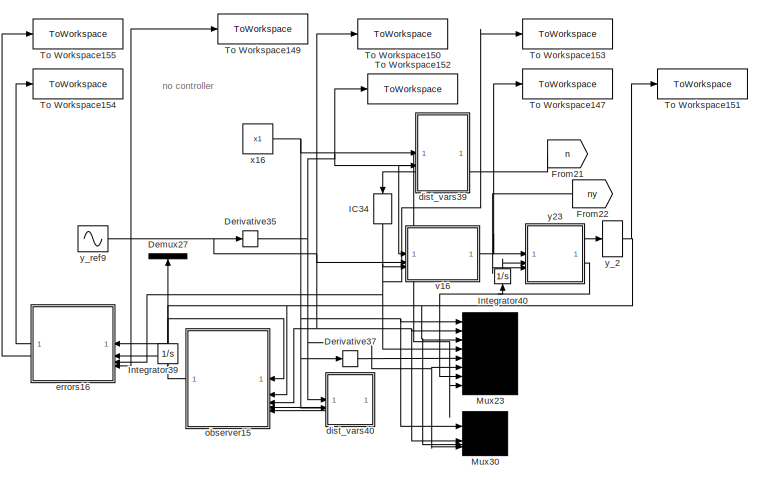
[diagram: root canvas - part 1/13, top center region]
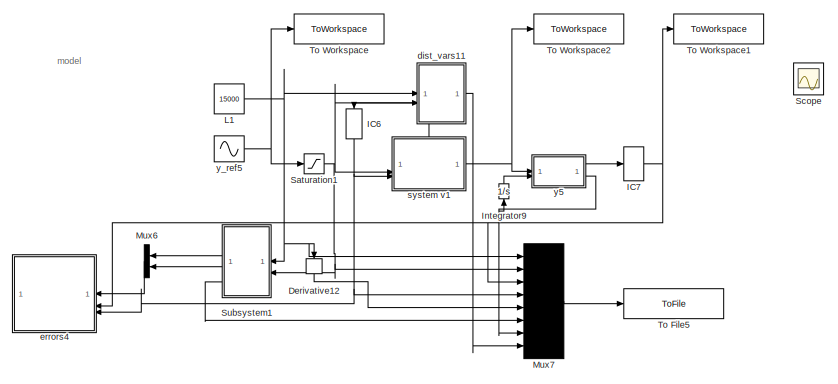
[diagram: root canvas - part 2/13, top left region]
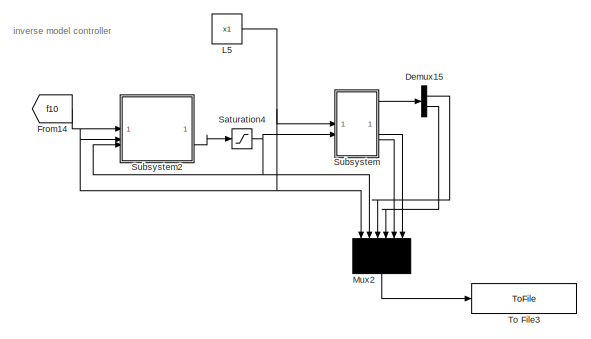
[diagram: root canvas - part 3/13, top center region]
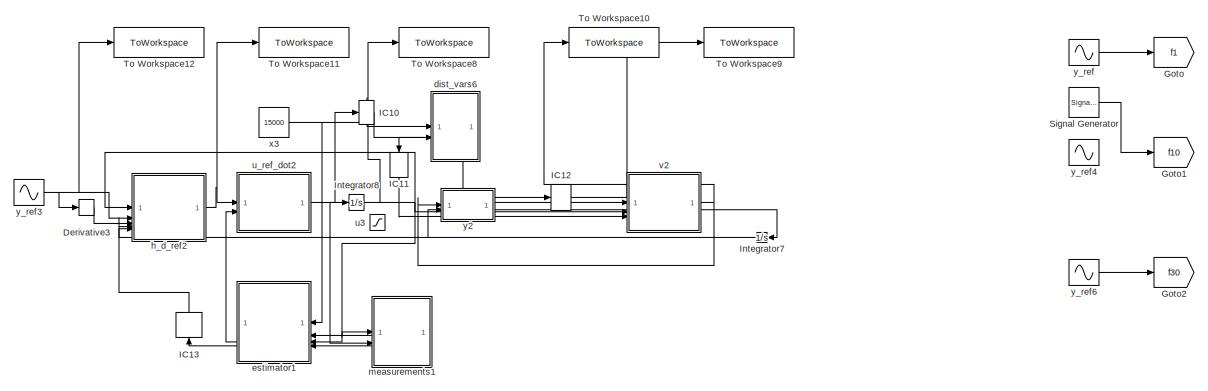
[diagram: root canvas - part 4/13, top left region]
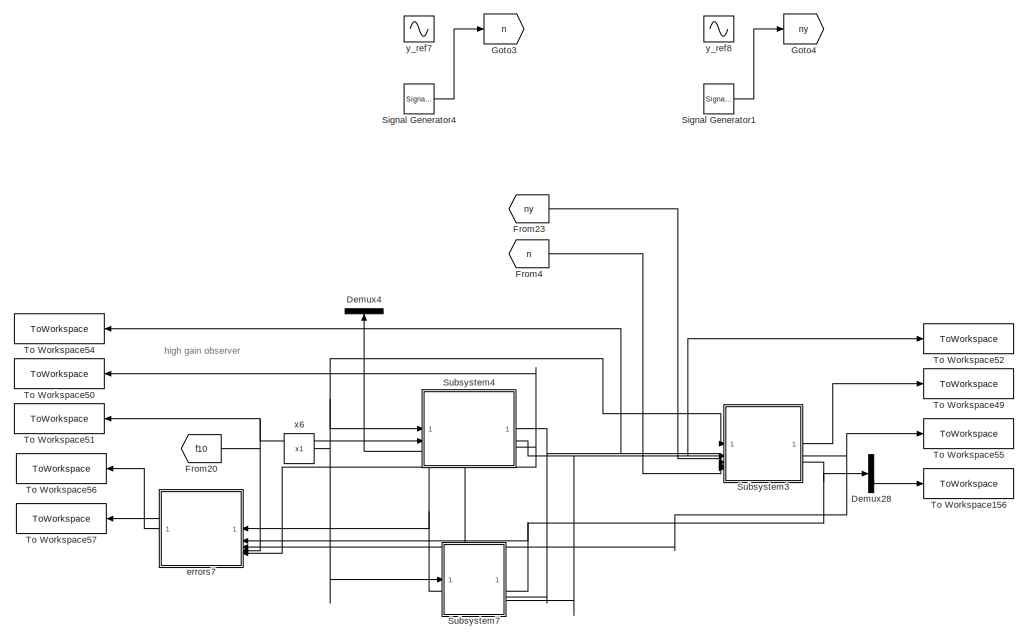
[diagram: root canvas - part 5/13, central region]
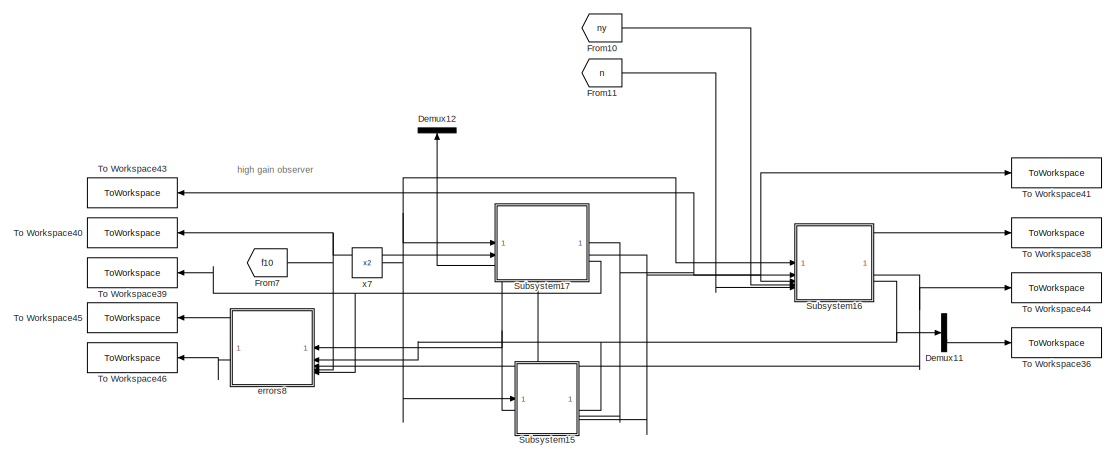
[diagram: root canvas - part 6/13, middle right region]
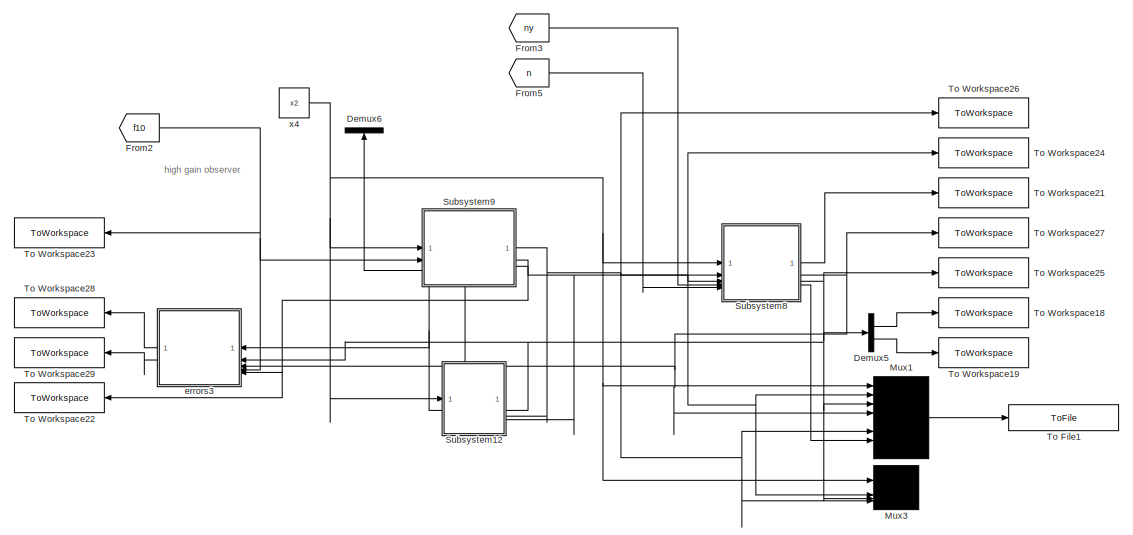
[diagram: root canvas - part 7/13, middle right region]
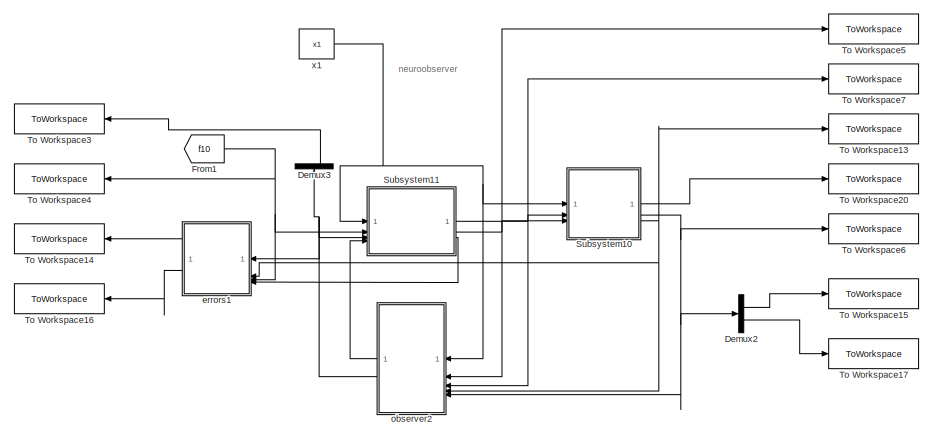
[diagram: root canvas - part 8/13, middle right region]
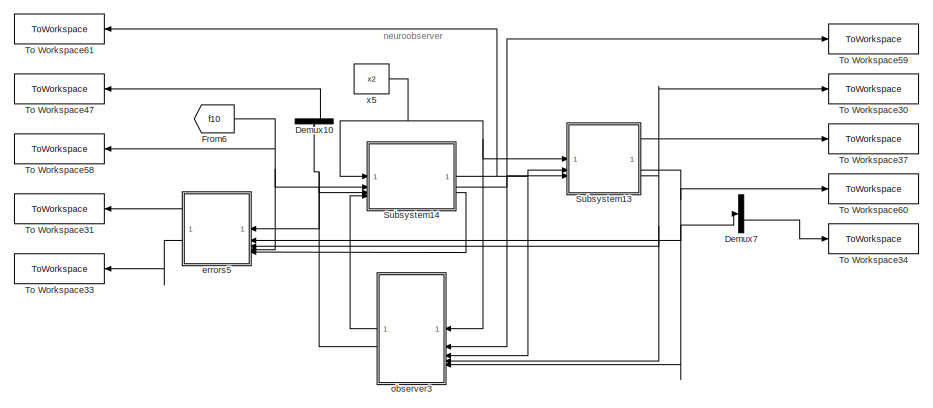
[diagram: root canvas - part 9/13, middle right region]
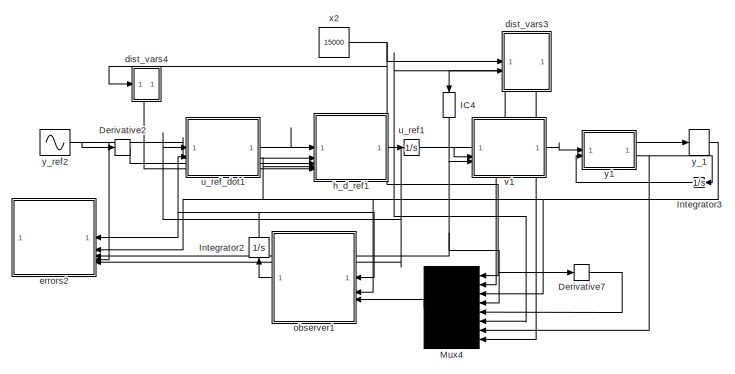
[diagram: root canvas - part 10/13, middle left region]
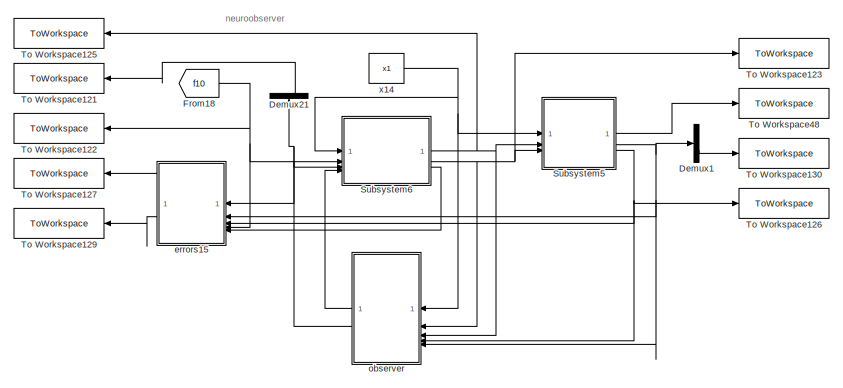
[diagram: root canvas - part 11/13, central region]
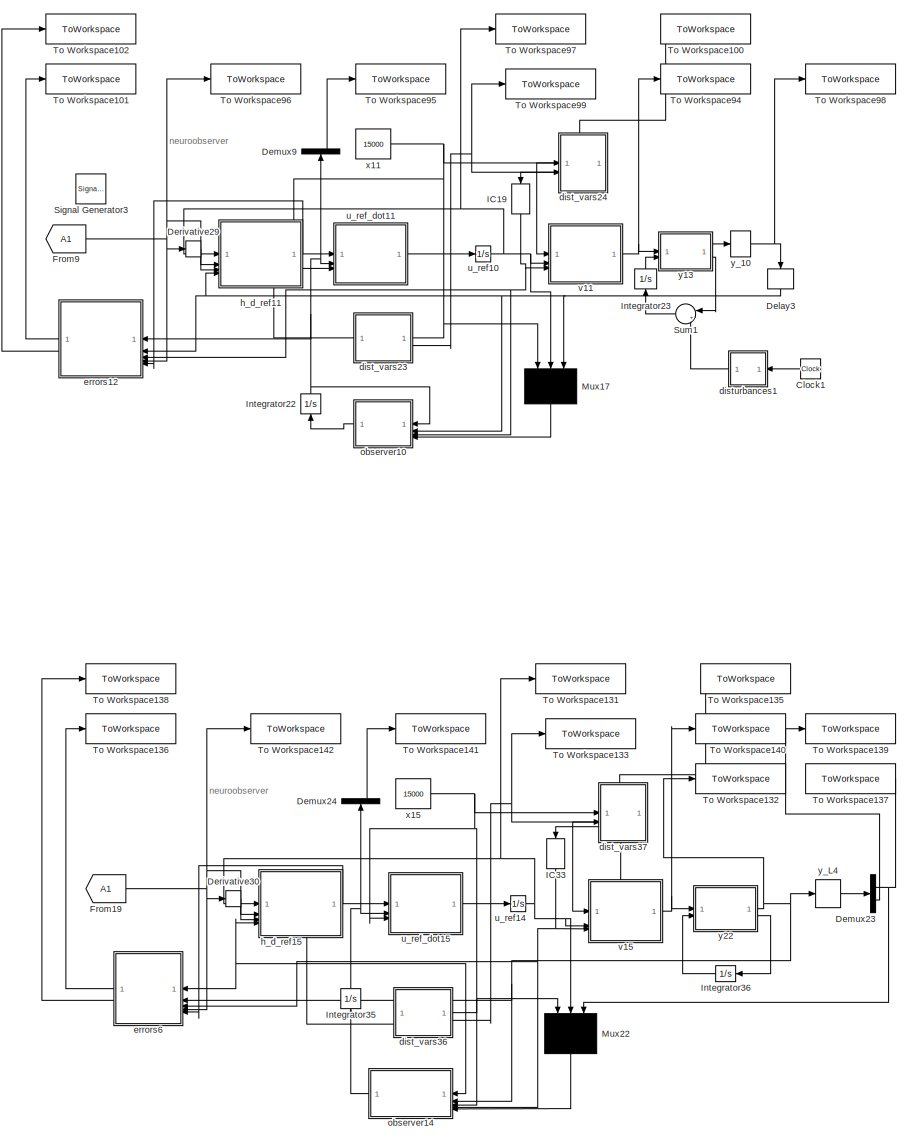
[diagram: root canvas - part 12/13, bottom right region]
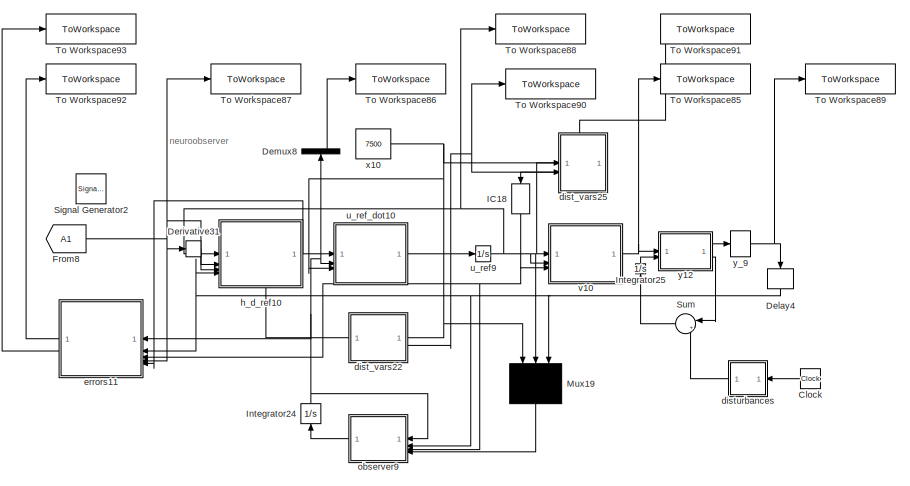
[diagram: root canvas - part 13/13, bottom center region]
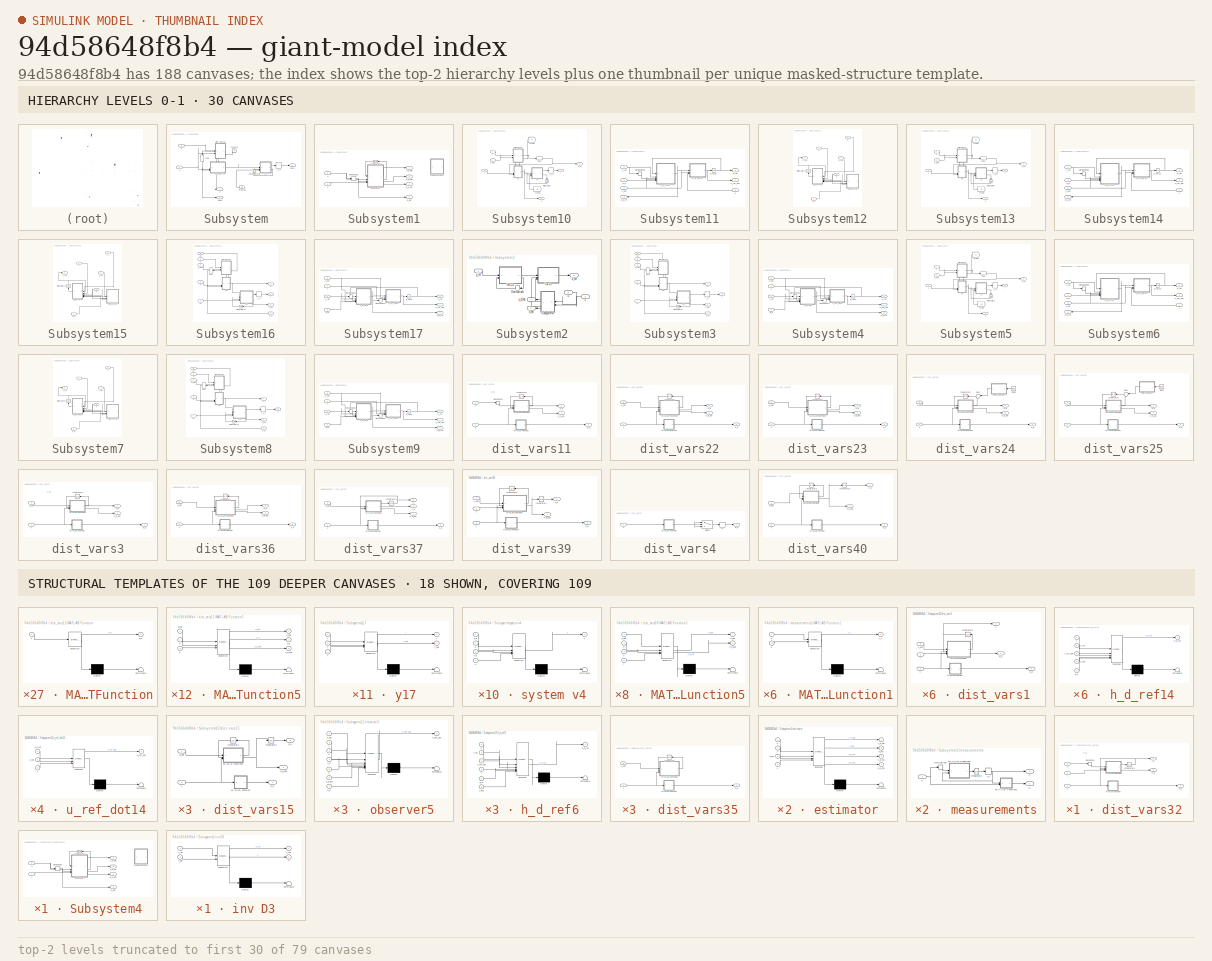
[diagram: thumbnail index - top-2 hierarchy levels (79 canvases (first 30 of 79 shown)) + 18 structural-template representatives of the remaining 109 canvases]
MODEL slx_94d58648f8b4
KIND model
CONFIG AbsTol = auto
CONFIG EnableMultiTasking = off
CONFIG FixedStep = 0.0001
CONFIG MaxStep = auto
CONFIG MinStep = auto
CONFIG RelTol = 1e-3
CONFIG SampleTimeConstraint = Unconstrained
CONFIG SolverName = ode8
CONFIG StartTime = 0.0
CONFIG StopTime = 0.25
BLOCK [Clock] Clock
  Commented = on
  NameLocation = top
BLOCK [Clock] Clock1
  Commented = on
  NameLocation = top
BLOCK [Delay] Delay3
  Commented = on
  DelayLength = 1
  InitialCondition = 0
  InputPortMap = u0
  NameLocation = left
BLOCK [Delay] Delay4
  Commented = on
  DelayLength = 1
  InitialCondition = 0
  InputPortMap = u0
  NameLocation = left
BLOCK [Demux] Demux1
  Outputs = 2
BLOCK [Demux] Demux10
  NameLocation = right
  Outputs = 2
BLOCK [Demux] Demux11
  Outputs = 2
BLOCK [Demux] Demux12
  NameLocation = right
  Outputs = 2
BLOCK [Demux] Demux15
  Outputs = 2
BLOCK [Demux] Demux2
  Commented = on
  Outputs = 2
BLOCK [Demux] Demux21
  NameLocation = right
  Outputs = 2
BLOCK [Demux] Demux23
  Commented = on
  Outputs = 2
BLOCK [Demux] Demux24
  Commented = on
  NameLocation = right
  Outputs = 2
BLOCK [Demux] Demux27
  Commented = on
  NameLocation = right
  Outputs = 2
BLOCK [Demux] Demux28
  Outputs = 2
BLOCK [Demux] Demux3
  Commented = on
  NameLocation = right
  Outputs = 2
BLOCK [Demux] Demux4
  NameLocation = right
  Outputs = 2
BLOCK [Demux] Demux5
  Commented = on
  Outputs = 2
BLOCK [Demux] Demux6
  Commented = on
  NameLocation = right
  Outputs = 2
BLOCK [Demux] Demux7
  Outputs = 2
BLOCK [Demux] Demux8
  Commented = on
  NameLocation = right
  Outputs = 2
BLOCK [Demux] Demux9
  Commented = on
  NameLocation = right
  Outputs = 2
BLOCK [Derivative] Derivative12
  Commented = on
  NameLocation = left
BLOCK [Derivative] Derivative2
  Commented = on
BLOCK [Derivative] Derivative29
  Commented = on
BLOCK [Derivative] Derivative3
  Commented = on
BLOCK [Derivative] Derivative30
  Commented = on
BLOCK [Derivative] Derivative31
  Commented = on
BLOCK [Derivative] Derivative35
  Commented = on
BLOCK [Derivative] Derivative37
  Commented = on
BLOCK [Derivative] Derivative7
  Commented = on
BLOCK [From] From1
  Commented = on
  GotoTag = f10
BLOCK [From] From10
  GotoTag = ny
BLOCK [From] From11
  GotoTag = n
BLOCK [From] From14
  GotoTag = f10
BLOCK [From] From18
  GotoTag = f10
BLOCK [From] From19
  Commented = on
  GotoTag = A1
BLOCK [From] From2
  Commented = on
  GotoTag = f10
BLOCK [From] From20
  GotoTag = f10
BLOCK [From] From21
  Commented = on
  GotoTag = n
  NameLocation = top
BLOCK [From] From22
  Commented = on
  GotoTag = ny
  NameLocation = top
BLOCK [From] From23
  GotoTag = ny
BLOCK [From] From3
  Commented = on
  GotoTag = ny
BLOCK [From] From4
  GotoTag = n
BLOCK [From] From5
  Commented = on
  GotoTag = n
BLOCK [From] From6
  GotoTag = f10
BLOCK [From] From7
  GotoTag = f10
BLOCK [From] From8
  Commented = on
  GotoTag = A1
BLOCK [From] From9
  Commented = on
  GotoTag = A1
BLOCK [Goto] Goto
  GotoTag = f1
BLOCK [Goto] Goto1
  GotoTag = f10
BLOCK [Goto] Goto2
  GotoTag = f30
BLOCK [Goto] Goto3
  GotoTag = n
BLOCK [Goto] Goto4
  GotoTag = ny
BLOCK [InitialCondition] IC10
  Commented = on
  Value = 0
BLOCK [InitialCondition] IC11
  Commented = on
  NameLocation = left
  Value = h
BLOCK [InitialCondition] IC12
  Commented = on
  Value = Y
BLOCK [InitialCondition] IC13
  Commented = on
  NameLocation = right
  Value = d_p
BLOCK [InitialCondition] IC18
  Commented = on
  NameLocation = left
  Value = h_i
BLOCK [InitialCondition] IC19
  Commented = on
  NameLocation = left
  Value = h_i
BLOCK [InitialCondition] IC33
  Commented = on
  NameLocation = left
  Value = h_i
BLOCK [InitialCondition] IC34
  Commented = on
  NameLocation = left
  Value = h_i
BLOCK [InitialCondition] IC4
  Commented = on
  NameLocation = left
  Value = h
BLOCK [InitialCondition] IC6
  Commented = on
  NameLocation = left
  Value = h_i
BLOCK [InitialCondition] IC7
  Commented = on
  Value = y_i
BLOCK [Integrator] Integrator2
  Commented = on
  InitialCondition = [0;0]
  NameLocation = right
BLOCK [Integrator] Integrator22
  Commented = on
  InitialCondition = [0;0]
  NameLocation = right
BLOCK [Integrator] Integrator23
  Commented = on
  NameLocation = right
BLOCK [Integrator] Integrator24
  Commented = on
  InitialCondition = [0;0]
  NameLocation = right
BLOCK [Integrator] Integrator25
  Commented = on
  NameLocation = right
BLOCK [Integrator] Integrator3
  Commented = on
  NameLocation = top
BLOCK [Integrator] Integrator35
  Commented = on
  InitialCondition = [0;0]
  NameLocation = right
BLOCK [Integrator] Integrator36
  Commented = on
  NameLocation = top
BLOCK [Integrator] Integrator39
  Commented = on
  InitialCondition = [0;0]
  NameLocation = right
BLOCK [Integrator] Integrator40
  Commented = on
  NameLocation = right
BLOCK [Integrator] Integrator7
  Commented = on
  NameLocation = top
BLOCK [Integrator] Integrator8
  Commented = on
BLOCK [Integrator] Integrator9
  Commented = on
  NameLocation = right
BLOCK [Constant] L1
  Commented = on
  Value = 15000
BLOCK [Constant] L5
  Value = x1
BLOCK [Mux] Mux1
  Commented = on
  DisplayOption = signals
  Inputs = 8
BLOCK [Mux] Mux17
  Commented = on
  DisplayOption = signals
  Inputs = 3
  NameLocation = left
BLOCK [Mux] Mux19
  Commented = on
  DisplayOption = signals
  Inputs = 3
  NameLocation = left
BLOCK [Mux] Mux2
  Inputs = 6
  NameLocation = left
BLOCK [Mux] Mux22
  Commented = on
  DisplayOption = signals
  Inputs = 3
  NameLocation = left
BLOCK [Mux] Mux23
  Commented = on
  DisplayOption = signals
  Inputs = 8
BLOCK [Mux] Mux3
  Commented = on
  DisplayOption = signals
BLOCK [Mux] Mux30
  Commented = on
  DisplayOption = signals
BLOCK [Mux] Mux4
  Commented = on
  DisplayOption = signals
  Inputs = 8
  NameLocation = top
BLOCK [Mux] Mux6
  Commented = on
  DisplayOption = bar
  Inputs = 2
  NameLocation = top
BLOCK [Mux] Mux7
  Commented = on
  DisplayOption = signals
  Inputs = 8
BLOCK [Saturate] Saturation1
  Commented = on
  LowerLimit = -2000
  UpperLimit = 2000
BLOCK [Saturate] Saturation4
  LowerLimit = -20000
  UpperLimit = 20000
BLOCK [Scope] Scope
  Floating = off
  IOType = viewer
  NumInputPorts = 1
  ScopeSpecificationString = Simulink.scopes.TimeScopeBlockCfg('CurrentConfiguration', extmgr.ConfigurationSet(extmgr.Configuration('Core','General UI',true),extmgr.Configuration('Core','Source UI',true),extmgr.Configuration('Sources','WiredSimulink',true),extmgr.Configuration('Visuals','Time Domain',true,'SerializedDisplays',{struct('MinYLimReal','-2.13292','MaxYLimReal','1.57032','YLabelReal','','MinYLimMag','0.00000','MaxY...<+1320ch>
BLOCK [SignalGenerator] Signal Generator
  Amplitude = amp
  Frequency = angvel*10
  Units = rad/sec
  WaveForm = sawtooth
BLOCK [SignalGenerator] Signal Generator1
  Amplitude = 1*(1e-6)
  Frequency = angvel*35
  Units = rad/sec
BLOCK [SignalGenerator] Signal Generator2
  Amplitude = amp
  Commented = on
  Frequency = angvel
  Units = rad/sec
BLOCK [SignalGenerator] Signal Generator3
  Amplitude = amp
  Commented = on
  Frequency = angvel
  Units = rad/sec
BLOCK [SignalGenerator] Signal Generator4
  Amplitude = 1*(1e-6)
  Frequency = angvel*20
  Units = rad/sec
  WaveForm = random
BLOCK [SubSystem] Subsystem
BLOCK [From] Subsystem/From24
  GotoTag = n
  NameLocation = top
BLOCK [From] Subsystem/From25
  GotoTag = ny
  NameLocation = top
BLOCK [InitialCondition] Subsystem/IC25
  NameLocation = left
  Value = h_i
BLOCK [Integrator] Subsystem/Integrator31
  NameLocation = right
BLOCK [Outport] Subsystem/Out1
BLOCK [Outport] Subsystem/Out3
  Port = 2
BLOCK [SubSystem] Subsystem/dist_vars32
  PortSchema = {"entries":[{"content":{"sides":[{"content":{"connectorIds":["In1","In2","Out1","Out2","Out3"]},"type":"ConnectorPlacement.EquallySpacedRectSide","uuid":"c6804a03-85ed-4e19-a8b2-23b3b91cc999"},{"content":{"connectorIds":["In3"],"side":"RIGHT"},"type":"ConnectorPlacement.EquallySpacedRectSide","uuid":"3893e005-dabd-44b9-aa2f-690b9b6a2b6d"},{"content":{"connectorIds":[],"side":"TOP"},"type":"Connect...<+266ch>  <repeated x3 — deduplicated; at blocks: dist_vars32, dist_vars14>
BLOCK [Derivative] Subsystem/dist_vars32/Derivative1
BLOCK [Integrator] Subsystem/dist_vars32/Integrator1
BLOCK [SubSystem] Subsystem/dist_vars32/MATLAB Function
  ErrorFcn = Stateflow.Translate.translate
  PermitHierarchicalResolution = ExplicitOnly
  SFBlockType = MATLAB Function
  TreatAsAtomicUnit = on
BLOCK [Demux] Subsystem/dist_vars32/MATLAB Function/ Demux 
  Outputs = 1
BLOCK [S-Function] Subsystem/dist_vars32/MATLAB Function/ SFunction 
  EnableBusSupport = on
  FunctionName = sf_sfun
  Parameters = L,d_p
  PortCounts = [1 2]
  SFcnIsStateOwnerBlock = off
  SFunctionDeploymentMode = off
  Tag = Stateflow S-Function 172
BLOCK [Terminator] Subsystem/dist_vars32/MATLAB Function/ Terminator 
BLOCK [Outport] Subsystem/dist_vars32/MATLAB Function/d_d
BLOCK [Inport] Subsystem/dist_vars32/MATLAB Function/x
BLOCK [SubSystem] Subsystem/dist_vars32/MATLAB Function5
  ErrorFcn = Stateflow.Translate.translate
  PermitHierarchicalResolution = ExplicitOnly
  SFBlockType = MATLAB Function
  TreatAsAtomicUnit = on
BLOCK [Demux] Subsystem/dist_vars32/MATLAB Function5/ Demux 
  Outputs = 1
BLOCK [S-Function] Subsystem/dist_vars32/MATLAB Function5/ SFunction 
  EnableBusSupport = on
  FunctionName = sf_sfun
  Parameters = L,alpha,beta,gamma
  PortCounts = [4 3]
  SFcnIsStateOwnerBlock = off
  SFunctionDeploymentMode = off
  Tag = Stateflow S-Function 173
BLOCK [Terminator] Subsystem/dist_vars32/MATLAB Function5/ Terminator 
BLOCK [Inport] Subsystem/dist_vars32/MATLAB Function5/h
  Port = 2
BLOCK [Outport] Subsystem/dist_vars32/MATLAB Function5/h_d
  Port = 2
BLOCK [Outport] Subsystem/dist_vars32/MATLAB Function5/h_dot
BLOCK [Inport] Subsystem/dist_vars32/MATLAB Function5/t
  Port = 4
BLOCK [Inport] Subsystem/dist_vars32/MATLAB Function5/u_dot
BLOCK [Inport] Subsystem/dist_vars32/MATLAB Function5/x
  Port = 3
BLOCK [Outport] Subsystem/dist_vars32/d_d
  Port = 3
BLOCK [Outport] Subsystem/dist_vars32/h
  Port = 2
BLOCK [Outport] Subsystem/dist_vars32/h_d
BLOCK [Inport] Subsystem/dist_vars32/t
  NameLocation = top
  Port = 3
BLOCK [Inport] Subsystem/dist_vars32/u
  NameLocation = top
  Port = 2
BLOCK [Inport] Subsystem/dist_vars32/x
  NameLocation = top
BLOCK [Outport] Subsystem/h
  Port = 3
BLOCK [SubSystem] Subsystem/system v4
  ErrorFcn = Stateflow.Translate.translate
  PermitHierarchicalResolution = ExplicitOnly
  SFBlockType = MATLAB Function
  TreatAsAtomicUnit = on
BLOCK [Demux] Subsystem/system v4/ Demux 
  Outputs = 1
BLOCK [S-Function] Subsystem/system v4/ SFunction 
  EnableBusSupport = on
  FunctionName = sf_sfun
  Parameters = d_p
  PortCounts = [4 2]
  SFcnIsStateOwnerBlock = off
  SFunctionDeploymentMode = off
  Tag = Stateflow S-Function 181
BLOCK [Terminator] Subsystem/system v4/ Terminator 
BLOCK [Inport] Subsystem/system v4/d_d
BLOCK [Inport] Subsystem/system v4/h
  Port = 4
BLOCK [Inport] Subsystem/system v4/h_d
  Port = 3
BLOCK [Inport] Subsystem/system v4/u
  Port = 2
BLOCK [Outport] Subsystem/system v4/v
BLOCK [Inport] Subsystem/u
  Port = 2
BLOCK [Inport] Subsystem/x
BLOCK [SubSystem] Subsystem/y17
  ErrorFcn = Stateflow.Translate.translate
  PermitHierarchicalResolution = ExplicitOnly
  SFBlockType = MATLAB Function
  TreatAsAtomicUnit = on
BLOCK [Demux] Subsystem/y17/ Demux 
  Outputs = 1
BLOCK [S-Function] Subsystem/y17/ SFunction 
  EnableBusSupport = on
  FunctionName = sf_sfun
  Parameters = A,B,C
  PortCounts = [3 3]
  SFcnIsStateOwnerBlock = off
  SFunctionDeploymentMode = off
  Tag = Stateflow S-Function 182
BLOCK [Terminator] Subsystem/y17/ Terminator 
BLOCK [Inport] Subsystem/y17/Y
  Port = 2
BLOCK [Outport] Subsystem/y17/Y_dot
  Port = 2
BLOCK [Inport] Subsystem/y17/t
  Port = 3
BLOCK [Inport] Subsystem/y17/v
BLOCK [Outport] Subsystem/y17/y
BLOCK [InitialCondition] Subsystem/y_L1
  Value = [y_i;0]
BLOCK [SubSystem] Subsystem1
  Commented = on
  NameLocation = top
BLOCK [Derivative] Subsystem1/Derivative1
BLOCK [Integrator] Subsystem1/Integrator2
  NameLocation = top
BLOCK [Outport] Subsystem1/d_d_hat
BLOCK [SubSystem] Subsystem1/estimator
  ErrorFcn = Stateflow.Translate.translate
  PermitHierarchicalResolution = ExplicitOnly
  SFBlockType = MATLAB Function
  TreatAsAtomicUnit = on
BLOCK [Demux] Subsystem1/estimator/ Demux 
  Outputs = 1
BLOCK [S-Function] Subsystem1/estimator/ SFunction 
  EnableBusSupport = on
  FunctionName = sf_sfun
  Parameters = L,alpha,beta,d_p,gamma
  PortCounts = [4 5]
  SFcnIsStateOwnerBlock = off
  SFunctionDeploymentMode = off
  Tag = Stateflow S-Function 49
BLOCK [Terminator] Subsystem1/estimator/ Terminator 
BLOCK [Outport] Subsystem1/estimator/d_d_hat
  Port = 4
BLOCK [Inport] Subsystem1/estimator/h
BLOCK [Outport] Subsystem1/estimator/h_d_hat
  Port = 3
BLOCK [Outport] Subsystem1/estimator/h_dot
  Port = 2
BLOCK [Inport] Subsystem1/estimator/u
  Port = 2
BLOCK [Inport] Subsystem1/estimator/u_dot
  Port = 3
BLOCK [Inport] Subsystem1/estimator/x
  Port = 4
BLOCK [Outport] Subsystem1/estimator/y_d_hat
BLOCK [Outport] Subsystem1/h_d_hat
  Port = 3
BLOCK [SubSystem] Subsystem1/measurements
  NameLocation = top
  PortSchema = {"entries":[{"content":{"sides":[{"content":{"connectorIds":[]},"type":"ConnectorPlacement.EquallySpacedRectSide","uuid":"c6804a03-85ed-4e19-a8b2-23b3b91cc999"},{"content":{"connectorIds":["Out1","In1","Out2"],"side":"RIGHT"},"type":"ConnectorPlacement.EquallySpacedRectSide","uuid":"3893e005-dabd-44b9-aa2f-690b9b6a2b6d"},{"content":{"connectorIds":[],"side":"TOP"},"type":"ConnectorPlacement.Equall...<+248ch>
BLOCK [Derivative] Subsystem1/measurements/Derivative2
BLOCK [InitialCondition] Subsystem1/measurements/IC
  Value = 0
BLOCK [Integrator] Subsystem1/measurements/Integrator1
BLOCK [SubSystem] Subsystem1/measurements/MATLAB Function1
  ErrorFcn = Stateflow.Translate.translate
  PermitHierarchicalResolution = ExplicitOnly
  SFBlockType = MATLAB Function
  TreatAsAtomicUnit = on
BLOCK [Demux] Subsystem1/measurements/MATLAB Function1/ Demux 
  Outputs = 1
BLOCK [S-Function] Subsystem1/measurements/MATLAB Function1/ SFunction 
  EnableBusSupport = on
  FunctionName = sf_sfun
  Parameters = d_p
  PortCounts = [2 2]
  SFcnIsStateOwnerBlock = off
  SFunctionDeploymentMode = off
  Tag = Stateflow S-Function 54
BLOCK [Terminator] Subsystem1/measurements/MATLAB Function1/ Terminator 
BLOCK [Inport] Subsystem1/measurements/MATLAB Function1/h
BLOCK [Inport] Subsystem1/measurements/MATLAB Function1/u
  Port = 2
BLOCK [Outport] Subsystem1/measurements/MATLAB Function1/y_L
BLOCK [SubSystem] Subsystem1/measurements/MATLAB Function5
  ErrorFcn = Stateflow.Translate.translate
  PermitHierarchicalResolution = ExplicitOnly
  SFBlockType = MATLAB Function
  TreatAsAtomicUnit = on
BLOCK [Demux] Subsystem1/measurements/MATLAB Function5/ Demux 
  Outputs = 1
BLOCK [S-Function] Subsystem1/measurements/MATLAB Function5/ SFunction 
  EnableBusSupport = on
  FunctionName = sf_sfun
  Parameters = alpha,beta,gamma
  PortCounts = [2 2]
  SFcnIsStateOwnerBlock = off
  SFunctionDeploymentMode = off
  Tag = Stateflow S-Function 55
BLOCK [Terminator] Subsystem1/measurements/MATLAB Function5/ Terminator 
BLOCK [Inport] Subsystem1/measurements/MATLAB Function5/h
  Port = 2
BLOCK [Outport] Subsystem1/measurements/MATLAB Function5/h_dot
BLOCK [Inport] Subsystem1/measurements/MATLAB Function5/u_dot
BLOCK [Outport] Subsystem1/measurements/h
  Port = 2
BLOCK [Inport] Subsystem1/measurements/u
  NameLocation = top
BLOCK [Outport] Subsystem1/measurements/y_L
BLOCK [Inport] Subsystem1/u
  NameLocation = top
  Port = 2
BLOCK [Outport] Subsystem1/u_dot
  NameLocation = top
  Port = 4
BLOCK [Inport] Subsystem1/x
BLOCK [Outport] Subsystem1/y_d_hat
  NameLocation = top
  Port = 2
BLOCK [SubSystem] Subsystem10
  Commented = on
BLOCK [From] Subsystem10/From1
  GotoTag = ny
  NameLocation = top
BLOCK [From] Subsystem10/From2
  GotoTag = n
  NameLocation = top
BLOCK [InitialCondition] Subsystem10/IC32
  Value = h_i
BLOCK [Integrator] Subsystem10/Integrator1
  NameLocation = left
BLOCK [SubSystem] Subsystem10/dist_vars1
  PortSchema = {"entries":[{"content":{"sides":[{"content":{"connectorIds":["In1","In2","Out2","Out3"]},"type":"ConnectorPlacement.EquallySpacedRectSide","uuid":"c6804a03-85ed-4e19-a8b2-23b3b91cc999"},{"content":{"connectorIds":["In3","Out1"],"side":"RIGHT"},"type":"ConnectorPlacement.EquallySpacedRectSide","uuid":"3893e005-dabd-44b9-aa2f-690b9b6a2b6d"},{"content":{"connectorIds":[],"side":"TOP"},"type":"Connect...<+266ch>  <repeated x3 — deduplicated; at blocks: dist_vars1>
BLOCK [Integrator] Subsystem10/dist_vars1/Integrator2
  NameLocation = top
BLOCK [SubSystem] Subsystem10/dist_vars1/MATLAB Function
  ErrorFcn = Stateflow.Translate.translate
  PermitHierarchicalResolution = ExplicitOnly
  SFBlockType = MATLAB Function
  TreatAsAtomicUnit = on
BLOCK [Demux] Subsystem10/dist_vars1/MATLAB Function/ Demux 
  Outputs = 1
BLOCK [S-Function] Subsystem10/dist_vars1/MATLAB Function/ SFunction 
  EnableBusSupport = on
  FunctionName = sf_sfun
  Parameters = L,d_p
  PortCounts = [1 2]
  SFcnIsStateOwnerBlock = off
  SFunctionDeploymentMode = off
  Tag = Stateflow S-Function 5
BLOCK [Terminator] Subsystem10/dist_vars1/MATLAB Function/ Terminator 
BLOCK [Outport] Subsystem10/dist_vars1/MATLAB Function/d_d
BLOCK [Inport] Subsystem10/dist_vars1/MATLAB Function/x
BLOCK [SubSystem] Subsystem10/dist_vars1/MATLAB Function5
  ErrorFcn = Stateflow.Translate.translate
  PermitHierarchicalResolution = ExplicitOnly
  SFBlockType = MATLAB Function
  TreatAsAtomicUnit = on
BLOCK [Demux] Subsystem10/dist_vars1/MATLAB Function5/ Demux 
  Outputs = 1
BLOCK [S-Function] Subsystem10/dist_vars1/MATLAB Function5/ SFunction 
  EnableBusSupport = on
  FunctionName = sf_sfun
  Parameters = L,alpha,beta,gamma
  PortCounts = [4 3]
  SFcnIsStateOwnerBlock = off
  SFunctionDeploymentMode = off
  Tag = Stateflow S-Function 6
BLOCK [Terminator] Subsystem10/dist_vars1/MATLAB Function5/ Terminator 
BLOCK [Inport] Subsystem10/dist_vars1/MATLAB Function5/h
  Port = 2
BLOCK [Outport] Subsystem10/dist_vars1/MATLAB Function5/h_d
  Port = 2
BLOCK [Outport] Subsystem10/dist_vars1/MATLAB Function5/h_dot
BLOCK [Inport] Subsystem10/dist_vars1/MATLAB Function5/t
  Port = 4
BLOCK [Inport] Subsystem10/dist_vars1/MATLAB Function5/u_dot
BLOCK [Inport] Subsystem10/dist_vars1/MATLAB Function5/x
  Port = 3
BLOCK [Outport] Subsystem10/dist_vars1/d_d
  Port = 3
BLOCK [Outport] Subsystem10/dist_vars1/h
  Port = 2
BLOCK [Outport] Subsystem10/dist_vars1/h_d
BLOCK [Inport] Subsystem10/dist_vars1/t
  NameLocation = top
  Port = 3
BLOCK [Inport] Subsystem10/dist_vars1/u_dot
  NameLocation = top
  Port = 2
BLOCK [Inport] Subsystem10/dist_vars1/x
  NameLocation = top
BLOCK [Outport] Subsystem10/h_d
  NameLocation = top
  Port = 3
BLOCK [Inport] Subsystem10/u
  Port = 3
BLOCK [Inport] Subsystem10/u_dot
  Port = 2
BLOCK [Outport] Subsystem10/v
BLOCK [SubSystem] Subsystem10/v3
  ErrorFcn = Stateflow.Translate.translate
  PermitHierarchicalResolution = ExplicitOnly
  SFBlockType = MATLAB Function
  TreatAsAtomicUnit = on
BLOCK [Demux] Subsystem10/v3/ Demux 
  Outputs = 1
BLOCK [S-Function] Subsystem10/v3/ SFunction 
  EnableBusSupport = on
  FunctionName = sf_sfun
  Parameters = d_p
  PortCounts = [4 2]
  SFcnIsStateOwnerBlock = off
  SFunctionDeploymentMode = off
  Tag = Stateflow S-Function 7
BLOCK [Terminator] Subsystem10/v3/ Terminator 
BLOCK [Inport] Subsystem10/v3/d_d
BLOCK [Inport] Subsystem10/v3/h
  Port = 4
BLOCK [Inport] Subsystem10/v3/h_d
  Port = 3
BLOCK [Inport] Subsystem10/v3/u
  Port = 2
BLOCK [Outport] Subsystem10/v3/v
BLOCK [Inport] Subsystem10/x
BLOCK [Outport] Subsystem10/y
  Port = 2
BLOCK [SubSystem] Subsystem10/y3
  ErrorFcn = Stateflow.Translate.translate
  PermitHierarchicalResolution = ExplicitOnly
  SFBlockType = MATLAB Function
  TreatAsAtomicUnit = on
BLOCK [Demux] Subsystem10/y3/ Demux 
  Outputs = 1
BLOCK [S-Function] Subsystem10/y3/ SFunction 
  EnableBusSupport = on
  FunctionName = sf_sfun
  Parameters = A,B,C
  PortCounts = [3 3]
  SFcnIsStateOwnerBlock = off
  SFunctionDeploymentMode = off
  Tag = Stateflow S-Function 8
BLOCK [Terminator] Subsystem10/y3/ Terminator 
BLOCK [Inport] Subsystem10/y3/Y
  Port = 2
BLOCK [Outport] Subsystem10/y3/Y_dot
  Port = 2
BLOCK [Inport] Subsystem10/y3/t
  Port = 3
BLOCK [Inport] Subsystem10/y3/v
BLOCK [Outport] Subsystem10/y3/y
BLOCK [InitialCondition] Subsystem10/y_L2
  Value = [y_i;0]
BLOCK [SubSystem] Subsystem11
  Commented = on
BLOCK [Derivative] Subsystem11/Derivative32
BLOCK [Inport] Subsystem11/d_d
  NameLocation = top
  Port = 4
BLOCK [Outport] Subsystem11/h_d_ref
  Port = 3
BLOCK [SubSystem] Subsystem11/h_d_ref14
  ErrorFcn = Stateflow.Translate.translate
  PermitHierarchicalResolution = ExplicitOnly
  SFBlockType = MATLAB Function
  TreatAsAtomicUnit = on
BLOCK [Demux] Subsystem11/h_d_ref14/ Demux 
  Outputs = 1
BLOCK [S-Function] Subsystem11/h_d_ref14/ SFunction 
  EnableBusSupport = on
  FunctionName = sf_sfun
  Parameters = A,B,kappa1
  PortCounts = [5 2]
  SFcnIsStateOwnerBlock = off
  SFunctionDeploymentMode = off
  Tag = Stateflow S-Function 11
BLOCK [Terminator] Subsystem11/h_d_ref14/ Terminator 
BLOCK [Inport] Subsystem11/h_d_ref14/d_d
  Port = 5
BLOCK [Outport] Subsystem11/h_d_ref14/h_d_ref
BLOCK [Inport] Subsystem11/h_d_ref14/u
BLOCK [Inport] Subsystem11/h_d_ref14/y_ref
  Port = 2
BLOCK [Inport] Subsystem11/h_d_ref14/y_ref_dot
  Port = 3
BLOCK [Inport] Subsystem11/h_d_ref14/z_hat
  Port = 4
BLOCK [Outport] Subsystem11/u_ref
  Port = 2
BLOCK [Integrator] Subsystem11/u_ref13
BLOCK [Outport] Subsystem11/u_ref_dot
BLOCK [SubSystem] Subsystem11/u_ref_dot14
  ErrorFcn = Stateflow.Translate.translate
  PermitHierarchicalResolution = ExplicitOnly
  SFBlockType = MATLAB Function
  TreatAsAtomicUnit = on
BLOCK [Demux] Subsystem11/u_ref_dot14/ Demux 
  Outputs = 1
BLOCK [S-Function] Subsystem11/u_ref_dot14/ SFunction 
  EnableBusSupport = on
  FunctionName = sf_sfun
  Parameters = L,alpha,k1,k2
  PortCounts = [3 2]
  SFcnIsStateOwnerBlock = off
  SFunctionDeploymentMode = off
  Tag = Stateflow S-Function 12
BLOCK [Terminator] Subsystem11/u_ref_dot14/ Terminator 
BLOCK [Inport] Subsystem11/u_ref_dot14/h_d_ref
BLOCK [Outport] Subsystem11/u_ref_dot14/u_ref_dot
BLOCK [Inport] Subsystem11/u_ref_dot14/x
  Port = 3
BLOCK [Inport] Subsystem11/u_ref_dot14/z_hat
  Port = 2
BLOCK [Inport] Subsystem11/x
BLOCK [Inport] Subsystem11/y_ref
  Port = 2
BLOCK [Inport] Subsystem11/z_hat
  Port = 3
BLOCK [SubSystem] Subsystem12
  Commented = on
  PortSchema = {"entries":[{"content":{"sides":[{"content":{"connectorIds":["Out1","Out2","In1"]},"type":"ConnectorPlacement.EquallySpacedRectSide","uuid":"42746eba-8bba-4a31-9528-796c8edd7bb7"},{"content":{"connectorIds":["In2","In3","In4"],"side":"RIGHT"},"type":"ConnectorPlacement.EquallySpacedRectSide","uuid":"7439d13e-5e36-47fa-9d41-de49a9f2c0eb"},{"content":{"connectorIds":[],"side":"TOP"},"type":"Connecto...<+265ch>  <repeated x3 — deduplicated; at blocks: Subsystem12, Subsystem15, Subsystem7>
BLOCK [Integrator] Subsystem12/Integrator14
  InitialCondition = [0;0]
  NameLocation = right
BLOCK [Outport] Subsystem12/d_d
BLOCK [SubSystem] Subsystem12/dist_vars15
  PortSchema = {"entries":[{"content":{"sides":[{"content":{"connectorIds":["In1","In2","Out1","Out2","Out3"]},"type":"ConnectorPlacement.EquallySpacedRectSide","uuid":"c6804a03-85ed-4e19-a8b2-23b3b91cc999"},{"content":{"connectorIds":[],"side":"RIGHT"},"type":"ConnectorPlacement.EquallySpacedRectSide","uuid":"3893e005-dabd-44b9-aa2f-690b9b6a2b6d"},{"content":{"connectorIds":[],"side":"TOP"},"type":"ConnectorPla...<+261ch>  <repeated x7 — deduplicated; at blocks: dist_vars15, dist_vars24, dist_vars25, dist_vars3, dist_vars6>
BLOCK [Integrator] Subsystem12/dist_vars15/Integrator2
BLOCK [Integrator] Subsystem12/dist_vars15/Integrator3
  NameLocation = top
BLOCK [SubSystem] Subsystem12/dist_vars15/MATLAB Function
  ErrorFcn = Stateflow.Translate.translate
  PermitHierarchicalResolution = ExplicitOnly
  SFBlockType = MATLAB Function
  TreatAsAtomicUnit = on
BLOCK [Demux] Subsystem12/dist_vars15/MATLAB Function/ Demux 
  Outputs = 1
BLOCK [S-Function] Subsystem12/dist_vars15/MATLAB Function/ SFunction 
  EnableBusSupport = on
  FunctionName = sf_sfun
  Parameters = L,d_p
  PortCounts = [1 2]
  SFcnIsStateOwnerBlock = off
  SFunctionDeploymentMode = off
  Tag = Stateflow S-Function 13
BLOCK [Terminator] Subsystem12/dist_vars15/MATLAB Function/ Terminator 
BLOCK [Outport] Subsystem12/dist_vars15/MATLAB Function/d_d
BLOCK [Inport] Subsystem12/dist_vars15/MATLAB Function/x
BLOCK [SubSystem] Subsystem12/dist_vars15/MATLAB Function1
  ErrorFcn = Stateflow.Translate.translate
  PermitHierarchicalResolution = ExplicitOnly
  SFBlockType = MATLAB Function
  TreatAsAtomicUnit = on
BLOCK [Demux] Subsystem12/dist_vars15/MATLAB Function1/ Demux 
  Outputs = 1
BLOCK [S-Function] Subsystem12/dist_vars15/MATLAB Function1/ SFunction 
  EnableBusSupport = on
  FunctionName = sf_sfun
  Parameters = L,alpha,beta,gamma
  PortCounts = [3 3]
  SFcnIsStateOwnerBlock = off
  SFunctionDeploymentMode = off
  Tag = Stateflow S-Function 14
BLOCK [Terminator] Subsystem12/dist_vars15/MATLAB Function1/ Terminator 
BLOCK [Inport] Subsystem12/dist_vars15/MATLAB Function1/h
  Port = 2
BLOCK [Outport] Subsystem12/dist_vars15/MATLAB Function1/h_d_dot
  Port = 2
BLOCK [Outport] Subsystem12/dist_vars15/MATLAB Function1/h_dot
BLOCK [Inport] Subsystem12/dist_vars15/MATLAB Function1/u_dot
BLOCK [Inport] Subsystem12/dist_vars15/MATLAB Function1/x
  Port = 3
BLOCK [Outport] Subsystem12/dist_vars15/d_d
  Port = 2
BLOCK [Outport] Subsystem12/dist_vars15/h_d
  Port = 3
BLOCK [Outport] Subsystem12/dist_vars15/h_d_dot
BLOCK [Inport] Subsystem12/dist_vars15/u_dot
  NameLocation = top
BLOCK [Inport] Subsystem12/dist_vars15/x
  NameLocation = top
  Port = 2
BLOCK [SubSystem] Subsystem12/observer5
  ErrorFcn = Stateflow.Translate.translate
  NameLocation = top
  PermitHierarchicalResolution = ExplicitOnly
  SFBlockType = MATLAB Function
  TreatAsAtomicUnit = on
BLOCK [Demux] Subsystem12/observer5/ Demux 
  Outputs = 1
BLOCK [S-Function] Subsystem12/observer5/ SFunction 
  EnableBusSupport = on
  FunctionName = sf_sfun
  Parameters = A,B,C_bar,G,Gamma,L,S
  PortCounts = [7 2]
  SFcnIsStateOwnerBlock = off
  SFunctionDeploymentMode = off
  Tag = Stateflow S-Function 15
BLOCK [Terminator] Subsystem12/observer5/ Terminator 
BLOCK [Inport] Subsystem12/observer5/d_d
  Port = 7
BLOCK [Inport] Subsystem12/observer5/h_d
  Port = 4
BLOCK [Inport] Subsystem12/observer5/h_d_dot
  Port = 6
BLOCK [Inport] Subsystem12/observer5/u
  Port = 5
BLOCK [Inport] Subsystem12/observer5/x
  Port = 3
BLOCK [Inport] Subsystem12/observer5/y
  Port = 2
BLOCK [Inport] Subsystem12/observer5/z_hat
BLOCK [Outport] Subsystem12/observer5/z_hat_dot
BLOCK [Inport] Subsystem12/u
  Port = 4
BLOCK [Inport] Subsystem12/u_dot
  Port = 3
BLOCK [Inport] Subsystem12/x
BLOCK [Inport] Subsystem12/y
  Port = 2
BLOCK [Outport] Subsystem12/z_hat
  Port = 2
BLOCK [SubSystem] Subsystem13
BLOCK [From] Subsystem13/From1
  GotoTag = ny
  NameLocation = top
BLOCK [From] Subsystem13/From2
  GotoTag = n
  NameLocation = top
BLOCK [InitialCondition] Subsystem13/IC32
  Value = h_i
BLOCK [Integrator] Subsystem13/Integrator1
  NameLocation = left
BLOCK [SubSystem] Subsystem13/dist_vars1
BLOCK [Integrator] Subsystem13/dist_vars1/Integrator2
  NameLocation = top
BLOCK [SubSystem] Subsystem13/dist_vars1/MATLAB Function
  ErrorFcn = Stateflow.Translate.translate
  PermitHierarchicalResolution = ExplicitOnly
  SFBlockType = MATLAB Function
  TreatAsAtomicUnit = on
BLOCK [Demux] Subsystem13/dist_vars1/MATLAB Function/ Demux 
  Outputs = 1
BLOCK [S-Function] Subsystem13/dist_vars1/MATLAB Function/ SFunction 
  EnableBusSupport = on
  FunctionName = sf_sfun
  Parameters = L,d_p
  PortCounts = [1 2]
  SFcnIsStateOwnerBlock = off
  SFunctionDeploymentMode = off
  Tag = Stateflow S-Function 43
BLOCK [Terminator] Subsystem13/dist_vars1/MATLAB Function/ Terminator 
BLOCK [Outport] Subsystem13/dist_vars1/MATLAB Function/d_d
BLOCK [Inport] Subsystem13/dist_vars1/MATLAB Function/x
BLOCK [SubSystem] Subsystem13/dist_vars1/MATLAB Function5
  ErrorFcn = Stateflow.Translate.translate
  PermitHierarchicalResolution = ExplicitOnly
  SFBlockType = MATLAB Function
  TreatAsAtomicUnit = on
BLOCK [Demux] Subsystem13/dist_vars1/MATLAB Function5/ Demux 
  Outputs = 1
BLOCK [S-Function] Subsystem13/dist_vars1/MATLAB Function5/ SFunction 
  EnableBusSupport = on
  FunctionName = sf_sfun
  Parameters = L,alpha,beta,gamma
  PortCounts = [4 3]
  SFcnIsStateOwnerBlock = off
  SFunctionDeploymentMode = off
  Tag = Stateflow S-Function 44
BLOCK [Terminator] Subsystem13/dist_vars1/MATLAB Function5/ Terminator 
BLOCK [Inport] Subsystem13/dist_vars1/MATLAB Function5/h
  Port = 2
BLOCK [Outport] Subsystem13/dist_vars1/MATLAB Function5/h_d
  Port = 2
BLOCK [Outport] Subsystem13/dist_vars1/MATLAB Function5/h_dot
BLOCK [Inport] Subsystem13/dist_vars1/MATLAB Function5/t
  Port = 4
BLOCK [Inport] Subsystem13/dist_vars1/MATLAB Function5/u_dot
BLOCK [Inport] Subsystem13/dist_vars1/MATLAB Function5/x
  Port = 3
BLOCK [Outport] Subsystem13/dist_vars1/d_d
  Port = 3
BLOCK [Outport] Subsystem13/dist_vars1/h
  Port = 2
BLOCK [Outport] Subsystem13/dist_vars1/h_d
BLOCK [Inport] Subsystem13/dist_vars1/t
  NameLocation = top
  Port = 3
BLOCK [Inport] Subsystem13/dist_vars1/u_dot
  NameLocation = top
  Port = 2
BLOCK [Inport] Subsystem13/dist_vars1/x
  NameLocation = top
BLOCK [Outport] Subsystem13/h_d
  NameLocation = top
  Port = 3
BLOCK [Inport] Subsystem13/u
  Port = 3
BLOCK [Inport] Subsystem13/u_dot
  Port = 2
BLOCK [Outport] Subsystem13/v
BLOCK [SubSystem] Subsystem13/v3
  ErrorFcn = Stateflow.Translate.translate
  PermitHierarchicalResolution = ExplicitOnly
  SFBlockType = MATLAB Function
  TreatAsAtomicUnit = on
BLOCK [Demux] Subsystem13/v3/ Demux 
  Outputs = 1
BLOCK [S-Function] Subsystem13/v3/ SFunction 
  EnableBusSupport = on
  FunctionName = sf_sfun
  Parameters = d_p
  PortCounts = [4 2]
  SFcnIsStateOwnerBlock = off
  SFunctionDeploymentMode = off
  Tag = Stateflow S-Function 45
BLOCK [Terminator] Subsystem13/v3/ Terminator 
BLOCK [Inport] Subsystem13/v3/d_d
BLOCK [Inport] Subsystem13/v3/h
  Port = 4
BLOCK [Inport] Subsystem13/v3/h_d
  Port = 3
BLOCK [Inport] Subsystem13/v3/u
  Port = 2
BLOCK [Outport] Subsystem13/v3/v
BLOCK [Inport] Subsystem13/x
BLOCK [Outport] Subsystem13/y
  Port = 2
BLOCK [SubSystem] Subsystem13/y3
  ErrorFcn = Stateflow.Translate.translate
  PermitHierarchicalResolution = ExplicitOnly
  SFBlockType = MATLAB Function
  TreatAsAtomicUnit = on
BLOCK [Demux] Subsystem13/y3/ Demux 
  Outputs = 1
BLOCK [S-Function] Subsystem13/y3/ SFunction 
  EnableBusSupport = on
  FunctionName = sf_sfun
  Parameters = A,B,C
  PortCounts = [3 3]
  SFcnIsStateOwnerBlock = off
  SFunctionDeploymentMode = off
  Tag = Stateflow S-Function 46
BLOCK [Terminator] Subsystem13/y3/ Terminator 
BLOCK [Inport] Subsystem13/y3/Y
  Port = 2
BLOCK [Outport] Subsystem13/y3/Y_dot
  Port = 2
BLOCK [Inport] Subsystem13/y3/t
  Port = 3
BLOCK [Inport] Subsystem13/y3/v
BLOCK [Outport] Subsystem13/y3/y
BLOCK [InitialCondition] Subsystem13/y_L2
  Value = [y_i;0]
BLOCK [SubSystem] Subsystem14
BLOCK [Derivative] Subsystem14/Derivative32
BLOCK [Inport] Subsystem14/d_d
  NameLocation = top
  Port = 4
BLOCK [Outport] Subsystem14/h_d_ref
  Port = 3
BLOCK [SubSystem] Subsystem14/h_d_ref14
  ErrorFcn = Stateflow.Translate.translate
  PermitHierarchicalResolution = ExplicitOnly
  SFBlockType = MATLAB Function
  TreatAsAtomicUnit = on
BLOCK [Demux] Subsystem14/h_d_ref14/ Demux 
  Outputs = 1
BLOCK [S-Function] Subsystem14/h_d_ref14/ SFunction 
  EnableBusSupport = on
  FunctionName = sf_sfun
  Parameters = A,B,kappa1
  PortCounts = [5 2]
  SFcnIsStateOwnerBlock = off
  SFunctionDeploymentMode = off
  Tag = Stateflow S-Function 47
BLOCK [Terminator] Subsystem14/h_d_ref14/ Terminator 
BLOCK [Inport] Subsystem14/h_d_ref14/d_d
  Port = 5
BLOCK [Outport] Subsystem14/h_d_ref14/h_d_ref
BLOCK [Inport] Subsystem14/h_d_ref14/u
BLOCK [Inport] Subsystem14/h_d_ref14/y_ref
  Port = 2
BLOCK [Inport] Subsystem14/h_d_ref14/y_ref_dot
  Port = 3
BLOCK [Inport] Subsystem14/h_d_ref14/z_hat
  Port = 4
BLOCK [Outport] Subsystem14/u_ref
  Port = 2
BLOCK [Integrator] Subsystem14/u_ref13
BLOCK [Outport] Subsystem14/u_ref_dot
BLOCK [SubSystem] Subsystem14/u_ref_dot14
  ErrorFcn = Stateflow.Translate.translate
  PermitHierarchicalResolution = ExplicitOnly
  SFBlockType = MATLAB Function
  TreatAsAtomicUnit = on
BLOCK [Demux] Subsystem14/u_ref_dot14/ Demux 
  Outputs = 1
BLOCK [S-Function] Subsystem14/u_ref_dot14/ SFunction 
  EnableBusSupport = on
  FunctionName = sf_sfun
  Parameters = L,alpha,k1,k2
  PortCounts = [3 2]
  SFcnIsStateOwnerBlock = off
  SFunctionDeploymentMode = off
  Tag = Stateflow S-Function 48
BLOCK [Terminator] Subsystem14/u_ref_dot14/ Terminator 
BLOCK [Inport] Subsystem14/u_ref_dot14/h_d_ref
BLOCK [Outport] Subsystem14/u_ref_dot14/u_ref_dot
BLOCK [Inport] Subsystem14/u_ref_dot14/x
  Port = 3
BLOCK [Inport] Subsystem14/u_ref_dot14/z_hat
  Port = 2
BLOCK [Inport] Subsystem14/x
BLOCK [Inport] Subsystem14/y_ref
  Port = 2
BLOCK [Inport] Subsystem14/z_hat
  Port = 3
BLOCK [SubSystem] Subsystem15
BLOCK [Integrator] Subsystem15/Integrator14
  InitialCondition = [0;0]
  NameLocation = right
BLOCK [Outport] Subsystem15/d_d
BLOCK [SubSystem] Subsystem15/dist_vars15
BLOCK [Integrator] Subsystem15/dist_vars15/Integrator2
BLOCK [Integrator] Subsystem15/dist_vars15/Integrator3
  NameLocation = top
BLOCK [SubSystem] Subsystem15/dist_vars15/MATLAB Function
  ErrorFcn = Stateflow.Translate.translate
  PermitHierarchicalResolution = ExplicitOnly
  SFBlockType = MATLAB Function
  TreatAsAtomicUnit = on
BLOCK [Demux] Subsystem15/dist_vars15/MATLAB Function/ Demux 
  Outputs = 1
BLOCK [S-Function] Subsystem15/dist_vars15/MATLAB Function/ SFunction 
  EnableBusSupport = on
  FunctionName = sf_sfun
  Parameters = L,d_p
  PortCounts = [1 2]
  SFcnIsStateOwnerBlock = off
  SFunctionDeploymentMode = off
  Tag = Stateflow S-Function 50
BLOCK [Terminator] Subsystem15/dist_vars15/MATLAB Function/ Terminator 
BLOCK [Outport] Subsystem15/dist_vars15/MATLAB Function/d_d
BLOCK [Inport] Subsystem15/dist_vars15/MATLAB Function/x
BLOCK [SubSystem] Subsystem15/dist_vars15/MATLAB Function1
  ErrorFcn = Stateflow.Translate.translate
  PermitHierarchicalResolution = ExplicitOnly
  SFBlockType = MATLAB Function
  TreatAsAtomicUnit = on
BLOCK [Demux] Subsystem15/dist_vars15/MATLAB Function1/ Demux 
  Outputs = 1
BLOCK [S-Function] Subsystem15/dist_vars15/MATLAB Function1/ SFunction 
  EnableBusSupport = on
  FunctionName = sf_sfun
  Parameters = L,alpha,beta,gamma
  PortCounts = [3 3]
  SFcnIsStateOwnerBlock = off
  SFunctionDeploymentMode = off
  Tag = Stateflow S-Function 51
BLOCK [Terminator] Subsystem15/dist_vars15/MATLAB Function1/ Terminator 
BLOCK [Inport] Subsystem15/dist_vars15/MATLAB Function1/h
  Port = 2
BLOCK [Outport] Subsystem15/dist_vars15/MATLAB Function1/h_d_dot
  Port = 2
BLOCK [Outport] Subsystem15/dist_vars15/MATLAB Function1/h_dot
BLOCK [Inport] Subsystem15/dist_vars15/MATLAB Function1/u_dot
BLOCK [Inport] Subsystem15/dist_vars15/MATLAB Function1/x
  Port = 3
BLOCK [Outport] Subsystem15/dist_vars15/d_d
  Port = 2
BLOCK [Outport] Subsystem15/dist_vars15/h_d
  Port = 3
BLOCK [Outport] Subsystem15/dist_vars15/h_d_dot
BLOCK [Inport] Subsystem15/dist_vars15/u_dot
  NameLocation = top
BLOCK [Inport] Subsystem15/dist_vars15/x
  NameLocation = top
  Port = 2
BLOCK [SubSystem] Subsystem15/observer5
  ErrorFcn = Stateflow.Translate.translate
  NameLocation = top
  PermitHierarchicalResolution = ExplicitOnly
  SFBlockType = MATLAB Function
  TreatAsAtomicUnit = on
BLOCK [Demux] Subsystem15/observer5/ Demux 
  Outputs = 1
BLOCK [S-Function] Subsystem15/observer5/ SFunction 
  EnableBusSupport = on
  FunctionName = sf_sfun
  Parameters = A,B,C_bar,G,Gamma,L,S
  PortCounts = [7 2]
  SFcnIsStateOwnerBlock = off
  SFunctionDeploymentMode = off
  Tag = Stateflow S-Function 52
BLOCK [Terminator] Subsystem15/observer5/ Terminator 
BLOCK [Inport] Subsystem15/observer5/d_d
  Port = 7
BLOCK [Inport] Subsystem15/observer5/h_d
  Port = 4
BLOCK [Inport] Subsystem15/observer5/h_d_dot
  Port = 6
BLOCK [Inport] Subsystem15/observer5/u
  Port = 5
BLOCK [Inport] Subsystem15/observer5/x
  Port = 3
BLOCK [Inport] Subsystem15/observer5/y
  Port = 2
BLOCK [Inport] Subsystem15/observer5/z_hat
BLOCK [Outport] Subsystem15/observer5/z_hat_dot
BLOCK [Inport] Subsystem15/u
  Port = 4
BLOCK [Inport] Subsystem15/u_dot
  Port = 3
BLOCK [Inport] Subsystem15/x
BLOCK [Inport] Subsystem15/y
  Port = 2
BLOCK [Outport] Subsystem15/z_hat
  Port = 2
BLOCK [SubSystem] Subsystem16
BLOCK [InitialCondition] Subsystem16/IC14
  NameLocation = top
  Value = h_i
BLOCK [Integrator] Subsystem16/Integrator15
  NameLocation = top
BLOCK [Outport] Subsystem16/Y_dot
  Port = 4
BLOCK [SubSystem] Subsystem16/dist_vars14
BLOCK [Integrator] Subsystem16/dist_vars14/Integrator2
BLOCK [SubSystem] Subsystem16/dist_vars14/MATLAB Function
  ErrorFcn = Stateflow.Translate.translate
  PermitHierarchicalResolution = ExplicitOnly
  SFBlockType = MATLAB Function
  TreatAsAtomicUnit = on
BLOCK [Demux] Subsystem16/dist_vars14/MATLAB Function/ Demux 
  Outputs = 1
BLOCK [S-Function] Subsystem16/dist_vars14/MATLAB Function/ SFunction 
  EnableBusSupport = on
  FunctionName = sf_sfun
  Parameters = L,d_p
  PortCounts = [1 2]
  SFcnIsStateOwnerBlock = off
  SFunctionDeploymentMode = off
  Tag = Stateflow S-Function 53
BLOCK [Terminator] Subsystem16/dist_vars14/MATLAB Function/ Terminator 
BLOCK [Outport] Subsystem16/dist_vars14/MATLAB Function/d_d
BLOCK [Inport] Subsystem16/dist_vars14/MATLAB Function/x
BLOCK [SubSystem] Subsystem16/dist_vars14/MATLAB Function5
  ErrorFcn = Stateflow.Translate.translate
  PermitHierarchicalResolution = ExplicitOnly
  SFBlockType = MATLAB Function
  TreatAsAtomicUnit = on
BLOCK [Demux] Subsystem16/dist_vars14/MATLAB Function5/ Demux 
  Outputs = 1
BLOCK [S-Function] Subsystem16/dist_vars14/MATLAB Function5/ SFunction 
  EnableBusSupport = on
  FunctionName = sf_sfun
  Parameters = L,alpha,beta,gamma
  PortCounts = [4 3]
  SFcnIsStateOwnerBlock = off
  SFunctionDeploymentMode = off
  Tag = Stateflow S-Function 59
BLOCK [Terminator] Subsystem16/dist_vars14/MATLAB Function5/ Terminator 
BLOCK [Inport] Subsystem16/dist_vars14/MATLAB Function5/h
  Port = 2
BLOCK [Outport] Subsystem16/dist_vars14/MATLAB Function5/h_d
  Port = 2
BLOCK [Outport] Subsystem16/dist_vars14/MATLAB Function5/h_dot
BLOCK [Inport] Subsystem16/dist_vars14/MATLAB Function5/t
  Port = 4
BLOCK [Inport] Subsystem16/dist_vars14/MATLAB Function5/u_dot
BLOCK [Inport] Subsystem16/dist_vars14/MATLAB Function5/x
  Port = 3
BLOCK [Outport] Subsystem16/dist_vars14/d_d
  Port = 3
BLOCK [Outport] Subsystem16/dist_vars14/h
BLOCK [Outport] Subsystem16/dist_vars14/h_d
  Port = 2
BLOCK [Inport] Subsystem16/dist_vars14/t
  NameLocation = top
  Port = 3
BLOCK [Inport] Subsystem16/dist_vars14/u_dot
  NameLocation = top
  Port = 2
BLOCK [Inport] Subsystem16/dist_vars14/x
  NameLocation = top
BLOCK [Outport] Subsystem16/h_d
  Port = 2
BLOCK [Inport] Subsystem16/ny
  Port = 4
BLOCK [Inport] Subsystem16/u
  Port = 3
BLOCK [Inport] Subsystem16/u2
  Port = 5
BLOCK [Inport] Subsystem16/u_dot
  Port = 2
BLOCK [Outport] Subsystem16/v
BLOCK [SubSystem] Subsystem16/v6
  ErrorFcn = Stateflow.Translate.translate
  PermitHierarchicalResolution = ExplicitOnly
  SFBlockType = MATLAB Function
  TreatAsAtomicUnit = on
BLOCK [Demux] Subsystem16/v6/ Demux 
  Outputs = 1
BLOCK [S-Function] Subsystem16/v6/ SFunction 
  EnableBusSupport = on
  FunctionName = sf_sfun
  Parameters = d_p
  PortCounts = [4 2]
  SFcnIsStateOwnerBlock = off
  SFunctionDeploymentMode = off
  Tag = Stateflow S-Function 60
BLOCK [Terminator] Subsystem16/v6/ Terminator 
BLOCK [Inport] Subsystem16/v6/d_d
BLOCK [Inport] Subsystem16/v6/h
  Port = 4
BLOCK [Inport] Subsystem16/v6/h_d
  Port = 3
BLOCK [Inport] Subsystem16/v6/u
  Port = 2
BLOCK [Outport] Subsystem16/v6/v
BLOCK [Inport] Subsystem16/x
BLOCK [Outport] Subsystem16/y
  Port = 3
BLOCK [SubSystem] Subsystem16/y8
  ErrorFcn = Stateflow.Translate.translate
  PermitHierarchicalResolution = ExplicitOnly
  SFBlockType = MATLAB Function
  TreatAsAtomicUnit = on
BLOCK [Demux] Subsystem16/y8/ Demux 
  Outputs = 1
BLOCK [S-Function] Subsystem16/y8/ SFunction 
  EnableBusSupport = on
  FunctionName = sf_sfun
  Parameters = A,B,C
  PortCounts = [3 3]
  SFcnIsStateOwnerBlock = off
  SFunctionDeploymentMode = off
  Tag = Stateflow S-Function 63
BLOCK [Terminator] Subsystem16/y8/ Terminator 
BLOCK [Inport] Subsystem16/y8/Y
  Port = 2
BLOCK [Outport] Subsystem16/y8/Y_dot
  Port = 2
BLOCK [Inport] Subsystem16/y8/t
  Port = 3
BLOCK [Inport] Subsystem16/y8/v
BLOCK [Outport] Subsystem16/y8/y
BLOCK [InitialCondition] Subsystem16/y_L7
  Value = [y_i;0]
BLOCK [SubSystem] Subsystem17
BLOCK [Derivative] Subsystem17/Derivative17
BLOCK [Derivative] Subsystem17/Derivative21
BLOCK [Inport] Subsystem17/Y_ref
  NameLocation = top
  Port = 2
BLOCK [Inport] Subsystem17/d_d
  Port = 4
BLOCK [Outport] Subsystem17/h_d_ref
  Port = 3
BLOCK [SubSystem] Subsystem17/h_d_ref6
  ErrorFcn = Stateflow.Translate.translate
  PermitHierarchicalResolution = ExplicitOnly
  SFBlockType = MATLAB Function
  TreatAsAtomicUnit = on
BLOCK [Demux] Subsystem17/h_d_ref6/ Demux 
  Outputs = 1
BLOCK [S-Function] Subsystem17/h_d_ref6/ SFunction 
  EnableBusSupport = on
  FunctionName = sf_sfun
  Parameters = A,B,kappa1
  PortCounts = [6 2]
  SFcnIsStateOwnerBlock = off
  SFunctionDeploymentMode = off
  Tag = Stateflow S-Function 64
BLOCK [Terminator] Subsystem17/h_d_ref6/ Terminator 
BLOCK [Inport] Subsystem17/h_d_ref6/Y
  Port = 4
BLOCK [Inport] Subsystem17/h_d_ref6/Y_ref
  Port = 2
BLOCK [Inport] Subsystem17/h_d_ref6/Y_ref_dot
  Port = 3
BLOCK [Inport] Subsystem17/h_d_ref6/d_d
  Port = 5
BLOCK [Outport] Subsystem17/h_d_ref6/h_d_ref
BLOCK [Inport] Subsystem17/h_d_ref6/u
BLOCK [Inport] Subsystem17/h_d_ref6/z_hat
  Port = 6
BLOCK [Outport] Subsystem17/u_ref
  Port = 2
BLOCK [Integrator] Subsystem17/u_ref5
BLOCK [Outport] Subsystem17/u_ref_dot
BLOCK [SubSystem] Subsystem17/u_ref_dot6
  ErrorFcn = Stateflow.Translate.translate
  PermitHierarchicalResolution = ExplicitOnly
  SFBlockType = MATLAB Function
  TreatAsAtomicUnit = on
BLOCK [Demux] Subsystem17/u_ref_dot6/ Demux 
  Outputs = 1
BLOCK [S-Function] Subsystem17/u_ref_dot6/ SFunction 
  EnableBusSupport = on
  FunctionName = sf_sfun
  Parameters = L,alpha,k1,k2
  PortCounts = [4 2]
  SFcnIsStateOwnerBlock = off
  SFunctionDeploymentMode = off
  Tag = Stateflow S-Function 65
BLOCK [Terminator] Subsystem17/u_ref_dot6/ Terminator 
BLOCK [Inport] Subsystem17/u_ref_dot6/h_d_dot
  Port = 4
BLOCK [Inport] Subsystem17/u_ref_dot6/h_d_ref
BLOCK [Outport] Subsystem17/u_ref_dot6/u_ref_dot
BLOCK [Inport] Subsystem17/u_ref_dot6/x
  Port = 3
BLOCK [Inport] Subsystem17/u_ref_dot6/z_hat
  Port = 2
BLOCK [Inport] Subsystem17/x
BLOCK [Inport] Subsystem17/z_hat
  Port = 3
BLOCK [SubSystem] Subsystem2
BLOCK [Derivative] Subsystem2/Derivative5
  NameLocation = top
BLOCK [SubSystem] Subsystem2/Subsystem4
  NameLocation = top
BLOCK [Derivative] Subsystem2/Subsystem4/Derivative1
BLOCK [Integrator] Subsystem2/Subsystem4/Integrator2
  NameLocation = top
BLOCK [Outport] Subsystem2/Subsystem4/d_d_hat
BLOCK [SubSystem] Subsystem2/Subsystem4/estimator
  ErrorFcn = Stateflow.Translate.translate
  PermitHierarchicalResolution = ExplicitOnly
  SFBlockType = MATLAB Function
  TreatAsAtomicUnit = on
BLOCK [Demux] Subsystem2/Subsystem4/estimator/ Demux 
  Outputs = 1
BLOCK [S-Function] Subsystem2/Subsystem4/estimator/ SFunction 
  EnableBusSupport = on
  FunctionName = sf_sfun
  Parameters = L,alpha,beta,d_p,gamma
  PortCounts = [4 5]
  SFcnIsStateOwnerBlock = off
  SFunctionDeploymentMode = off
  Tag = Stateflow S-Function 163
BLOCK [Terminator] Subsystem2/Subsystem4/estimator/ Terminator 
BLOCK [Outport] Subsystem2/Subsystem4/estimator/d_d_hat
  Port = 4
BLOCK [Inport] Subsystem2/Subsystem4/estimator/h
BLOCK [Outport] Subsystem2/Subsystem4/estimator/h_d_hat
  Port = 3
BLOCK [Outport] Subsystem2/Subsystem4/estimator/h_dot
  Port = 2
BLOCK [Inport] Subsystem2/Subsystem4/estimator/u
  Port = 2
BLOCK [Inport] Subsystem2/Subsystem4/estimator/u_dot
  Port = 3
BLOCK [Inport] Subsystem2/Subsystem4/estimator/x
  Port = 4
BLOCK [Outport] Subsystem2/Subsystem4/estimator/y_d_hat
BLOCK [Outport] Subsystem2/Subsystem4/h_d_hat
  Port = 3
BLOCK [SubSystem] Subsystem2/Subsystem4/measurements
  NameLocation = top
  PortSchema = {"entries":[{"content":{"sides":[{"content":{"connectorIds":[]},"type":"ConnectorPlacement.EquallySpacedRectSide","uuid":"c6804a03-85ed-4e19-a8b2-23b3b91cc999"},{"content":{"connectorIds":["Out1","In1","Out2"],"side":"RIGHT"},"type":"ConnectorPlacement.EquallySpacedRectSide","uuid":"3893e005-dabd-44b9-aa2f-690b9b6a2b6d"},{"content":{"connectorIds":[],"side":"TOP"},"type":"ConnectorPlacement.Equall...<+248ch>
BLOCK [Derivative] Subsystem2/Subsystem4/measurements/Derivative2
BLOCK [InitialCondition] Subsystem2/Subsystem4/measurements/IC
  Value = 0
BLOCK [Integrator] Subsystem2/Subsystem4/measurements/Integrator1
BLOCK [SubSystem] Subsystem2/Subsystem4/measurements/MATLAB Function1
  ErrorFcn = Stateflow.Translate.translate
  PermitHierarchicalResolution = ExplicitOnly
  SFBlockType = MATLAB Function
  TreatAsAtomicUnit = on
BLOCK [Demux] Subsystem2/Subsystem4/measurements/MATLAB Function1/ Demux 
  Outputs = 1
BLOCK [S-Function] Subsystem2/Subsystem4/measurements/MATLAB Function1/ SFunction 
  EnableBusSupport = on
  FunctionName = sf_sfun
  Parameters = d_p
  PortCounts = [2 2]
  SFcnIsStateOwnerBlock = off
  SFunctionDeploymentMode = off
  Tag = Stateflow S-Function 166
BLOCK [Terminator] Subsystem2/Subsystem4/measurements/MATLAB Function1/ Terminator 
BLOCK [Inport] Subsystem2/Subsystem4/measurements/MATLAB Function1/h
BLOCK [Inport] Subsystem2/Subsystem4/measurements/MATLAB Function1/u
  Port = 2
BLOCK [Outport] Subsystem2/Subsystem4/measurements/MATLAB Function1/y_L
BLOCK [SubSystem] Subsystem2/Subsystem4/measurements/MATLAB Function5
  ErrorFcn = Stateflow.Translate.translate
  PermitHierarchicalResolution = ExplicitOnly
  SFBlockType = MATLAB Function
  TreatAsAtomicUnit = on
BLOCK [Demux] Subsystem2/Subsystem4/measurements/MATLAB Function5/ Demux 
  Outputs = 1
BLOCK [S-Function] Subsystem2/Subsystem4/measurements/MATLAB Function5/ SFunction 
  EnableBusSupport = on
  FunctionName = sf_sfun
  Parameters = alpha,beta,gamma
  PortCounts = [2 2]
  SFcnIsStateOwnerBlock = off
  SFunctionDeploymentMode = off
  Tag = Stateflow S-Function 171
BLOCK [Terminator] Subsystem2/Subsystem4/measurements/MATLAB Function5/ Terminator 
BLOCK [Inport] Subsystem2/Subsystem4/measurements/MATLAB Function5/h
  Port = 2
BLOCK [Outport] Subsystem2/Subsystem4/measurements/MATLAB Function5/h_dot
BLOCK [Inport] Subsystem2/Subsystem4/measurements/MATLAB Function5/u_dot
BLOCK [Outport] Subsystem2/Subsystem4/measurements/h
  Port = 2
BLOCK [Inport] Subsystem2/Subsystem4/measurements/u
  NameLocation = top
BLOCK [Outport] Subsystem2/Subsystem4/measurements/y_L
BLOCK [Inport] Subsystem2/Subsystem4/u
  NameLocation = top
  Port = 2
BLOCK [Outport] Subsystem2/Subsystem4/u_dot
  NameLocation = top
  Port = 4
BLOCK [Inport] Subsystem2/Subsystem4/x
BLOCK [Outport] Subsystem2/Subsystem4/y_d_hat
  NameLocation = top
  Port = 2
BLOCK [SubSystem] Subsystem2/inv D3
  ErrorFcn = Stateflow.Translate.translate
  PermitHierarchicalResolution = ExplicitOnly
  SFBlockType = MATLAB Function
  TreatAsAtomicUnit = on
BLOCK [Demux] Subsystem2/inv D3/ Demux 
  Outputs = 1
BLOCK [S-Function] Subsystem2/inv D3/ SFunction 
  EnableBusSupport = on
  FunctionName = sf_sfun
  Parameters = A,B,C
  PortCounts = [2 3]
  SFcnIsStateOwnerBlock = off
  SFunctionDeploymentMode = off
  Tag = Stateflow S-Function 179
BLOCK [Terminator] Subsystem2/inv D3/ Terminator 
BLOCK [Outport] Subsystem2/inv D3/Y
  Port = 2
BLOCK [Inport] Subsystem2/inv D3/Y_dot
  Port = 2
BLOCK [Outport] Subsystem2/inv D3/v_ref
BLOCK [Inport] Subsystem2/inv D3/y_ref
BLOCK [SubSystem] Subsystem2/inv v3
  ErrorFcn = Stateflow.Translate.translate
  PermitHierarchicalResolution = ExplicitOnly
  SFBlockType = MATLAB Function
  TreatAsAtomicUnit = on
BLOCK [Demux] Subsystem2/inv v3/ Demux 
  Outputs = 1
BLOCK [S-Function] Subsystem2/inv v3/ SFunction 
  EnableBusSupport = on
  FunctionName = sf_sfun
  PortCounts = [3 2]
  SFcnIsStateOwnerBlock = off
  SFunctionDeploymentMode = off
  Tag = Stateflow S-Function 180
BLOCK [Terminator] Subsystem2/inv v3/ Terminator 
BLOCK [Inport] Subsystem2/inv v3/d_d
  Port = 3
BLOCK [Inport] Subsystem2/inv v3/h_d
  Port = 2
BLOCK [Outport] Subsystem2/inv v3/u_ref
BLOCK [Inport] Subsystem2/inv v3/v
BLOCK [Inport] Subsystem2/u
  Port = 3
BLOCK [Outport] Subsystem2/u_dot
  Port = 2
BLOCK [Outport] Subsystem2/u_ref
  Port = 3
BLOCK [Inport] Subsystem2/x
  Port = 2
BLOCK [Outport] Subsystem2/y_d_hat
BLOCK [Inport] Subsystem2/y_ref
BLOCK [SubSystem] Subsystem3
BLOCK [InitialCondition] Subsystem3/IC14
  NameLocation = top
  Value = h_i
BLOCK [Integrator] Subsystem3/Integrator15
  NameLocation = top
BLOCK [Outport] Subsystem3/Y_dot
  Port = 4
BLOCK [SubSystem] Subsystem3/dist_vars14
  PortSchema = {"entries":[{"content":{"sides":[{"content":{"connectorIds":["In1","In2","Out1","Out2","Out3"]},"type":"ConnectorPlacement.EquallySpacedRectSide","uuid":"c6804a03-85ed-4e19-a8b2-23b3b91cc999"},{"content":{"connectorIds":[],"side":"RIGHT"},"type":"ConnectorPlacement.EquallySpacedRectSide","uuid":"3893e005-dabd-44b9-aa2f-690b9b6a2b6d"},{"content":{"connectorIds":["In3"],"side":"TOP"},"type":"Connect...<+266ch>
BLOCK [Integrator] Subsystem3/dist_vars14/Integrator2
BLOCK [SubSystem] Subsystem3/dist_vars14/MATLAB Function
  ErrorFcn = Stateflow.Translate.translate
  PermitHierarchicalResolution = ExplicitOnly
  SFBlockType = MATLAB Function
  TreatAsAtomicUnit = on
BLOCK [Demux] Subsystem3/dist_vars14/MATLAB Function/ Demux 
  Outputs = 1
BLOCK [S-Function] Subsystem3/dist_vars14/MATLAB Function/ SFunction 
  EnableBusSupport = on
  FunctionName = sf_sfun
  Parameters = L,d_p
  PortCounts = [1 2]
  SFcnIsStateOwnerBlock = off
  SFunctionDeploymentMode = off
  Tag = Stateflow S-Function 77
BLOCK [Terminator] Subsystem3/dist_vars14/MATLAB Function/ Terminator 
BLOCK [Outport] Subsystem3/dist_vars14/MATLAB Function/d_d
BLOCK [Inport] Subsystem3/dist_vars14/MATLAB Function/x
BLOCK [SubSystem] Subsystem3/dist_vars14/MATLAB Function5
  ErrorFcn = Stateflow.Translate.translate
  PermitHierarchicalResolution = ExplicitOnly
  SFBlockType = MATLAB Function
  TreatAsAtomicUnit = on
BLOCK [Demux] Subsystem3/dist_vars14/MATLAB Function5/ Demux 
  Outputs = 1
BLOCK [S-Function] Subsystem3/dist_vars14/MATLAB Function5/ SFunction 
  EnableBusSupport = on
  FunctionName = sf_sfun
  Parameters = L,alpha,beta,gamma
  PortCounts = [4 3]
  SFcnIsStateOwnerBlock = off
  SFunctionDeploymentMode = off
  Tag = Stateflow S-Function 78
BLOCK [Terminator] Subsystem3/dist_vars14/MATLAB Function5/ Terminator 
BLOCK [Inport] Subsystem3/dist_vars14/MATLAB Function5/h
  Port = 2
BLOCK [Outport] Subsystem3/dist_vars14/MATLAB Function5/h_d
  Port = 2
BLOCK [Outport] Subsystem3/dist_vars14/MATLAB Function5/h_dot
BLOCK [Inport] Subsystem3/dist_vars14/MATLAB Function5/t
  Port = 4
BLOCK [Inport] Subsystem3/dist_vars14/MATLAB Function5/u_dot
BLOCK [Inport] Subsystem3/dist_vars14/MATLAB Function5/x
  Port = 3
BLOCK [Outport] Subsystem3/dist_vars14/d_d
  Port = 3
BLOCK [Outport] Subsystem3/dist_vars14/h
BLOCK [Outport] Subsystem3/dist_vars14/h_d
  Port = 2
BLOCK [Inport] Subsystem3/dist_vars14/t
  NameLocation = top
  Port = 3
BLOCK [Inport] Subsystem3/dist_vars14/u_dot
  NameLocation = top
  Port = 2
BLOCK [Inport] Subsystem3/dist_vars14/x
  NameLocation = top
BLOCK [Outport] Subsystem3/h_d
  Port = 2
BLOCK [Inport] Subsystem3/ny
  Port = 4
BLOCK [Inport] Subsystem3/u
  Port = 3
BLOCK [Inport] Subsystem3/u2
  Port = 5
BLOCK [Inport] Subsystem3/u_dot
  Port = 2
BLOCK [Outport] Subsystem3/v
BLOCK [SubSystem] Subsystem3/v6
  ErrorFcn = Stateflow.Translate.translate
  PermitHierarchicalResolution = ExplicitOnly
  SFBlockType = MATLAB Function
  TreatAsAtomicUnit = on
BLOCK [Demux] Subsystem3/v6/ Demux 
  Outputs = 1
BLOCK [S-Function] Subsystem3/v6/ SFunction 
  EnableBusSupport = on
  FunctionName = sf_sfun
  Parameters = d_p
  PortCounts = [4 2]
  SFcnIsStateOwnerBlock = off
  SFunctionDeploymentMode = off
  Tag = Stateflow S-Function 93
BLOCK [Terminator] Subsystem3/v6/ Terminator 
BLOCK [Inport] Subsystem3/v6/d_d
BLOCK [Inport] Subsystem3/v6/h
  Port = 4
BLOCK [Inport] Subsystem3/v6/h_d
  Port = 3
BLOCK [Inport] Subsystem3/v6/u
  Port = 2
BLOCK [Outport] Subsystem3/v6/v
BLOCK [Inport] Subsystem3/x
BLOCK [Outport] Subsystem3/y
  Port = 3
BLOCK [SubSystem] Subsystem3/y8
  ErrorFcn = Stateflow.Translate.translate
  PermitHierarchicalResolution = ExplicitOnly
  SFBlockType = MATLAB Function
  TreatAsAtomicUnit = on
BLOCK [Demux] Subsystem3/y8/ Demux 
  Outputs = 1
BLOCK [S-Function] Subsystem3/y8/ SFunction 
  EnableBusSupport = on
  FunctionName = sf_sfun
  Parameters = A,B,C
  PortCounts = [3 3]
  SFcnIsStateOwnerBlock = off
  SFunctionDeploymentMode = off
  Tag = Stateflow S-Function 95
BLOCK [Terminator] Subsystem3/y8/ Terminator 
BLOCK [Inport] Subsystem3/y8/Y
  Port = 2
BLOCK [Outport] Subsystem3/y8/Y_dot
  Port = 2
BLOCK [Inport] Subsystem3/y8/t
  Port = 3
BLOCK [Inport] Subsystem3/y8/v
BLOCK [Outport] Subsystem3/y8/y
BLOCK [InitialCondition] Subsystem3/y_L7
  Value = [y_i;0]
BLOCK [SubSystem] Subsystem4
BLOCK [Derivative] Subsystem4/Derivative17
BLOCK [Derivative] Subsystem4/Derivative21
BLOCK [Inport] Subsystem4/Y_ref
  NameLocation = top
  Port = 2
BLOCK [Inport] Subsystem4/d_d
  Port = 4
BLOCK [Outport] Subsystem4/h_d_ref
  Port = 3
BLOCK [SubSystem] Subsystem4/h_d_ref6
  ErrorFcn = Stateflow.Translate.translate
  PermitHierarchicalResolution = ExplicitOnly
  SFBlockType = MATLAB Function
  TreatAsAtomicUnit = on
BLOCK [Demux] Subsystem4/h_d_ref6/ Demux 
  Outputs = 1
BLOCK [S-Function] Subsystem4/h_d_ref6/ SFunction 
  EnableBusSupport = on
  FunctionName = sf_sfun
  Parameters = A,B,kappa1
  PortCounts = [6 2]
  SFcnIsStateOwnerBlock = off
  SFunctionDeploymentMode = off
  Tag = Stateflow S-Function 87
BLOCK [Terminator] Subsystem4/h_d_ref6/ Terminator 
BLOCK [Inport] Subsystem4/h_d_ref6/Y
  Port = 4
BLOCK [Inport] Subsystem4/h_d_ref6/Y_ref
  Port = 2
BLOCK [Inport] Subsystem4/h_d_ref6/Y_ref_dot
  Port = 3
BLOCK [Inport] Subsystem4/h_d_ref6/d_d
  Port = 5
BLOCK [Outport] Subsystem4/h_d_ref6/h_d_ref
BLOCK [Inport] Subsystem4/h_d_ref6/u
BLOCK [Inport] Subsystem4/h_d_ref6/z_hat
  Port = 6
BLOCK [Outport] Subsystem4/u_ref
  Port = 2
BLOCK [Integrator] Subsystem4/u_ref5
BLOCK [Outport] Subsystem4/u_ref_dot
BLOCK [SubSystem] Subsystem4/u_ref_dot6
  ErrorFcn = Stateflow.Translate.translate
  PermitHierarchicalResolution = ExplicitOnly
  SFBlockType = MATLAB Function
  TreatAsAtomicUnit = on
BLOCK [Demux] Subsystem4/u_ref_dot6/ Demux 
  Outputs = 1
BLOCK [S-Function] Subsystem4/u_ref_dot6/ SFunction 
  EnableBusSupport = on
  FunctionName = sf_sfun
  Parameters = L,alpha,k1,k2
  PortCounts = [4 2]
  SFcnIsStateOwnerBlock = off
  SFunctionDeploymentMode = off
  Tag = Stateflow S-Function 91
BLOCK [Terminator] Subsystem4/u_ref_dot6/ Terminator 
BLOCK [Inport] Subsystem4/u_ref_dot6/h_d_dot
  Port = 4
BLOCK [Inport] Subsystem4/u_ref_dot6/h_d_ref
BLOCK [Outport] Subsystem4/u_ref_dot6/u_ref_dot
BLOCK [Inport] Subsystem4/u_ref_dot6/x
  Port = 3
BLOCK [Inport] Subsystem4/u_ref_dot6/z_hat
  Port = 2
BLOCK [Inport] Subsystem4/x
BLOCK [Inport] Subsystem4/z_hat
  Port = 3
BLOCK [SubSystem] Subsystem5
BLOCK [From] Subsystem5/From1
  GotoTag = ny
  NameLocation = top
BLOCK [From] Subsystem5/From2
  GotoTag = n
  NameLocation = top
BLOCK [InitialCondition] Subsystem5/IC32
  Value = h_i
BLOCK [Integrator] Subsystem5/Integrator1
  NameLocation = left
BLOCK [SubSystem] Subsystem5/dist_vars1
BLOCK [Integrator] Subsystem5/dist_vars1/Integrator2
  NameLocation = top
BLOCK [SubSystem] Subsystem5/dist_vars1/MATLAB Function
  ErrorFcn = Stateflow.Translate.translate
  PermitHierarchicalResolution = ExplicitOnly
  SFBlockType = MATLAB Function
  TreatAsAtomicUnit = on
BLOCK [Demux] Subsystem5/dist_vars1/MATLAB Function/ Demux 
  Outputs = 1
BLOCK [S-Function] Subsystem5/dist_vars1/MATLAB Function/ SFunction 
  EnableBusSupport = on
  FunctionName = sf_sfun
  Parameters = L,d_p
  PortCounts = [1 2]
  SFcnIsStateOwnerBlock = off
  SFunctionDeploymentMode = off
  Tag = Stateflow S-Function 1
BLOCK [Terminator] Subsystem5/dist_vars1/MATLAB Function/ Terminator 
BLOCK [Outport] Subsystem5/dist_vars1/MATLAB Function/d_d
BLOCK [Inport] Subsystem5/dist_vars1/MATLAB Function/x
BLOCK [SubSystem] Subsystem5/dist_vars1/MATLAB Function5
  ErrorFcn = Stateflow.Translate.translate
  PermitHierarchicalResolution = ExplicitOnly
  SFBlockType = MATLAB Function
  TreatAsAtomicUnit = on
BLOCK [Demux] Subsystem5/dist_vars1/MATLAB Function5/ Demux 
  Outputs = 1
BLOCK [S-Function] Subsystem5/dist_vars1/MATLAB Function5/ SFunction 
  EnableBusSupport = on
  FunctionName = sf_sfun
  Parameters = L,alpha,beta,gamma
  PortCounts = [4 3]
  SFcnIsStateOwnerBlock = off
  SFunctionDeploymentMode = off
  Tag = Stateflow S-Function 2
BLOCK [Terminator] Subsystem5/dist_vars1/MATLAB Function5/ Terminator 
BLOCK [Inport] Subsystem5/dist_vars1/MATLAB Function5/h
  Port = 2
BLOCK [Outport] Subsystem5/dist_vars1/MATLAB Function5/h_d
  Port = 2
BLOCK [Outport] Subsystem5/dist_vars1/MATLAB Function5/h_dot
BLOCK [Inport] Subsystem5/dist_vars1/MATLAB Function5/t
  Port = 4
BLOCK [Inport] Subsystem5/dist_vars1/MATLAB Function5/u_dot
BLOCK [Inport] Subsystem5/dist_vars1/MATLAB Function5/x
  Port = 3
BLOCK [Outport] Subsystem5/dist_vars1/d_d
  Port = 3
BLOCK [Outport] Subsystem5/dist_vars1/h
  Port = 2
BLOCK [Outport] Subsystem5/dist_vars1/h_d
BLOCK [Inport] Subsystem5/dist_vars1/t
  NameLocation = top
  Port = 3
BLOCK [Inport] Subsystem5/dist_vars1/u_dot
  NameLocation = top
  Port = 2
BLOCK [Inport] Subsystem5/dist_vars1/x
  NameLocation = top
BLOCK [Outport] Subsystem5/h_d
  NameLocation = top
  Port = 3
BLOCK [Inport] Subsystem5/u
  Port = 3
BLOCK [Inport] Subsystem5/u_dot
  Port = 2
BLOCK [Outport] Subsystem5/v
BLOCK [SubSystem] Subsystem5/v3
  ErrorFcn = Stateflow.Translate.translate
  PermitHierarchicalResolution = ExplicitOnly
  SFBlockType = MATLAB Function
  TreatAsAtomicUnit = on
BLOCK [Demux] Subsystem5/v3/ Demux 
  Outputs = 1
BLOCK [S-Function] Subsystem5/v3/ SFunction 
  EnableBusSupport = on
  FunctionName = sf_sfun
  Parameters = d_p
  PortCounts = [4 2]
  SFcnIsStateOwnerBlock = off
  SFunctionDeploymentMode = off
  Tag = Stateflow S-Function 3
BLOCK [Terminator] Subsystem5/v3/ Terminator 
BLOCK [Inport] Subsystem5/v3/d_d
BLOCK [Inport] Subsystem5/v3/h
  Port = 4
BLOCK [Inport] Subsystem5/v3/h_d
  Port = 3
BLOCK [Inport] Subsystem5/v3/u
  Port = 2
BLOCK [Outport] Subsystem5/v3/v
BLOCK [Inport] Subsystem5/x
BLOCK [Outport] Subsystem5/y
  Port = 2
BLOCK [SubSystem] Subsystem5/y3
  ErrorFcn = Stateflow.Translate.translate
  PermitHierarchicalResolution = ExplicitOnly
  SFBlockType = MATLAB Function
  TreatAsAtomicUnit = on
BLOCK [Demux] Subsystem5/y3/ Demux 
  Outputs = 1
BLOCK [S-Function] Subsystem5/y3/ SFunction 
  EnableBusSupport = on
  FunctionName = sf_sfun
  Parameters = A,B,C
  PortCounts = [3 3]
  SFcnIsStateOwnerBlock = off
  SFunctionDeploymentMode = off
  Tag = Stateflow S-Function 4
BLOCK [Terminator] Subsystem5/y3/ Terminator 
BLOCK [Inport] Subsystem5/y3/Y
  Port = 2
BLOCK [Outport] Subsystem5/y3/Y_dot
  Port = 2
BLOCK [Inport] Subsystem5/y3/t
  Port = 3
BLOCK [Inport] Subsystem5/y3/v
BLOCK [Outport] Subsystem5/y3/y
BLOCK [InitialCondition] Subsystem5/y_L2
  Value = [y_i;0]
BLOCK [SubSystem] Subsystem6
BLOCK [Derivative] Subsystem6/Derivative32
BLOCK [Inport] Subsystem6/d_d
  NameLocation = top
  Port = 4
BLOCK [Outport] Subsystem6/h_d_ref
  Port = 3
BLOCK [SubSystem] Subsystem6/h_d_ref14
  ErrorFcn = Stateflow.Translate.translate
  PermitHierarchicalResolution = ExplicitOnly
  SFBlockType = MATLAB Function
  TreatAsAtomicUnit = on
BLOCK [Demux] Subsystem6/h_d_ref14/ Demux 
  Outputs = 1
BLOCK [S-Function] Subsystem6/h_d_ref14/ SFunction 
  EnableBusSupport = on
  FunctionName = sf_sfun
  Parameters = A,B,kappa1
  PortCounts = [5 2]
  SFcnIsStateOwnerBlock = off
  SFunctionDeploymentMode = off
  Tag = Stateflow S-Function 215
BLOCK [Terminator] Subsystem6/h_d_ref14/ Terminator 
BLOCK [Inport] Subsystem6/h_d_ref14/d_d
  Port = 5
BLOCK [Outport] Subsystem6/h_d_ref14/h_d_ref
BLOCK [Inport] Subsystem6/h_d_ref14/u
BLOCK [Inport] Subsystem6/h_d_ref14/y_ref
  Port = 2
BLOCK [Inport] Subsystem6/h_d_ref14/y_ref_dot
  Port = 3
BLOCK [Inport] Subsystem6/h_d_ref14/z_hat
  Port = 4
BLOCK [Outport] Subsystem6/u_ref
  Port = 2
BLOCK [Integrator] Subsystem6/u_ref13
BLOCK [Outport] Subsystem6/u_ref_dot
BLOCK [SubSystem] Subsystem6/u_ref_dot14
  ErrorFcn = Stateflow.Translate.translate
  PermitHierarchicalResolution = ExplicitOnly
  SFBlockType = MATLAB Function
  TreatAsAtomicUnit = on
BLOCK [Demux] Subsystem6/u_ref_dot14/ Demux 
  Outputs = 1
BLOCK [S-Function] Subsystem6/u_ref_dot14/ SFunction 
  EnableBusSupport = on
  FunctionName = sf_sfun
  Parameters = L,alpha,k1,k2
  PortCounts = [3 2]
  SFcnIsStateOwnerBlock = off
  SFunctionDeploymentMode = off
  Tag = Stateflow S-Function 219
BLOCK [Terminator] Subsystem6/u_ref_dot14/ Terminator 
BLOCK [Inport] Subsystem6/u_ref_dot14/h_d_ref
BLOCK [Outport] Subsystem6/u_ref_dot14/u_ref_dot
BLOCK [Inport] Subsystem6/u_ref_dot14/x
  Port = 3
BLOCK [Inport] Subsystem6/u_ref_dot14/z_hat
  Port = 2
BLOCK [Inport] Subsystem6/x
BLOCK [Inport] Subsystem6/y_ref
  Port = 2
BLOCK [Inport] Subsystem6/z_hat
  Port = 3
BLOCK [SubSystem] Subsystem7
BLOCK [Integrator] Subsystem7/Integrator14
  InitialCondition = [0;0]
  NameLocation = right
BLOCK [Outport] Subsystem7/d_d
BLOCK [SubSystem] Subsystem7/dist_vars15
BLOCK [Integrator] Subsystem7/dist_vars15/Integrator2
BLOCK [Integrator] Subsystem7/dist_vars15/Integrator3
  NameLocation = top
BLOCK [SubSystem] Subsystem7/dist_vars15/MATLAB Function
  ErrorFcn = Stateflow.Translate.translate
  PermitHierarchicalResolution = ExplicitOnly
  SFBlockType = MATLAB Function
  TreatAsAtomicUnit = on
BLOCK [Demux] Subsystem7/dist_vars15/MATLAB Function/ Demux 
  Outputs = 1
BLOCK [S-Function] Subsystem7/dist_vars15/MATLAB Function/ SFunction 
  EnableBusSupport = on
  FunctionName = sf_sfun
  Parameters = L,d_p
  PortCounts = [1 2]
  SFcnIsStateOwnerBlock = off
  SFunctionDeploymentMode = off
  Tag = Stateflow S-Function 79
BLOCK [Terminator] Subsystem7/dist_vars15/MATLAB Function/ Terminator 
BLOCK [Outport] Subsystem7/dist_vars15/MATLAB Function/d_d
BLOCK [Inport] Subsystem7/dist_vars15/MATLAB Function/x
BLOCK [SubSystem] Subsystem7/dist_vars15/MATLAB Function1
  ErrorFcn = Stateflow.Translate.translate
  PermitHierarchicalResolution = ExplicitOnly
  SFBlockType = MATLAB Function
  TreatAsAtomicUnit = on
BLOCK [Demux] Subsystem7/dist_vars15/MATLAB Function1/ Demux 
  Outputs = 1
BLOCK [S-Function] Subsystem7/dist_vars15/MATLAB Function1/ SFunction 
  EnableBusSupport = on
  FunctionName = sf_sfun
  Parameters = L,alpha,beta,gamma
  PortCounts = [3 3]
  SFcnIsStateOwnerBlock = off
  SFunctionDeploymentMode = off
  Tag = Stateflow S-Function 80
BLOCK [Terminator] Subsystem7/dist_vars15/MATLAB Function1/ Terminator 
BLOCK [Inport] Subsystem7/dist_vars15/MATLAB Function1/h
  Port = 2
BLOCK [Outport] Subsystem7/dist_vars15/MATLAB Function1/h_d_dot
  Port = 2
BLOCK [Outport] Subsystem7/dist_vars15/MATLAB Function1/h_dot
BLOCK [Inport] Subsystem7/dist_vars15/MATLAB Function1/u_dot
BLOCK [Inport] Subsystem7/dist_vars15/MATLAB Function1/x
  Port = 3
BLOCK [Outport] Subsystem7/dist_vars15/d_d
  Port = 2
BLOCK [Outport] Subsystem7/dist_vars15/h_d
  Port = 3
BLOCK [Outport] Subsystem7/dist_vars15/h_d_dot
BLOCK [Inport] Subsystem7/dist_vars15/u_dot
  NameLocation = top
BLOCK [Inport] Subsystem7/dist_vars15/x
  NameLocation = top
  Port = 2
BLOCK [SubSystem] Subsystem7/observer5
  ErrorFcn = Stateflow.Translate.translate
  NameLocation = top
  PermitHierarchicalResolution = ExplicitOnly
  SFBlockType = MATLAB Function
  TreatAsAtomicUnit = on
BLOCK [Demux] Subsystem7/observer5/ Demux 
  Outputs = 1
BLOCK [S-Function] Subsystem7/observer5/ SFunction 
  EnableBusSupport = on
  FunctionName = sf_sfun
  Parameters = A,B,C_bar,G,Gamma,L,S
  PortCounts = [7 2]
  SFcnIsStateOwnerBlock = off
  SFunctionDeploymentMode = off
  Tag = Stateflow S-Function 89
BLOCK [Terminator] Subsystem7/observer5/ Terminator 
BLOCK [Inport] Subsystem7/observer5/d_d
  Port = 7
BLOCK [Inport] Subsystem7/observer5/h_d
  Port = 4
BLOCK [Inport] Subsystem7/observer5/h_d_dot
  Port = 6
BLOCK [Inport] Subsystem7/observer5/u
  Port = 5
BLOCK [Inport] Subsystem7/observer5/x
  Port = 3
BLOCK [Inport] Subsystem7/observer5/y
  Port = 2
BLOCK [Inport] Subsystem7/observer5/z_hat
BLOCK [Outport] Subsystem7/observer5/z_hat_dot
BLOCK [Inport] Subsystem7/u
  Port = 4
BLOCK [Inport] Subsystem7/u_dot
  Port = 3
BLOCK [Inport] Subsystem7/x
BLOCK [Inport] Subsystem7/y
  Port = 2
BLOCK [Outport] Subsystem7/z_hat
  Port = 2
BLOCK [SubSystem] Subsystem8
  Commented = on
BLOCK [InitialCondition] Subsystem8/IC14
  NameLocation = top
  Value = h_i
BLOCK [Integrator] Subsystem8/Integrator15
  NameLocation = top
BLOCK [Outport] Subsystem8/Y_dot
  Port = 4
BLOCK [SubSystem] Subsystem8/dist_vars14
BLOCK [Integrator] Subsystem8/dist_vars14/Integrator2
BLOCK [SubSystem] Subsystem8/dist_vars14/MATLAB Function
  ErrorFcn = Stateflow.Translate.translate
  PermitHierarchicalResolution = ExplicitOnly
  SFBlockType = MATLAB Function
  TreatAsAtomicUnit = on
BLOCK [Demux] Subsystem8/dist_vars14/MATLAB Function/ Demux 
  Outputs = 1
BLOCK [S-Function] Subsystem8/dist_vars14/MATLAB Function/ SFunction 
  EnableBusSupport = on
  FunctionName = sf_sfun
  Parameters = L,d_p
  PortCounts = [1 2]
  SFcnIsStateOwnerBlock = off
  SFunctionDeploymentMode = off
  Tag = Stateflow S-Function 16
BLOCK [Terminator] Subsystem8/dist_vars14/MATLAB Function/ Terminator 
BLOCK [Outport] Subsystem8/dist_vars14/MATLAB Function/d_d
BLOCK [Inport] Subsystem8/dist_vars14/MATLAB Function/x
BLOCK [SubSystem] Subsystem8/dist_vars14/MATLAB Function5
  ErrorFcn = Stateflow.Translate.translate
  PermitHierarchicalResolution = ExplicitOnly
  SFBlockType = MATLAB Function
  TreatAsAtomicUnit = on
BLOCK [Demux] Subsystem8/dist_vars14/MATLAB Function5/ Demux 
  Outputs = 1
BLOCK [S-Function] Subsystem8/dist_vars14/MATLAB Function5/ SFunction 
  EnableBusSupport = on
  FunctionName = sf_sfun
  Parameters = L,alpha,beta,gamma
  PortCounts = [4 3]
  SFcnIsStateOwnerBlock = off
  SFunctionDeploymentMode = off
  Tag = Stateflow S-Function 17
BLOCK [Terminator] Subsystem8/dist_vars14/MATLAB Function5/ Terminator 
BLOCK [Inport] Subsystem8/dist_vars14/MATLAB Function5/h
  Port = 2
BLOCK [Outport] Subsystem8/dist_vars14/MATLAB Function5/h_d
  Port = 2
BLOCK [Outport] Subsystem8/dist_vars14/MATLAB Function5/h_dot
BLOCK [Inport] Subsystem8/dist_vars14/MATLAB Function5/t
  Port = 4
BLOCK [Inport] Subsystem8/dist_vars14/MATLAB Function5/u_dot
BLOCK [Inport] Subsystem8/dist_vars14/MATLAB Function5/x
  Port = 3
BLOCK [Outport] Subsystem8/dist_vars14/d_d
  Port = 3
BLOCK [Outport] Subsystem8/dist_vars14/h
BLOCK [Outport] Subsystem8/dist_vars14/h_d
  Port = 2
BLOCK [Inport] Subsystem8/dist_vars14/t
  NameLocation = top
  Port = 3
BLOCK [Inport] Subsystem8/dist_vars14/u_dot
  NameLocation = top
  Port = 2
BLOCK [Inport] Subsystem8/dist_vars14/x
  NameLocation = top
BLOCK [Outport] Subsystem8/h_d
  Port = 2
BLOCK [Outport] Subsystem8/n
BLOCK [Inport] Subsystem8/ny
  Port = 4
BLOCK [Inport] Subsystem8/u
  Port = 3
BLOCK [Inport] Subsystem8/u2
  Port = 5
BLOCK [Inport] Subsystem8/u_dot
  Port = 2
BLOCK [SubSystem] Subsystem8/v6
  ErrorFcn = Stateflow.Translate.translate
  PermitHierarchicalResolution = ExplicitOnly
  SFBlockType = MATLAB Function
  TreatAsAtomicUnit = on
BLOCK [Demux] Subsystem8/v6/ Demux 
  Outputs = 1
BLOCK [S-Function] Subsystem8/v6/ SFunction 
  EnableBusSupport = on
  FunctionName = sf_sfun
  Parameters = d_p
  PortCounts = [4 2]
  SFcnIsStateOwnerBlock = off
  SFunctionDeploymentMode = off
  Tag = Stateflow S-Function 19
BLOCK [Terminator] Subsystem8/v6/ Terminator 
BLOCK [Inport] Subsystem8/v6/d_d
BLOCK [Inport] Subsystem8/v6/h
  Port = 4
BLOCK [Inport] Subsystem8/v6/h_d
  Port = 3
BLOCK [Inport] Subsystem8/v6/u
  Port = 2
BLOCK [Outport] Subsystem8/v6/v
BLOCK [Inport] Subsystem8/x
BLOCK [Outport] Subsystem8/y
  Port = 3
BLOCK [SubSystem] Subsystem8/y8
  ErrorFcn = Stateflow.Translate.translate
  PermitHierarchicalResolution = ExplicitOnly
  SFBlockType = MATLAB Function
  TreatAsAtomicUnit = on
BLOCK [Demux] Subsystem8/y8/ Demux 
  Outputs = 1
BLOCK [S-Function] Subsystem8/y8/ SFunction 
  EnableBusSupport = on
  FunctionName = sf_sfun
  Parameters = A,B,C
  PortCounts = [3 3]
  SFcnIsStateOwnerBlock = off
  SFunctionDeploymentMode = off
  Tag = Stateflow S-Function 20
BLOCK [Terminator] Subsystem8/y8/ Terminator 
BLOCK [Inport] Subsystem8/y8/Y
  Port = 2
BLOCK [Outport] Subsystem8/y8/Y_dot
  Port = 2
BLOCK [Inport] Subsystem8/y8/t
  Port = 3
BLOCK [Inport] Subsystem8/y8/v
BLOCK [Outport] Subsystem8/y8/y
BLOCK [InitialCondition] Subsystem8/y_L7
  Value = [y_i;0]
BLOCK [SubSystem] Subsystem9
  Commented = on
BLOCK [Derivative] Subsystem9/Derivative17
BLOCK [Derivative] Subsystem9/Derivative21
BLOCK [Inport] Subsystem9/Y_ref
  NameLocation = top
  Port = 2
BLOCK [Inport] Subsystem9/d_d
  Port = 4
BLOCK [Outport] Subsystem9/h_d_ref
  Port = 3
BLOCK [SubSystem] Subsystem9/h_d_ref6
  ErrorFcn = Stateflow.Translate.translate
  PermitHierarchicalResolution = ExplicitOnly
  SFBlockType = MATLAB Function
  TreatAsAtomicUnit = on
BLOCK [Demux] Subsystem9/h_d_ref6/ Demux 
  Outputs = 1
BLOCK [S-Function] Subsystem9/h_d_ref6/ SFunction 
  EnableBusSupport = on
  FunctionName = sf_sfun
  Parameters = A,B,kappa1
  PortCounts = [6 2]
  SFcnIsStateOwnerBlock = off
  SFunctionDeploymentMode = off
  Tag = Stateflow S-Function 21
BLOCK [Terminator] Subsystem9/h_d_ref6/ Terminator 
BLOCK [Inport] Subsystem9/h_d_ref6/Y
  Port = 4
BLOCK [Inport] Subsystem9/h_d_ref6/Y_ref
  Port = 2
BLOCK [Inport] Subsystem9/h_d_ref6/Y_ref_dot
  Port = 3
BLOCK [Inport] Subsystem9/h_d_ref6/d_d
  Port = 5
BLOCK [Outport] Subsystem9/h_d_ref6/h_d_ref
BLOCK [Inport] Subsystem9/h_d_ref6/u
BLOCK [Inport] Subsystem9/h_d_ref6/z_hat
  Port = 6
BLOCK [Outport] Subsystem9/u_ref
  Port = 2
BLOCK [Integrator] Subsystem9/u_ref5
BLOCK [Outport] Subsystem9/u_ref_dot
BLOCK [SubSystem] Subsystem9/u_ref_dot6
  ErrorFcn = Stateflow.Translate.translate
  PermitHierarchicalResolution = ExplicitOnly
  SFBlockType = MATLAB Function
  TreatAsAtomicUnit = on
BLOCK [Demux] Subsystem9/u_ref_dot6/ Demux 
  Outputs = 1
BLOCK [S-Function] Subsystem9/u_ref_dot6/ SFunction 
  EnableBusSupport = on
  FunctionName = sf_sfun
  Parameters = L,alpha,k1,k2
  PortCounts = [4 2]
  SFcnIsStateOwnerBlock = off
  SFunctionDeploymentMode = off
  Tag = Stateflow S-Function 22
BLOCK [Terminator] Subsystem9/u_ref_dot6/ Terminator 
BLOCK [Inport] Subsystem9/u_ref_dot6/h_d_dot
  Port = 4
BLOCK [Inport] Subsystem9/u_ref_dot6/h_d_ref
BLOCK [Outport] Subsystem9/u_ref_dot6/u_ref_dot
BLOCK [Inport] Subsystem9/u_ref_dot6/x
  Port = 3
BLOCK [Inport] Subsystem9/u_ref_dot6/z_hat
  Port = 2
BLOCK [Inport] Subsystem9/x
BLOCK [Inport] Subsystem9/z_hat
  Port = 3
BLOCK [Sum] Sum
  Commented = on
  Inputs = |++
  NameLocation = top
BLOCK [Sum] Sum1
  Commented = on
  Inputs = |++
  NameLocation = top
BLOCK [ToFile] To File1
  Commented = on
  Filename = train_f10_x1.mat
  MatrixName = train
BLOCK [ToFile] To File3
  Commented = on
  Filename = train2_invmod_f1_x3.mat
  MatrixName = train
BLOCK [ToFile] To File5
  Commented = on
  Filename = train_mod_20_10.mat
  MatrixName = train
BLOCK [ToWorkspace] To Workspace
  Commented = on
  FixptAsFi = on
  MaxDataPoints = inf
  SampleTime = -1
  SaveFormat = Timeseries
  VariableName = u_ref
BLOCK [ToWorkspace] To Workspace1
  Commented = on
  FixptAsFi = on
  MaxDataPoints = inf
  SampleTime = -1
  SaveFormat = Timeseries
  VariableName = y
BLOCK [ToWorkspace] To Workspace10
  Commented = on
  FixptAsFi = on
  MaxDataPoints = inf
  SampleTime = -1
  SaveFormat = Timeseries
  VariableName = upsilon
BLOCK [ToWorkspace] To Workspace100
  Commented = on
  FixptAsFi = on
  MaxDataPoints = inf
  SampleTime = -1
  SaveFormat = Timeseries
  VariableName = h_nn3
BLOCK [ToWorkspace] To Workspace101
  Commented = on
  FixptAsFi = on
  MaxDataPoints = inf
  SampleTime = -1
  SaveFormat = Timeseries
  VariableName = epsilon_y_nn2
BLOCK [ToWorkspace] To Workspace102
  Commented = on
  FixptAsFi = on
  MaxDataPoints = inf
  SampleTime = -1
  SaveFormat = Timeseries
  VariableName = epsilon_h_nn2
BLOCK [ToWorkspace] To Workspace11
  Commented = on
  FixptAsFi = on
  MaxDataPoints = inf
  SampleTime = -1
  SaveFormat = Timeseries
  VariableName = h_ref
BLOCK [ToWorkspace] To Workspace12
  Commented = on
  FixptAsFi = on
  MaxDataPoints = inf
  SampleTime = -1
  SaveFormat = Timeseries
  VariableName = y_ref
BLOCK [ToWorkspace] To Workspace121
  FixptAsFi = on
  MaxDataPoints = inf
  NameLocation = top
  SampleTime = -1
  SaveFormat = Timeseries
  VariableName = h_ref_nn3
BLOCK [ToWorkspace] To Workspace122
  FixptAsFi = on
  MaxDataPoints = inf
  NameLocation = top
  SampleTime = -1
  SaveFormat = Timeseries
  VariableName = y_ref_nn3
BLOCK [ToWorkspace] To Workspace123
  FixptAsFi = on
  MaxDataPoints = inf
  SampleTime = -1
  SaveFormat = Timeseries
  VariableName = u_nn3
BLOCK [ToWorkspace] To Workspace125
  FixptAsFi = on
  MaxDataPoints = inf
  NameLocation = top
  SampleTime = -1
  SaveFormat = Timeseries
  VariableName = u_dot_nn3
BLOCK [ToWorkspace] To Workspace126
  FixptAsFi = on
  MaxDataPoints = inf
  SampleTime = -1
  SaveFormat = Timeseries
  VariableName = h_nn3
BLOCK [ToWorkspace] To Workspace127
  FixptAsFi = on
  MaxDataPoints = inf
  NameLocation = top
  SampleTime = -1
  SaveFormat = Timeseries
  VariableName = epsilon_y_nn3
BLOCK [ToWorkspace] To Workspace129
  FixptAsFi = on
  MaxDataPoints = inf
  NameLocation = top
  SampleTime = -1
  SaveFormat = Timeseries
  VariableName = epsilon_h_nn3
BLOCK [ToWorkspace] To Workspace13
  Commented = on
  FixptAsFi = on
  MaxDataPoints = inf
  SampleTime = -1
  SaveFormat = Timeseries
  VariableName = h_nn
BLOCK [ToWorkspace] To Workspace130
  FixptAsFi = on
  MaxDataPoints = inf
  SampleTime = -1
  SaveFormat = Timeseries
  VariableName = y_d_nn3
BLOCK [ToWorkspace] To Workspace131
  Commented = on
  FixptAsFi = on
  MaxDataPoints = inf
  SampleTime = -1
  SaveFormat = Timeseries
  VariableName = u_nn4
BLOCK [ToWorkspace] To Workspace132
  Commented = on
  FixptAsFi = on
  MaxDataPoints = inf
  SampleTime = -1
  SaveFormat = Timeseries
  VariableName = y_nn4
BLOCK [ToWorkspace] To Workspace133
  Commented = on
  FixptAsFi = on
  MaxDataPoints = inf
  SampleTime = -1
  SaveFormat = Timeseries
  VariableName = u_dot_nn4
BLOCK [ToWorkspace] To Workspace135
  Commented = on
  FixptAsFi = on
  MaxDataPoints = inf
  SampleTime = -1
  SaveFormat = Timeseries
  VariableName = h_nn4
BLOCK [ToWorkspace] To Workspace136
  Commented = on
  FixptAsFi = on
  MaxDataPoints = inf
  SampleTime = -1
  SaveFormat = Timeseries
  VariableName = epsilon_y_nn4
BLOCK [ToWorkspace] To Workspace137
  Commented = on
  FixptAsFi = on
  MaxDataPoints = inf
  SampleTime = -1
  SaveFormat = Timeseries
  VariableName = y_L_nn4
BLOCK [ToWorkspace] To Workspace138
  Commented = on
  FixptAsFi = on
  MaxDataPoints = inf
  SampleTime = -1
  SaveFormat = Timeseries
  VariableName = epsilon_h_nn4
BLOCK [ToWorkspace] To Workspace139
  Commented = on
  FixptAsFi = on
  MaxDataPoints = inf
  SampleTime = -1
  SaveFormat = Timeseries
  VariableName = y_d_nn4
BLOCK [ToWorkspace] To Workspace14
  Commented = on
  FixptAsFi = on
  MaxDataPoints = inf
  NameLocation = top
  SampleTime = -1
  SaveFormat = Timeseries
  VariableName = epsilon_y_nn
BLOCK [ToWorkspace] To Workspace140
  Commented = on
  FixptAsFi = on
  MaxDataPoints = inf
  SampleTime = -1
  SaveFormat = Timeseries
  VariableName = upsilon_nn4
BLOCK [ToWorkspace] To Workspace141
  Commented = on
  FixptAsFi = on
  MaxDataPoints = inf
  SampleTime = -1
  SaveFormat = Timeseries
  VariableName = h_ref_nn4
BLOCK [ToWorkspace] To Workspace142
  Commented = on
  FixptAsFi = on
  MaxDataPoints = inf
  SampleTime = -1
  SaveFormat = Timeseries
  VariableName = y_ref_nn4
BLOCK [ToWorkspace] To Workspace147
  Commented = on
  FixptAsFi = on
  MaxDataPoints = inf
  SampleTime = -1
  SaveFormat = Timeseries
  VariableName = upsilon6
BLOCK [ToWorkspace] To Workspace149
  Commented = on
  FixptAsFi = on
  MaxDataPoints = inf
  SampleTime = -1
  SaveFormat = Timeseries
  VariableName = y_ref6
BLOCK [ToWorkspace] To Workspace15
  Commented = on
  FixptAsFi = on
  MaxDataPoints = inf
  SampleTime = -1
  SaveFormat = Timeseries
  VariableName = y_L_nn
BLOCK [ToWorkspace] To Workspace150
  Commented = on
  FixptAsFi = on
  MaxDataPoints = inf
  SampleTime = -1
  SaveFormat = Timeseries
  VariableName = u6
BLOCK [ToWorkspace] To Workspace151
  Commented = on
  FixptAsFi = on
  MaxDataPoints = inf
  SampleTime = -1
  SaveFormat = Timeseries
  VariableName = y6
BLOCK [ToWorkspace] To Workspace152
  Commented = on
  FixptAsFi = on
  MaxDataPoints = inf
  SampleTime = -1
  SaveFormat = Timeseries
  VariableName = u_dot6
BLOCK [ToWorkspace] To Workspace153
  Commented = on
  FixptAsFi = on
  MaxDataPoints = inf
  SampleTime = -1
  SaveFormat = Timeseries
  VariableName = h6
BLOCK [ToWorkspace] To Workspace154
  Commented = on
  FixptAsFi = on
  MaxDataPoints = inf
  SampleTime = -1
  SaveFormat = Timeseries
  VariableName = epsilon_y6
BLOCK [ToWorkspace] To Workspace155
  Commented = on
  FixptAsFi = on
  MaxDataPoints = inf
  SampleTime = -1
  SaveFormat = Timeseries
  VariableName = epsilon_h6
BLOCK [ToWorkspace] To Workspace156
  FixptAsFi = on
  MaxDataPoints = inf
  SampleTime = -1
  SaveFormat = Timeseries
  VariableName = y_d_2
BLOCK [ToWorkspace] To Workspace16
  Commented = on
  FixptAsFi = on
  MaxDataPoints = inf
  NameLocation = top
  SampleTime = -1
  SaveFormat = Timeseries
  VariableName = epsilon_h_nn
BLOCK [ToWorkspace] To Workspace17
  Commented = on
  FixptAsFi = on
  MaxDataPoints = inf
  SampleTime = -1
  SaveFormat = Timeseries
  VariableName = y_d_nn
BLOCK [ToWorkspace] To Workspace18
  Commented = on
  FixptAsFi = on
  MaxDataPoints = inf
  SampleTime = -1
  SaveFormat = Timeseries
  VariableName = y_L_nn1
BLOCK [ToWorkspace] To Workspace19
  Commented = on
  FixptAsFi = on
  MaxDataPoints = inf
  SampleTime = -1
  SaveFormat = Timeseries
  VariableName = y_d_nn1
BLOCK [ToWorkspace] To Workspace2
  Commented = on
  FixptAsFi = on
  MaxDataPoints = inf
  SampleTime = -1
  SaveFormat = Timeseries
  VariableName = upsilon
BLOCK [ToWorkspace] To Workspace20
  Commented = on
  FixptAsFi = on
  MaxDataPoints = inf
  SampleTime = -1
  SaveFormat = Timeseries
  VariableName = upsilon_nn
BLOCK [ToWorkspace] To Workspace21
  Commented = on
  FixptAsFi = on
  MaxDataPoints = inf
  SampleTime = -1
  SaveFormat = Timeseries
  VariableName = upsilon1
BLOCK [ToWorkspace] To Workspace22
  Commented = on
  FixptAsFi = on
  MaxDataPoints = inf
  NameLocation = top
  SampleTime = -1
  SaveFormat = Timeseries
  VariableName = h_ref1
BLOCK [ToWorkspace] To Workspace23
  Commented = on
  FixptAsFi = on
  MaxDataPoints = inf
  NameLocation = top
  SampleTime = -1
  SaveFormat = Timeseries
  VariableName = y_ref1
BLOCK [ToWorkspace] To Workspace24
  Commented = on
  FixptAsFi = on
  MaxDataPoints = inf
  SampleTime = -1
  SaveFormat = Timeseries
  VariableName = u1
BLOCK [ToWorkspace] To Workspace25
  Commented = on
  FixptAsFi = on
  MaxDataPoints = inf
  SampleTime = -1
  SaveFormat = Timeseries
  VariableName = y1
BLOCK [ToWorkspace] To Workspace26
  Commented = on
  FixptAsFi = on
  MaxDataPoints = inf
  SampleTime = -1
  SaveFormat = Timeseries
  VariableName = u_dot
BLOCK [ToWorkspace] To Workspace27
  Commented = on
  FixptAsFi = on
  MaxDataPoints = inf
  SampleTime = -1
  SaveFormat = Timeseries
  VariableName = h
BLOCK [ToWorkspace] To Workspace28
  Commented = on
  FixptAsFi = on
  MaxDataPoints = inf
  NameLocation = top
  SampleTime = -1
  SaveFormat = Timeseries
  VariableName = epsilon_y
BLOCK [ToWorkspace] To Workspace29
  Commented = on
  FixptAsFi = on
  MaxDataPoints = inf
  NameLocation = top
  SampleTime = -1
  SaveFormat = Timeseries
  VariableName = epsilon_h
BLOCK [ToWorkspace] To Workspace3
  Commented = on
  FixptAsFi = on
  MaxDataPoints = inf
  NameLocation = top
  SampleTime = -1
  SaveFormat = Timeseries
  VariableName = h_ref_nn
BLOCK [ToWorkspace] To Workspace30
  FixptAsFi = on
  MaxDataPoints = inf
  SampleTime = -1
  SaveFormat = Timeseries
  VariableName = h_nn4
BLOCK [ToWorkspace] To Workspace31
  FixptAsFi = on
  MaxDataPoints = inf
  NameLocation = top
  SampleTime = -1
  SaveFormat = Timeseries
  VariableName = epsilon_y_nn4
BLOCK [ToWorkspace] To Workspace33
  FixptAsFi = on
  MaxDataPoints = inf
  NameLocation = top
  SampleTime = -1
  SaveFormat = Timeseries
  VariableName = epsilon_h_nn4
BLOCK [ToWorkspace] To Workspace34
  FixptAsFi = on
  MaxDataPoints = inf
  SampleTime = -1
  SaveFormat = Timeseries
  VariableName = y_d_nn4
BLOCK [ToWorkspace] To Workspace36
  FixptAsFi = on
  MaxDataPoints = inf
  SampleTime = -1
  SaveFormat = Timeseries
  VariableName = y_d_3
BLOCK [ToWorkspace] To Workspace37
  FixptAsFi = on
  MaxDataPoints = inf
  SampleTime = -1
  SaveFormat = Timeseries
  VariableName = upsilon_nn4
BLOCK [ToWorkspace] To Workspace38
  FixptAsFi = on
  MaxDataPoints = inf
  SampleTime = -1
  SaveFormat = Timeseries
  VariableName = upsilon3
BLOCK [ToWorkspace] To Workspace39
  FixptAsFi = on
  MaxDataPoints = inf
  NameLocation = top
  SampleTime = -1
  SaveFormat = Timeseries
  VariableName = h_ref3
BLOCK [ToWorkspace] To Workspace4
  Commented = on
  FixptAsFi = on
  MaxDataPoints = inf
  NameLocation = top
  SampleTime = -1
  SaveFormat = Timeseries
  VariableName = y_ref_nn
BLOCK [ToWorkspace] To Workspace40
  FixptAsFi = on
  MaxDataPoints = inf
  NameLocation = top
  SampleTime = -1
  SaveFormat = Timeseries
  VariableName = y_ref3
BLOCK [ToWorkspace] To Workspace41
  FixptAsFi = on
  MaxDataPoints = inf
  SampleTime = -1
  SaveFormat = Timeseries
  VariableName = u3
BLOCK [ToWorkspace] To Workspace43
  FixptAsFi = on
  MaxDataPoints = inf
  NameLocation = top
  SampleTime = -1
  SaveFormat = Timeseries
  VariableName = u_dot3
BLOCK [ToWorkspace] To Workspace44
  FixptAsFi = on
  MaxDataPoints = inf
  SampleTime = -1
  SaveFormat = Timeseries
  VariableName = h3
BLOCK [ToWorkspace] To Workspace45
  FixptAsFi = on
  MaxDataPoints = inf
  NameLocation = top
  SampleTime = -1
  SaveFormat = Timeseries
  VariableName = epsilon_y3
BLOCK [ToWorkspace] To Workspace46
  FixptAsFi = on
  MaxDataPoints = inf
  NameLocation = top
  SampleTime = -1
  SaveFormat = Timeseries
  VariableName = epsilon_h3
BLOCK [ToWorkspace] To Workspace47
  FixptAsFi = on
  MaxDataPoints = inf
  NameLocation = top
  SampleTime = -1
  SaveFormat = Timeseries
  VariableName = h_ref_nn4
BLOCK [ToWorkspace] To Workspace48
  FixptAsFi = on
  MaxDataPoints = inf
  SampleTime = -1
  SaveFormat = Timeseries
  VariableName = upsilon_nn3
BLOCK [ToWorkspace] To Workspace49
  FixptAsFi = on
  MaxDataPoints = inf
  SampleTime = -1
  SaveFormat = Timeseries
  VariableName = upsilon2
BLOCK [ToWorkspace] To Workspace5
  Commented = on
  FixptAsFi = on
  MaxDataPoints = inf
  SampleTime = -1
  SaveFormat = Timeseries
  VariableName = u_nn
BLOCK [ToWorkspace] To Workspace50
  FixptAsFi = on
  MaxDataPoints = inf
  NameLocation = top
  SampleTime = -1
  SaveFormat = Timeseries
  VariableName = h_ref2
BLOCK [ToWorkspace] To Workspace51
  FixptAsFi = on
  MaxDataPoints = inf
  NameLocation = top
  SampleTime = -1
  SaveFormat = Timeseries
  VariableName = y_ref2
BLOCK [ToWorkspace] To Workspace52
  FixptAsFi = on
  MaxDataPoints = inf
  SampleTime = -1
  SaveFormat = Timeseries
  VariableName = u2
BLOCK [ToWorkspace] To Workspace54
  FixptAsFi = on
  MaxDataPoints = inf
  NameLocation = top
  SampleTime = -1
  SaveFormat = Timeseries
  VariableName = u_dot2
BLOCK [ToWorkspace] To Workspace55
  FixptAsFi = on
  MaxDataPoints = inf
  SampleTime = -1
  SaveFormat = Timeseries
  VariableName = h2
BLOCK [ToWorkspace] To Workspace56
  FixptAsFi = on
  MaxDataPoints = inf
  NameLocation = top
  SampleTime = -1
  SaveFormat = Timeseries
  VariableName = epsilon_y2
BLOCK [ToWorkspace] To Workspace57
  FixptAsFi = on
  MaxDataPoints = inf
  NameLocation = top
  SampleTime = -1
  SaveFormat = Timeseries
  VariableName = epsilon_h2
BLOCK [ToWorkspace] To Workspace58
  FixptAsFi = on
  MaxDataPoints = inf
  NameLocation = top
  SampleTime = -1
  SaveFormat = Timeseries
  VariableName = y_ref_nn4
BLOCK [ToWorkspace] To Workspace59
  FixptAsFi = on
  MaxDataPoints = inf
  SampleTime = -1
  SaveFormat = Timeseries
  VariableName = u_nn4
BLOCK [ToWorkspace] To Workspace6
  Commented = on
  FixptAsFi = on
  MaxDataPoints = inf
  SampleTime = -1
  SaveFormat = Timeseries
  VariableName = y_nn
BLOCK [ToWorkspace] To Workspace60
  FixptAsFi = on
  MaxDataPoints = inf
  SampleTime = -1
  SaveFormat = Timeseries
  VariableName = y_nn4
BLOCK [ToWorkspace] To Workspace61
  FixptAsFi = on
  MaxDataPoints = inf
  NameLocation = top
  SampleTime = -1
  SaveFormat = Timeseries
  VariableName = u_dot_nn4
BLOCK [ToWorkspace] To Workspace7
  Commented = on
  FixptAsFi = on
  MaxDataPoints = inf
  SampleTime = -1
  SaveFormat = Timeseries
  VariableName = u_dot_nn
BLOCK [ToWorkspace] To Workspace8
  Commented = on
  FixptAsFi = on
  MaxDataPoints = inf
  SampleTime = -1
  SaveFormat = Timeseries
  VariableName = u
BLOCK [ToWorkspace] To Workspace85
  Commented = on
  FixptAsFi = on
  MaxDataPoints = inf
  SampleTime = -1
  SaveFormat = Timeseries
  VariableName = upsilon_nn2
BLOCK [ToWorkspace] To Workspace86
  Commented = on
  FixptAsFi = on
  MaxDataPoints = inf
  SampleTime = -1
  SaveFormat = Timeseries
  VariableName = h_ref_nn2
BLOCK [ToWorkspace] To Workspace87
  Commented = on
  FixptAsFi = on
  MaxDataPoints = inf
  SampleTime = -1
  SaveFormat = Timeseries
  VariableName = y_ref_nn2
BLOCK [ToWorkspace] To Workspace88
  Commented = on
  FixptAsFi = on
  MaxDataPoints = inf
  SampleTime = -1
  SaveFormat = Timeseries
  VariableName = u_nn2
BLOCK [ToWorkspace] To Workspace89
  Commented = on
  FixptAsFi = on
  MaxDataPoints = inf
  SampleTime = -1
  SaveFormat = Timeseries
  VariableName = y_nn2
BLOCK [ToWorkspace] To Workspace9
  Commented = on
  FixptAsFi = on
  MaxDataPoints = inf
  SampleTime = -1
  SaveFormat = Timeseries
  VariableName = y
BLOCK [ToWorkspace] To Workspace90
  Commented = on
  FixptAsFi = on
  MaxDataPoints = inf
  SampleTime = -1
  SaveFormat = Timeseries
  VariableName = u_dot_nn2
BLOCK [ToWorkspace] To Workspace91
  Commented = on
  FixptAsFi = on
  MaxDataPoints = inf
  SampleTime = -1
  SaveFormat = Timeseries
  VariableName = h_nn2
BLOCK [ToWorkspace] To Workspace92
  Commented = on
  FixptAsFi = on
  MaxDataPoints = inf
  SampleTime = -1
  SaveFormat = Timeseries
  VariableName = epsilon_y_nn3
BLOCK [ToWorkspace] To Workspace93
  Commented = on
  FixptAsFi = on
  MaxDataPoints = inf
  SampleTime = -1
  SaveFormat = Timeseries
  VariableName = epsilon_h_nn3
BLOCK [ToWorkspace] To Workspace94
  Commented = on
  FixptAsFi = on
  MaxDataPoints = inf
  SampleTime = -1
  SaveFormat = Timeseries
  VariableName = upsilon_nn3
BLOCK [ToWorkspace] To Workspace95
  Commented = on
  FixptAsFi = on
  MaxDataPoints = inf
  SampleTime = -1
  SaveFormat = Timeseries
  VariableName = h_ref_nn3
BLOCK [ToWorkspace] To Workspace96
  Commented = on
  FixptAsFi = on
  MaxDataPoints = inf
  SampleTime = -1
  SaveFormat = Timeseries
  VariableName = y_ref_nn3
BLOCK [ToWorkspace] To Workspace97
  Commented = on
  FixptAsFi = on
  MaxDataPoints = inf
  SampleTime = -1
  SaveFormat = Timeseries
  VariableName = u_nn3
BLOCK [ToWorkspace] To Workspace98
  Commented = on
  FixptAsFi = on
  MaxDataPoints = inf
  SampleTime = -1
  SaveFormat = Timeseries
  VariableName = y_nn3
BLOCK [ToWorkspace] To Workspace99
  Commented = on
  FixptAsFi = on
  MaxDataPoints = inf
  SampleTime = -1
  SaveFormat = Timeseries
  VariableName = u_dot_nn3
BLOCK [SubSystem] dist_vars11
  Commented = on
  PortSchema = {"entries":[{"content":{"sides":[{"content":{"connectorIds":["In1","In2","Out2","Out3"]},"type":"ConnectorPlacement.EquallySpacedRectSide","uuid":"c6804a03-85ed-4e19-a8b2-23b3b91cc999"},{"content":{"connectorIds":["Out1"],"side":"RIGHT"},"type":"ConnectorPlacement.EquallySpacedRectSide","uuid":"3893e005-dabd-44b9-aa2f-690b9b6a2b6d"},{"content":{"connectorIds":[],"side":"TOP"},"type":"ConnectorPlac...<+260ch>
BLOCK [Derivative] dist_vars11/Derivative1
BLOCK [Integrator] dist_vars11/Integrator1
  NameLocation = top
BLOCK [SubSystem] dist_vars11/MATLAB Function
  ErrorFcn = Stateflow.Translate.translate
  PermitHierarchicalResolution = ExplicitOnly
  SFBlockType = MATLAB Function
  TreatAsAtomicUnit = on
BLOCK [Demux] dist_vars11/MATLAB Function/ Demux 
  Outputs = 1
BLOCK [S-Function] dist_vars11/MATLAB Function/ SFunction 
  EnableBusSupport = on
  FunctionName = sf_sfun
  Parameters = L,d_p
  PortCounts = [1 2]
  SFcnIsStateOwnerBlock = off
  SFunctionDeploymentMode = off
  Tag = Stateflow S-Function 56
BLOCK [Terminator] dist_vars11/MATLAB Function/ Terminator 
BLOCK [Outport] dist_vars11/MATLAB Function/d_d
BLOCK [Inport] dist_vars11/MATLAB Function/x
BLOCK [SubSystem] dist_vars11/MATLAB Function5
  ErrorFcn = Stateflow.Translate.translate
  PermitHierarchicalResolution = ExplicitOnly
  SFBlockType = MATLAB Function
  TreatAsAtomicUnit = on
BLOCK [Demux] dist_vars11/MATLAB Function5/ Demux 
  Outputs = 1
BLOCK [S-Function] dist_vars11/MATLAB Function5/ SFunction 
  EnableBusSupport = on
  FunctionName = sf_sfun
  Parameters = L,alpha,beta,gamma
  PortCounts = [3 4]
  SFcnIsStateOwnerBlock = off
  SFunctionDeploymentMode = off
  Tag = Stateflow S-Function 57
BLOCK [Terminator] dist_vars11/MATLAB Function5/ Terminator 
BLOCK [Inport] dist_vars11/MATLAB Function5/h
  Port = 2
BLOCK [Outport] dist_vars11/MATLAB Function5/h_d
  Port = 2
BLOCK [Outport] dist_vars11/MATLAB Function5/h_d_dot
  Port = 3
BLOCK [Outport] dist_vars11/MATLAB Function5/h_dot
BLOCK [Inport] dist_vars11/MATLAB Function5/u_dot
BLOCK [Inport] dist_vars11/MATLAB Function5/x
  Port = 3
BLOCK [Outport] dist_vars11/d_d
  Port = 3
BLOCK [Outport] dist_vars11/h_d
  Port = 2
BLOCK [Outport] dist_vars11/h_d_dot
BLOCK [Inport] dist_vars11/u
  NameLocation = top
  Port = 2
BLOCK [Inport] dist_vars11/x
  NameLocation = top
BLOCK [SubSystem] dist_vars22
  Commented = on
  PortSchema = {"entries":[{"content":{"sides":[{"content":{"connectorIds":["Out1","Out2","Out3"]},"type":"ConnectorPlacement.EquallySpacedRectSide","uuid":"c6804a03-85ed-4e19-a8b2-23b3b91cc999"},{"content":{"connectorIds":["In1","In2"],"side":"RIGHT"},"type":"ConnectorPlacement.EquallySpacedRectSide","uuid":"3893e005-dabd-44b9-aa2f-690b9b6a2b6d"},{"content":{"connectorIds":[],"side":"TOP"},"type":"ConnectorPlac...<+260ch>  <repeated x3 — deduplicated; at blocks: dist_vars22, dist_vars23, dist_vars36>
BLOCK [Integrator] dist_vars22/Integrator1
  NameLocation = top
BLOCK [SubSystem] dist_vars22/MATLAB Function
  ErrorFcn = Stateflow.Translate.translate
  PermitHierarchicalResolution = ExplicitOnly
  SFBlockType = MATLAB Function
  TreatAsAtomicUnit = on
BLOCK [Demux] dist_vars22/MATLAB Function/ Demux 
  Outputs = 1
BLOCK [S-Function] dist_vars22/MATLAB Function/ SFunction 
  EnableBusSupport = on
  FunctionName = sf_sfun
  Parameters = L,d_p
  PortCounts = [1 2]
  SFcnIsStateOwnerBlock = off
  SFunctionDeploymentMode = off
  Tag = Stateflow S-Function 117
BLOCK [Terminator] dist_vars22/MATLAB Function/ Terminator 
BLOCK [Outport] dist_vars22/MATLAB Function/d_d
BLOCK [Inport] dist_vars22/MATLAB Function/x
BLOCK [SubSystem] dist_vars22/MATLAB Function5
  ErrorFcn = Stateflow.Translate.translate
  PermitHierarchicalResolution = ExplicitOnly
  SFBlockType = MATLAB Function
  TreatAsAtomicUnit = on
BLOCK [Demux] dist_vars22/MATLAB Function5/ Demux 
  Outputs = 1
BLOCK [S-Function] dist_vars22/MATLAB Function5/ SFunction 
  EnableBusSupport = on
  FunctionName = sf_sfun
  Parameters = L,alpha,beta,gamma
  PortCounts = [3 4]
  SFcnIsStateOwnerBlock = off
  SFunctionDeploymentMode = off
  Tag = Stateflow S-Function 118
BLOCK [Terminator] dist_vars22/MATLAB Function5/ Terminator 
BLOCK [Inport] dist_vars22/MATLAB Function5/h
  Port = 2
BLOCK [Outport] dist_vars22/MATLAB Function5/h_d
  Port = 2
BLOCK [Outport] dist_vars22/MATLAB Function5/h_d_dot
  Port = 3
BLOCK [Outport] dist_vars22/MATLAB Function5/h_dot
BLOCK [Inport] dist_vars22/MATLAB Function5/u_dot
BLOCK [Inport] dist_vars22/MATLAB Function5/x
  Port = 3
BLOCK [Outport] dist_vars22/d_d
BLOCK [Outport] dist_vars22/h_d
  Port = 3
BLOCK [Outport] dist_vars22/h_d_dot
  Port = 2
BLOCK [Inport] dist_vars22/u_dot
  NameLocation = top
  Port = 2
BLOCK [Inport] dist_vars22/x
  NameLocation = top
BLOCK [SubSystem] dist_vars23
  Commented = on
BLOCK [Integrator] dist_vars23/Integrator1
  NameLocation = top
BLOCK [SubSystem] dist_vars23/MATLAB Function
  ErrorFcn = Stateflow.Translate.translate
  PermitHierarchicalResolution = ExplicitOnly
  SFBlockType = MATLAB Function
  TreatAsAtomicUnit = on
BLOCK [Demux] dist_vars23/MATLAB Function/ Demux 
  Outputs = 1
BLOCK [S-Function] dist_vars23/MATLAB Function/ SFunction 
  EnableBusSupport = on
  FunctionName = sf_sfun
  Parameters = L,d_p
  PortCounts = [1 2]
  SFcnIsStateOwnerBlock = off
  SFunctionDeploymentMode = off
  Tag = Stateflow S-Function 119
BLOCK [Terminator] dist_vars23/MATLAB Function/ Terminator 
BLOCK [Outport] dist_vars23/MATLAB Function/d_d
BLOCK [Inport] dist_vars23/MATLAB Function/x
BLOCK [SubSystem] dist_vars23/MATLAB Function5
  ErrorFcn = Stateflow.Translate.translate
  PermitHierarchicalResolution = ExplicitOnly
  SFBlockType = MATLAB Function
  TreatAsAtomicUnit = on
BLOCK [Demux] dist_vars23/MATLAB Function5/ Demux 
  Outputs = 1
BLOCK [S-Function] dist_vars23/MATLAB Function5/ SFunction 
  EnableBusSupport = on
  FunctionName = sf_sfun
  Parameters = L,alpha,beta,gamma
  PortCounts = [3 4]
  SFcnIsStateOwnerBlock = off
  SFunctionDeploymentMode = off
  Tag = Stateflow S-Function 120
BLOCK [Terminator] dist_vars23/MATLAB Function5/ Terminator 
BLOCK [Inport] dist_vars23/MATLAB Function5/h
  Port = 2
BLOCK [Outport] dist_vars23/MATLAB Function5/h_d
  Port = 2
BLOCK [Outport] dist_vars23/MATLAB Function5/h_d_dot
  Port = 3
BLOCK [Outport] dist_vars23/MATLAB Function5/h_dot
BLOCK [Inport] dist_vars23/MATLAB Function5/u_dot
BLOCK [Inport] dist_vars23/MATLAB Function5/x
  Port = 3
BLOCK [Outport] dist_vars23/d_d
BLOCK [Outport] dist_vars23/h_d
  Port = 3
BLOCK [Outport] dist_vars23/h_d_dot
  Port = 2
BLOCK [Inport] dist_vars23/u_dot
  NameLocation = top
  Port = 2
BLOCK [Inport] dist_vars23/x
  NameLocation = top
BLOCK [SubSystem] dist_vars24
  Commented = on
BLOCK [Clock] dist_vars24/Clock
  NameLocation = top
BLOCK [Integrator] dist_vars24/Integrator1
  NameLocation = top
BLOCK [SubSystem] dist_vars24/MATLAB Function
  ErrorFcn = Stateflow.Translate.translate
  PermitHierarchicalResolution = ExplicitOnly
  SFBlockType = MATLAB Function
  TreatAsAtomicUnit = on
BLOCK [Demux] dist_vars24/MATLAB Function/ Demux 
  Outputs = 1
BLOCK [S-Function] dist_vars24/MATLAB Function/ SFunction 
  EnableBusSupport = on
  FunctionName = sf_sfun
  Parameters = L,d_p
  PortCounts = [1 2]
  SFcnIsStateOwnerBlock = off
  SFunctionDeploymentMode = off
  Tag = Stateflow S-Function 121
BLOCK [Terminator] dist_vars24/MATLAB Function/ Terminator 
BLOCK [Outport] dist_vars24/MATLAB Function/d_d
BLOCK [Inport] dist_vars24/MATLAB Function/x
BLOCK [SubSystem] dist_vars24/MATLAB Function5
  ErrorFcn = Stateflow.Translate.translate
  PermitHierarchicalResolution = ExplicitOnly
  SFBlockType = MATLAB Function
  TreatAsAtomicUnit = on
BLOCK [Demux] dist_vars24/MATLAB Function5/ Demux 
  Outputs = 1
BLOCK [S-Function] dist_vars24/MATLAB Function5/ SFunction 
  EnableBusSupport = on
  FunctionName = sf_sfun
  Parameters = L,alpha,beta,gamma
  PortCounts = [3 4]
  SFcnIsStateOwnerBlock = off
  SFunctionDeploymentMode = off
  Tag = Stateflow S-Function 122
BLOCK [Terminator] dist_vars24/MATLAB Function5/ Terminator 
BLOCK [Inport] dist_vars24/MATLAB Function5/h
  Port = 2
BLOCK [Outport] dist_vars24/MATLAB Function5/h_d
  Port = 2
BLOCK [Outport] dist_vars24/MATLAB Function5/h_d_dot
  Port = 3
BLOCK [Outport] dist_vars24/MATLAB Function5/h_dot
BLOCK [Inport] dist_vars24/MATLAB Function5/u_dot
BLOCK [Inport] dist_vars24/MATLAB Function5/x
  Port = 3
BLOCK [Sum] dist_vars24/Sum
  Inputs = |++
  NameLocation = top
BLOCK [Outport] dist_vars24/d_d
BLOCK [SubSystem] dist_vars24/disturbances
  ErrorFcn = Stateflow.Translate.translate
  NameLocation = top
  PermitHierarchicalResolution = ExplicitOnly
  SFBlockType = MATLAB Function
  TreatAsAtomicUnit = on
BLOCK [Demux] dist_vars24/disturbances/ Demux 
  Outputs = 1
BLOCK [S-Function] dist_vars24/disturbances/ SFunction 
  EnableBusSupport = on
  FunctionName = sf_sfun
  PortCounts = [1 2]
  SFcnIsStateOwnerBlock = off
  SFunctionDeploymentMode = off
  Tag = Stateflow S-Function 160
BLOCK [Terminator] dist_vars24/disturbances/ Terminator 
BLOCK [Outport] dist_vars24/disturbances/delta
  VectorParamsAs1DForOutWhenUnconnected = off
BLOCK [Inport] dist_vars24/disturbances/t
BLOCK [Outport] dist_vars24/h_d
  Port = 2
BLOCK [Outport] dist_vars24/h_d_dot
  Port = 3
BLOCK [Inport] dist_vars24/u_dot
  NameLocation = top
  Port = 2
BLOCK [Inport] dist_vars24/x
  NameLocation = top
BLOCK [SubSystem] dist_vars25
  Commented = on
BLOCK [Clock] dist_vars25/Clock
  NameLocation = top
BLOCK [Integrator] dist_vars25/Integrator1
  NameLocation = top
BLOCK [SubSystem] dist_vars25/MATLAB Function
  ErrorFcn = Stateflow.Translate.translate
  PermitHierarchicalResolution = ExplicitOnly
  SFBlockType = MATLAB Function
  TreatAsAtomicUnit = on
BLOCK [Demux] dist_vars25/MATLAB Function/ Demux 
  Outputs = 1
BLOCK [S-Function] dist_vars25/MATLAB Function/ SFunction 
  EnableBusSupport = on
  FunctionName = sf_sfun
  Parameters = L,d_p
  PortCounts = [1 2]
  SFcnIsStateOwnerBlock = off
  SFunctionDeploymentMode = off
  Tag = Stateflow S-Function 123
BLOCK [Terminator] dist_vars25/MATLAB Function/ Terminator 
BLOCK [Outport] dist_vars25/MATLAB Function/d_d
BLOCK [Inport] dist_vars25/MATLAB Function/x
BLOCK [SubSystem] dist_vars25/MATLAB Function5
  ErrorFcn = Stateflow.Translate.translate
  PermitHierarchicalResolution = ExplicitOnly
  SFBlockType = MATLAB Function
  TreatAsAtomicUnit = on
BLOCK [Demux] dist_vars25/MATLAB Function5/ Demux 
  Outputs = 1
BLOCK [S-Function] dist_vars25/MATLAB Function5/ SFunction 
  EnableBusSupport = on
  FunctionName = sf_sfun
  Parameters = L,alpha,beta,gamma
  PortCounts = [3 4]
  SFcnIsStateOwnerBlock = off
  SFunctionDeploymentMode = off
  Tag = Stateflow S-Function 124
BLOCK [Terminator] dist_vars25/MATLAB Function5/ Terminator 
BLOCK [Inport] dist_vars25/MATLAB Function5/h
  Port = 2
BLOCK [Outport] dist_vars25/MATLAB Function5/h_d
  Port = 2
BLOCK [Outport] dist_vars25/MATLAB Function5/h_d_dot
  Port = 3
BLOCK [Outport] dist_vars25/MATLAB Function5/h_dot
BLOCK [Inport] dist_vars25/MATLAB Function5/u_dot
BLOCK [Inport] dist_vars25/MATLAB Function5/x
  Port = 3
BLOCK [Sum] dist_vars25/Sum
  Inputs = |++
  NameLocation = top
BLOCK [Outport] dist_vars25/d_d
BLOCK [SubSystem] dist_vars25/disturbances
  ErrorFcn = Stateflow.Translate.translate
  NameLocation = top
  PermitHierarchicalResolution = ExplicitOnly
  SFBlockType = MATLAB Function
  TreatAsAtomicUnit = on
BLOCK [Demux] dist_vars25/disturbances/ Demux 
  Outputs = 1
BLOCK [S-Function] dist_vars25/disturbances/ SFunction 
  EnableBusSupport = on
  FunctionName = sf_sfun
  PortCounts = [1 2]
  SFcnIsStateOwnerBlock = off
  SFunctionDeploymentMode = off
  Tag = Stateflow S-Function 158
BLOCK [Terminator] dist_vars25/disturbances/ Terminator 
BLOCK [Outport] dist_vars25/disturbances/delta
  VectorParamsAs1DForOutWhenUnconnected = off
BLOCK [Inport] dist_vars25/disturbances/t
BLOCK [Outport] dist_vars25/h_d
  Port = 2
BLOCK [Outport] dist_vars25/h_d_dot
  Port = 3
BLOCK [Inport] dist_vars25/u_dot
  NameLocation = top
  Port = 2
BLOCK [Inport] dist_vars25/x
  NameLocation = top
BLOCK [SubSystem] dist_vars3
  Commented = on
BLOCK [Integrator] dist_vars3/Integrator1
  NameLocation = top
BLOCK [SubSystem] dist_vars3/MATLAB Function
  ErrorFcn = Stateflow.Translate.translate
  PermitHierarchicalResolution = ExplicitOnly
  SFBlockType = MATLAB Function
  TreatAsAtomicUnit = on
BLOCK [Demux] dist_vars3/MATLAB Function/ Demux 
  Outputs = 1
BLOCK [S-Function] dist_vars3/MATLAB Function/ SFunction 
  EnableBusSupport = on
  FunctionName = sf_sfun
  Parameters = L,d_p
  PortCounts = [1 2]
  SFcnIsStateOwnerBlock = off
  SFunctionDeploymentMode = off
  Tag = Stateflow S-Function 9
BLOCK [Terminator] dist_vars3/MATLAB Function/ Terminator 
BLOCK [Outport] dist_vars3/MATLAB Function/d_d
BLOCK [Inport] dist_vars3/MATLAB Function/x
BLOCK [SubSystem] dist_vars3/MATLAB Function5
  ErrorFcn = Stateflow.Translate.translate
  PermitHierarchicalResolution = ExplicitOnly
  SFBlockType = MATLAB Function
  TreatAsAtomicUnit = on
BLOCK [Demux] dist_vars3/MATLAB Function5/ Demux 
  Outputs = 1
BLOCK [S-Function] dist_vars3/MATLAB Function5/ SFunction 
  EnableBusSupport = on
  FunctionName = sf_sfun
  Parameters = L,alpha,beta,gamma
  PortCounts = [3 4]
  SFcnIsStateOwnerBlock = off
  SFunctionDeploymentMode = off
  Tag = Stateflow S-Function 10
BLOCK [Terminator] dist_vars3/MATLAB Function5/ Terminator 
BLOCK [Inport] dist_vars3/MATLAB Function5/h
  Port = 2
BLOCK [Outport] dist_vars3/MATLAB Function5/h_d
  Port = 2
BLOCK [Outport] dist_vars3/MATLAB Function5/h_d_dot
  Port = 3
BLOCK [Outport] dist_vars3/MATLAB Function5/h_dot
BLOCK [Inport] dist_vars3/MATLAB Function5/u_dot
BLOCK [Inport] dist_vars3/MATLAB Function5/x
  Port = 3
BLOCK [Outport] dist_vars3/d_d
BLOCK [Outport] dist_vars3/h_d
  Port = 2
BLOCK [Outport] dist_vars3/h_d_dot
  Port = 3
BLOCK [Inport] dist_vars3/u_dot
  NameLocation = top
  Port = 2
BLOCK [Inport] dist_vars3/x
  NameLocation = top
BLOCK [SubSystem] dist_vars36
  Commented = on
BLOCK [Integrator] dist_vars36/Integrator1
  NameLocation = top
BLOCK [SubSystem] dist_vars36/MATLAB Function
  ErrorFcn = Stateflow.Translate.translate
  PermitHierarchicalResolution = ExplicitOnly
  SFBlockType = MATLAB Function
  TreatAsAtomicUnit = on
BLOCK [Demux] dist_vars36/MATLAB Function/ Demux 
  Outputs = 1
BLOCK [S-Function] dist_vars36/MATLAB Function/ SFunction 
  EnableBusSupport = on
  FunctionName = sf_sfun
  Parameters = L,d_p
  PortCounts = [1 2]
  SFcnIsStateOwnerBlock = off
  SFunctionDeploymentMode = off
  Tag = Stateflow S-Function 207
BLOCK [Terminator] dist_vars36/MATLAB Function/ Terminator 
BLOCK [Outport] dist_vars36/MATLAB Function/d_d
BLOCK [Inport] dist_vars36/MATLAB Function/x
BLOCK [SubSystem] dist_vars36/MATLAB Function5
  ErrorFcn = Stateflow.Translate.translate
  PermitHierarchicalResolution = ExplicitOnly
  SFBlockType = MATLAB Function
  TreatAsAtomicUnit = on
BLOCK [Demux] dist_vars36/MATLAB Function5/ Demux 
  Outputs = 1
BLOCK [S-Function] dist_vars36/MATLAB Function5/ SFunction 
  EnableBusSupport = on
  FunctionName = sf_sfun
  Parameters = L,alpha,beta,gamma
  PortCounts = [3 4]
  SFcnIsStateOwnerBlock = off
  SFunctionDeploymentMode = off
  Tag = Stateflow S-Function 208
BLOCK [Terminator] dist_vars36/MATLAB Function5/ Terminator 
BLOCK [Inport] dist_vars36/MATLAB Function5/h
  Port = 2
BLOCK [Outport] dist_vars36/MATLAB Function5/h_d
  Port = 2
BLOCK [Outport] dist_vars36/MATLAB Function5/h_d_dot
  Port = 3
BLOCK [Outport] dist_vars36/MATLAB Function5/h_dot
BLOCK [Inport] dist_vars36/MATLAB Function5/u_dot
BLOCK [Inport] dist_vars36/MATLAB Function5/x
  Port = 3
BLOCK [Outport] dist_vars36/d_d
  Port = 3
BLOCK [Outport] dist_vars36/h_d
  Port = 2
BLOCK [Outport] dist_vars36/h_d_dot
BLOCK [Inport] dist_vars36/u_dot
  NameLocation = top
  Port = 2
BLOCK [Inport] dist_vars36/x
  NameLocation = top
BLOCK [SubSystem] dist_vars37
  Commented = on
  PortSchema = {"entries":[{"content":{"sides":[{"content":{"connectorIds":["In1","In2","Out2","Out3","Out4"]},"type":"ConnectorPlacement.EquallySpacedRectSide","uuid":"c6804a03-85ed-4e19-a8b2-23b3b91cc999"},{"content":{"connectorIds":["Out1"],"side":"RIGHT"},"type":"ConnectorPlacement.EquallySpacedRectSide","uuid":"3893e005-dabd-44b9-aa2f-690b9b6a2b6d"},{"content":{"connectorIds":[],"side":"TOP"},"type":"Connec...<+267ch>
BLOCK [Integrator] dist_vars37/Integrator1
BLOCK [SubSystem] dist_vars37/MATLAB Function
  ErrorFcn = Stateflow.Translate.translate
  PermitHierarchicalResolution = ExplicitOnly
  SFBlockType = MATLAB Function
  TreatAsAtomicUnit = on
BLOCK [Demux] dist_vars37/MATLAB Function/ Demux 
  Outputs = 1
BLOCK [S-Function] dist_vars37/MATLAB Function/ SFunction 
  EnableBusSupport = on
  FunctionName = sf_sfun
  Parameters = L,d_p
  PortCounts = [1 2]
  SFcnIsStateOwnerBlock = off
  SFunctionDeploymentMode = off
  Tag = Stateflow S-Function 209
BLOCK [Terminator] dist_vars37/MATLAB Function/ Terminator 
BLOCK [Outport] dist_vars37/MATLAB Function/d_d
BLOCK [Inport] dist_vars37/MATLAB Function/x
BLOCK [SubSystem] dist_vars37/MATLAB Function5
  ErrorFcn = Stateflow.Translate.translate
  PermitHierarchicalResolution = ExplicitOnly
  SFBlockType = MATLAB Function
  TreatAsAtomicUnit = on
BLOCK [Demux] dist_vars37/MATLAB Function5/ Demux 
  Outputs = 1
BLOCK [S-Function] dist_vars37/MATLAB Function5/ SFunction 
  EnableBusSupport = on
  FunctionName = sf_sfun
  Parameters = L,alpha,beta,gamma
  PortCounts = [3 4]
  SFcnIsStateOwnerBlock = off
  SFunctionDeploymentMode = off
  Tag = Stateflow S-Function 210
BLOCK [Terminator] dist_vars37/MATLAB Function5/ Terminator 
BLOCK [Inport] dist_vars37/MATLAB Function5/h
  Port = 2
BLOCK [Outport] dist_vars37/MATLAB Function5/h_d
  Port = 2
BLOCK [Outport] dist_vars37/MATLAB Function5/h_d_dot
  Port = 3
BLOCK [Outport] dist_vars37/MATLAB Function5/h_dot
BLOCK [Inport] dist_vars37/MATLAB Function5/u_dot
BLOCK [Inport] dist_vars37/MATLAB Function5/x
  Port = 3
BLOCK [Outport] dist_vars37/d_d
  Port = 2
BLOCK [Outport] dist_vars37/h
  Port = 4
BLOCK [Outport] dist_vars37/h_d
  Port = 3
BLOCK [Outport] dist_vars37/h_d_dot
BLOCK [Inport] dist_vars37/u_dot
  NameLocation = top
  Port = 2
BLOCK [Inport] dist_vars37/x
  NameLocation = top
BLOCK [SubSystem] dist_vars39
  Commented = on
  PortSchema = {"entries":[{"content":{"sides":[{"content":{"connectorIds":["Out1","In1","In2","Out2","Out3"]},"type":"ConnectorPlacement.EquallySpacedRectSide","uuid":"c6804a03-85ed-4e19-a8b2-23b3b91cc999"},{"content":{"connectorIds":["In3"],"side":"RIGHT"},"type":"ConnectorPlacement.EquallySpacedRectSide","uuid":"3893e005-dabd-44b9-aa2f-690b9b6a2b6d"},{"content":{"connectorIds":[],"side":"TOP"},"type":"Connect...<+266ch>
BLOCK [Integrator] dist_vars39/Integrator1
BLOCK [Integrator] dist_vars39/Integrator2
  NameLocation = top
BLOCK [SubSystem] dist_vars39/MATLAB Function
  ErrorFcn = Stateflow.Translate.translate
  PermitHierarchicalResolution = ExplicitOnly
  SFBlockType = MATLAB Function
  TreatAsAtomicUnit = on
BLOCK [Demux] dist_vars39/MATLAB Function/ Demux 
  Outputs = 1
BLOCK [S-Function] dist_vars39/MATLAB Function/ SFunction 
  EnableBusSupport = on
  FunctionName = sf_sfun
  Parameters = L,d_p
  PortCounts = [1 2]
  SFcnIsStateOwnerBlock = off
  SFunctionDeploymentMode = off
  Tag = Stateflow S-Function 225
BLOCK [Terminator] dist_vars39/MATLAB Function/ Terminator 
BLOCK [Outport] dist_vars39/MATLAB Function/d_d
BLOCK [Inport] dist_vars39/MATLAB Function/x
BLOCK [SubSystem] dist_vars39/MATLAB Function5
  ErrorFcn = Stateflow.Translate.translate
  PermitHierarchicalResolution = ExplicitOnly
  SFBlockType = MATLAB Function
  TreatAsAtomicUnit = on
BLOCK [Demux] dist_vars39/MATLAB Function5/ Demux 
  Outputs = 1
BLOCK [S-Function] dist_vars39/MATLAB Function5/ SFunction 
  EnableBusSupport = on
  FunctionName = sf_sfun
  Parameters = L,alpha,beta,gamma
  PortCounts = [4 3]
  SFcnIsStateOwnerBlock = off
  SFunctionDeploymentMode = off
  Tag = Stateflow S-Function 226
BLOCK [Terminator] dist_vars39/MATLAB Function5/ Terminator 
BLOCK [Inport] dist_vars39/MATLAB Function5/h
  Port = 2
BLOCK [Outport] dist_vars39/MATLAB Function5/h_d_dot
  Port = 2
BLOCK [Outport] dist_vars39/MATLAB Function5/h_dot
BLOCK [Inport] dist_vars39/MATLAB Function5/t
  Port = 4
BLOCK [Inport] dist_vars39/MATLAB Function5/u_dot
BLOCK [Inport] dist_vars39/MATLAB Function5/x
  Port = 3
BLOCK [Outport] dist_vars39/d_d
  Port = 2
BLOCK [Outport] dist_vars39/h_d
  Port = 3
BLOCK [Outport] dist_vars39/h_d_dot
BLOCK [Inport] dist_vars39/t
  NameLocation = top
  Port = 3
BLOCK [Inport] dist_vars39/u_dot
  NameLocation = top
  Port = 2
BLOCK [Inport] dist_vars39/x
  NameLocation = top
BLOCK [SubSystem] dist_vars4
  Commented = on
  PortSchema = {"entries":[{"content":{"sides":[{"content":{"connectorIds":["In1","Out1"]},"type":"ConnectorPlacement.EquallySpacedRectSide","uuid":"c6804a03-85ed-4e19-a8b2-23b3b91cc999"},{"content":{"connectorIds":[],"side":"RIGHT"},"type":"ConnectorPlacement.EquallySpacedRectSide","uuid":"3893e005-dabd-44b9-aa2f-690b9b6a2b6d"},{"content":{"connectorIds":[],"side":"TOP"},"type":"ConnectorPlacement.EquallySpaced...<+241ch>
BLOCK [InitialCondition] dist_vars4/IC
  Value = 0.01
BLOCK [SubSystem] dist_vars4/MATLAB Function
  ErrorFcn = Stateflow.Translate.translate
  PermitHierarchicalResolution = ExplicitOnly
  SFBlockType = MATLAB Function
  TreatAsAtomicUnit = on
BLOCK [Demux] dist_vars4/MATLAB Function/ Demux 
  Outputs = 1
BLOCK [S-Function] dist_vars4/MATLAB Function/ SFunction 
  EnableBusSupport = on
  FunctionName = sf_sfun
  Parameters = L,d_p
  PortCounts = [1 2]
  SFcnIsStateOwnerBlock = off
  SFunctionDeploymentMode = off
  Tag = Stateflow S-Function 18
BLOCK [Terminator] dist_vars4/MATLAB Function/ Terminator 
BLOCK [Outport] dist_vars4/MATLAB Function/d_d
BLOCK [Inport] dist_vars4/MATLAB Function/x
BLOCK [Switch] dist_vars4/Switch
  Criteria = u2 > Threshold
  InputSameDT = off
  SaturateOnIntegerOverflow = off
BLOCK [Outport] dist_vars4/d_d
BLOCK [Inport] dist_vars4/x
  NameLocation = top
BLOCK [SubSystem] dist_vars40
  Commented = on
  PortSchema = {"entries":[{"content":{"sides":[{"content":{"connectorIds":["In1","In2","Out2","Out3"]},"type":"ConnectorPlacement.EquallySpacedRectSide","uuid":"c6804a03-85ed-4e19-a8b2-23b3b91cc999"},{"content":{"connectorIds":["Out1"],"side":"RIGHT"},"type":"ConnectorPlacement.EquallySpacedRectSide","uuid":"3893e005-dabd-44b9-aa2f-690b9b6a2b6d"},{"content":{"connectorIds":[],"side":"TOP"},"type":"ConnectorPlac...<+260ch>
BLOCK [Integrator] dist_vars40/Integrator2
BLOCK [Integrator] dist_vars40/Integrator3
  NameLocation = top
BLOCK [SubSystem] dist_vars40/MATLAB Function
  ErrorFcn = Stateflow.Translate.translate
  PermitHierarchicalResolution = ExplicitOnly
  SFBlockType = MATLAB Function
  TreatAsAtomicUnit = on
BLOCK [Demux] dist_vars40/MATLAB Function/ Demux 
  Outputs = 1
BLOCK [S-Function] dist_vars40/MATLAB Function/ SFunction 
  EnableBusSupport = on
  FunctionName = sf_sfun
  Parameters = L,d_p
  PortCounts = [1 2]
  SFcnIsStateOwnerBlock = off
  SFunctionDeploymentMode = off
  Tag = Stateflow S-Function 227
BLOCK [Terminator] dist_vars40/MATLAB Function/ Terminator 
BLOCK [Outport] dist_vars40/MATLAB Function/d_d
BLOCK [Inport] dist_vars40/MATLAB Function/x
BLOCK [SubSystem] dist_vars40/MATLAB Function1
  ErrorFcn = Stateflow.Translate.translate
  PermitHierarchicalResolution = ExplicitOnly
  SFBlockType = MATLAB Function
  TreatAsAtomicUnit = on
BLOCK [Demux] dist_vars40/MATLAB Function1/ Demux 
  Outputs = 1
BLOCK [S-Function] dist_vars40/MATLAB Function1/ SFunction 
  EnableBusSupport = on
  FunctionName = sf_sfun
  Parameters = L,alpha,beta,gamma
  PortCounts = [3 3]
  SFcnIsStateOwnerBlock = off
  SFunctionDeploymentMode = off
  Tag = Stateflow S-Function 228
BLOCK [Terminator] dist_vars40/MATLAB Function1/ Terminator 
BLOCK [Inport] dist_vars40/MATLAB Function1/h
  Port = 2
BLOCK [Outport] dist_vars40/MATLAB Function1/h_d_dot
  Port = 2
BLOCK [Outport] dist_vars40/MATLAB Function1/h_dot
BLOCK [Inport] dist_vars40/MATLAB Function1/u_dot
BLOCK [Inport] dist_vars40/MATLAB Function1/x
  Port = 3
BLOCK [Outport] dist_vars40/d_d
  Port = 3
BLOCK [Outport] dist_vars40/h_d
BLOCK [Outport] dist_vars40/h_d_dot
  Port = 2
BLOCK [Inport] dist_vars40/u_dot
  NameLocation = top
BLOCK [Inport] dist_vars40/x
  NameLocation = top
  Port = 2
BLOCK [SubSystem] dist_vars6
  Commented = on
BLOCK [Integrator] dist_vars6/Integrator1
  NameLocation = top
BLOCK [SubSystem] dist_vars6/MATLAB Function
  ErrorFcn = Stateflow.Translate.translate
  PermitHierarchicalResolution = ExplicitOnly
  SFBlockType = MATLAB Function
  TreatAsAtomicUnit = on
BLOCK [Demux] dist_vars6/MATLAB Function/ Demux 
  Outputs = 1
BLOCK [S-Function] dist_vars6/MATLAB Function/ SFunction 
  EnableBusSupport = on
  FunctionName = sf_sfun
  Parameters = L,d_p
  PortCounts = [1 2]
  SFcnIsStateOwnerBlock = off
  SFunctionDeploymentMode = off
  Tag = Stateflow S-Function 36
BLOCK [Terminator] dist_vars6/MATLAB Function/ Terminator 
BLOCK [Outport] dist_vars6/MATLAB Function/d_d
BLOCK [Inport] dist_vars6/MATLAB Function/x
BLOCK [SubSystem] dist_vars6/MATLAB Function5
  ErrorFcn = Stateflow.Translate.translate
  PermitHierarchicalResolution = ExplicitOnly
  SFBlockType = MATLAB Function
  TreatAsAtomicUnit = on
BLOCK [Demux] dist_vars6/MATLAB Function5/ Demux 
  Outputs = 1
BLOCK [S-Function] dist_vars6/MATLAB Function5/ SFunction 
  EnableBusSupport = on
  FunctionName = sf_sfun
  Parameters = L,alpha,beta,gamma
  PortCounts = [3 4]
  SFcnIsStateOwnerBlock = off
  SFunctionDeploymentMode = off
  Tag = Stateflow S-Function 37
BLOCK [Terminator] dist_vars6/MATLAB Function5/ Terminator 
BLOCK [Inport] dist_vars6/MATLAB Function5/h
  Port = 2
BLOCK [Outport] dist_vars6/MATLAB Function5/h_d
  Port = 2
BLOCK [Outport] dist_vars6/MATLAB Function5/h_d_dot
  Port = 3
BLOCK [Outport] dist_vars6/MATLAB Function5/h_dot
BLOCK [Inport] dist_vars6/MATLAB Function5/u_dot
BLOCK [Inport] dist_vars6/MATLAB Function5/x
  Port = 3
BLOCK [Outport] dist_vars6/d_d
BLOCK [Outport] dist_vars6/h_d
  Port = 2
BLOCK [Outport] dist_vars6/h_d_dot
  Port = 3
BLOCK [Inport] dist_vars6/u_dot
  NameLocation = top
  Port = 2
BLOCK [Inport] dist_vars6/x
  NameLocation = top
BLOCK [SubSystem] disturbances
  Commented = on
  ErrorFcn = Stateflow.Translate.translate
  NameLocation = top
  PermitHierarchicalResolution = ExplicitOnly
  SFBlockType = MATLAB Function
  TreatAsAtomicUnit = on
BLOCK [Demux] disturbances/ Demux 
  Outputs = 1
BLOCK [S-Function] disturbances/ SFunction 
  EnableBusSupport = on
  FunctionName = sf_sfun
  PortCounts = [1 2]
  SFcnIsStateOwnerBlock = off
  SFunctionDeploymentMode = off
  Tag = Stateflow S-Function 157
BLOCK [Terminator] disturbances/ Terminator 
BLOCK [Outport] disturbances/delta
  VectorParamsAs1DForOutWhenUnconnected = off
BLOCK [Inport] disturbances/t
BLOCK [SubSystem] disturbances1
  Commented = on
  ErrorFcn = Stateflow.Translate.translate
  NameLocation = top
  PermitHierarchicalResolution = ExplicitOnly
  SFBlockType = MATLAB Function
  TreatAsAtomicUnit = on
BLOCK [Demux] disturbances1/ Demux 
  Outputs = 1
BLOCK [S-Function] disturbances1/ SFunction 
  EnableBusSupport = on
  FunctionName = sf_sfun
  PortCounts = [1 2]
  SFcnIsStateOwnerBlock = off
  SFunctionDeploymentMode = off
  Tag = Stateflow S-Function 159
BLOCK [Terminator] disturbances1/ Terminator 
BLOCK [Outport] disturbances1/delta
  VectorParamsAs1DForOutWhenUnconnected = off
BLOCK [Inport] disturbances1/t
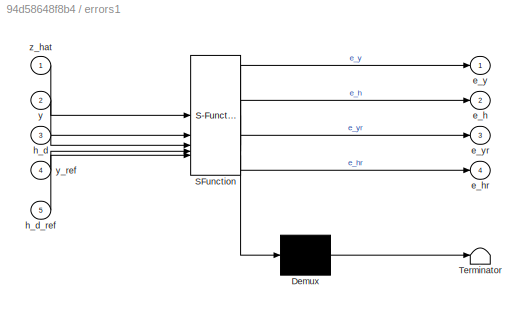
BLOCK [SubSystem] errors1
  Commented = on
  ErrorFcn = Stateflow.Translate.translate
  NameLocation = top
  PermitHierarchicalResolution = ExplicitOnly
  SFBlockType = MATLAB Function
  TreatAsAtomicUnit = on
BLOCK [Demux] errors1/ Demux 
  Outputs = 1
BLOCK [S-Function] errors1/ SFunction 
  EnableBusSupport = on
  FunctionName = sf_sfun
  PortCounts = [5 5]
  SFcnIsStateOwnerBlock = off
  SFunctionDeploymentMode = off
  Tag = Stateflow S-Function 23
BLOCK [Terminator] errors1/ Terminator 
BLOCK [Outport] errors1/e_h
  Port = 2
BLOCK [Outport] errors1/e_hr
  Port = 4
BLOCK [Outport] errors1/e_y
BLOCK [Outport] errors1/e_yr
  Port = 3
BLOCK [Inport] errors1/h_d
  Port = 3
BLOCK [Inport] errors1/h_d_ref
  Port = 5
BLOCK [Inport] errors1/y
  Port = 2
BLOCK [Inport] errors1/y_ref
  Port = 4
BLOCK [Inport] errors1/z_hat
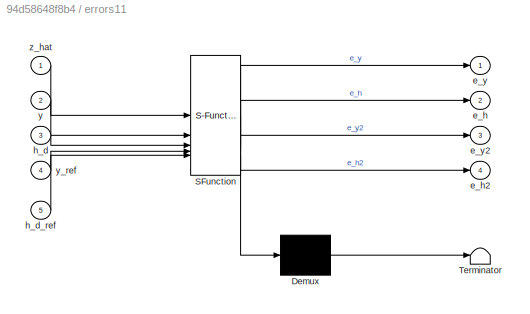
BLOCK [SubSystem] errors11
  Commented = on
  ErrorFcn = Stateflow.Translate.translate
  NameLocation = top
  PermitHierarchicalResolution = ExplicitOnly
  SFBlockType = MATLAB Function
  TreatAsAtomicUnit = on
BLOCK [Demux] errors11/ Demux 
  Outputs = 1
BLOCK [S-Function] errors11/ SFunction 
  EnableBusSupport = on
  FunctionName = sf_sfun
  PortCounts = [5 5]
  SFcnIsStateOwnerBlock = off
  SFunctionDeploymentMode = off
  Tag = Stateflow S-Function 125
BLOCK [Terminator] errors11/ Terminator 
BLOCK [Outport] errors11/e_h
  Port = 2
BLOCK [Outport] errors11/e_h2
  Port = 4
BLOCK [Outport] errors11/e_y
BLOCK [Outport] errors11/e_y2
  Port = 3
BLOCK [Inport] errors11/h_d
  Port = 3
BLOCK [Inport] errors11/h_d_ref
  Port = 5
BLOCK [Inport] errors11/y
  Port = 2
BLOCK [Inport] errors11/y_ref
  Port = 4
BLOCK [Inport] errors11/z_hat
BLOCK [SubSystem] errors12
  Commented = on
  ErrorFcn = Stateflow.Translate.translate
  NameLocation = top
  PermitHierarchicalResolution = ExplicitOnly
  SFBlockType = MATLAB Function
  TreatAsAtomicUnit = on
BLOCK [Demux] errors12/ Demux 
  Outputs = 1
BLOCK [S-Function] errors12/ SFunction 
  EnableBusSupport = on
  FunctionName = sf_sfun
  PortCounts = [5 5]
  SFcnIsStateOwnerBlock = off
  SFunctionDeploymentMode = off
  Tag = Stateflow S-Function 126
BLOCK [Terminator] errors12/ Terminator 
BLOCK [Outport] errors12/e_h
  Port = 2
BLOCK [Outport] errors12/e_h2
  Port = 4
BLOCK [Outport] errors12/e_y
BLOCK [Outport] errors12/e_y2
  Port = 3
BLOCK [Inport] errors12/h_d
  Port = 3
BLOCK [Inport] errors12/h_d_ref
  Port = 5
BLOCK [Inport] errors12/y
  Port = 2
BLOCK [Inport] errors12/y_ref
  Port = 4
BLOCK [Inport] errors12/z_hat
BLOCK [SubSystem] errors15
  ErrorFcn = Stateflow.Translate.translate
  NameLocation = top
  PermitHierarchicalResolution = ExplicitOnly
  SFBlockType = MATLAB Function
  TreatAsAtomicUnit = on
BLOCK [Demux] errors15/ Demux 
  Outputs = 1
BLOCK [S-Function] errors15/ SFunction 
  EnableBusSupport = on
  FunctionName = sf_sfun
  PortCounts = [5 5]
  SFcnIsStateOwnerBlock = off
  SFunctionDeploymentMode = off
  Tag = Stateflow S-Function 213
BLOCK [Terminator] errors15/ Terminator 
BLOCK [Outport] errors15/e_h
  Port = 2
BLOCK [Outport] errors15/e_hr
  Port = 4
BLOCK [Outport] errors15/e_y
BLOCK [Outport] errors15/e_yr
  Port = 3
BLOCK [Inport] errors15/h_d
  Port = 3
BLOCK [Inport] errors15/h_d_ref
  Port = 5
BLOCK [Inport] errors15/y
  Port = 2
BLOCK [Inport] errors15/y_ref
  Port = 4
BLOCK [Inport] errors15/z_hat
BLOCK [SubSystem] errors16
  Commented = on
  ErrorFcn = Stateflow.Translate.translate
  NameLocation = top
  PermitHierarchicalResolution = ExplicitOnly
  SFBlockType = MATLAB Function
  TreatAsAtomicUnit = on
BLOCK [Demux] errors16/ Demux 
  Outputs = 1
BLOCK [S-Function] errors16/ SFunction 
  EnableBusSupport = on
  FunctionName = sf_sfun
  PortCounts = [5 5]
  SFcnIsStateOwnerBlock = off
  SFunctionDeploymentMode = off
  Tag = Stateflow S-Function 229
BLOCK [Terminator] errors16/ Terminator 
BLOCK [Outport] errors16/e_h
  Port = 2
BLOCK [Outport] errors16/e_h2
  Port = 4
BLOCK [Outport] errors16/e_y
BLOCK [Outport] errors16/e_y2
  Port = 3
BLOCK [Inport] errors16/h_d
  Port = 3
BLOCK [Inport] errors16/h_d_ref
  Port = 5
BLOCK [Inport] errors16/y
  Port = 2
BLOCK [Inport] errors16/y_ref
  Port = 4
BLOCK [Inport] errors16/z_hat
BLOCK [SubSystem] errors2
  Commented = on
  ErrorFcn = Stateflow.Translate.translate
  NameLocation = top
  PermitHierarchicalResolution = ExplicitOnly
  SFBlockType = MATLAB Function
  TreatAsAtomicUnit = on
BLOCK [Demux] errors2/ Demux 
  Outputs = 1
BLOCK [S-Function] errors2/ SFunction 
  EnableBusSupport = on
  FunctionName = sf_sfun
  PortCounts = [5 5]
  SFcnIsStateOwnerBlock = off
  SFunctionDeploymentMode = off
  Tag = Stateflow S-Function 24
BLOCK [Terminator] errors2/ Terminator 
BLOCK [Outport] errors2/e_h
  Port = 2
BLOCK [Outport] errors2/e_h2
  Port = 4
BLOCK [Outport] errors2/e_y
BLOCK [Outport] errors2/e_y2
  Port = 3
BLOCK [Inport] errors2/h_d
  Port = 3
BLOCK [Inport] errors2/h_d_ref
  Port = 5
BLOCK [Inport] errors2/y
  Port = 2
BLOCK [Inport] errors2/y_ref
  Port = 4
BLOCK [Inport] errors2/z_hat
BLOCK [SubSystem] errors3
  Commented = on
  ErrorFcn = Stateflow.Translate.translate
  NameLocation = top
  PermitHierarchicalResolution = ExplicitOnly
  SFBlockType = MATLAB Function
  TreatAsAtomicUnit = on
BLOCK [Demux] errors3/ Demux 
  Outputs = 1
BLOCK [S-Function] errors3/ SFunction 
  EnableBusSupport = on
  FunctionName = sf_sfun
  PortCounts = [5 5]
  SFcnIsStateOwnerBlock = off
  SFunctionDeploymentMode = off
  Tag = Stateflow S-Function 27
BLOCK [Terminator] errors3/ Terminator 
BLOCK [Outport] errors3/e_h
  Port = 2
BLOCK [Outport] errors3/e_h2
  Port = 4
BLOCK [Outport] errors3/e_y
BLOCK [Outport] errors3/e_y2
  Port = 3
BLOCK [Inport] errors3/h_d
  Port = 3
BLOCK [Inport] errors3/h_d_ref
  Port = 5
BLOCK [Inport] errors3/y
  Port = 2
BLOCK [Inport] errors3/y_ref
  Port = 4
BLOCK [Inport] errors3/z_hat
BLOCK [SubSystem] errors4
  Commented = on
  ErrorFcn = Stateflow.Translate.translate
  NameLocation = top
  PermitHierarchicalResolution = ExplicitOnly
  SFBlockType = MATLAB Function
  TreatAsAtomicUnit = on
BLOCK [Demux] errors4/ Demux 
  Outputs = 1
BLOCK [S-Function] errors4/ SFunction 
  EnableBusSupport = on
  FunctionName = sf_sfun
  PortCounts = [5 5]
  SFcnIsStateOwnerBlock = off
  SFunctionDeploymentMode = off
  Tag = Stateflow S-Function 58
BLOCK [Terminator] errors4/ Terminator 
BLOCK [Outport] errors4/e_h
  Port = 2
BLOCK [Outport] errors4/e_h2
  Port = 4
BLOCK [Outport] errors4/e_y
BLOCK [Outport] errors4/e_y2
  Port = 3
BLOCK [Inport] errors4/h_d
  Port = 3
BLOCK [Inport] errors4/h_d_ref
  Port = 5
BLOCK [Inport] errors4/y
  Port = 2
BLOCK [Inport] errors4/y_ref
  Port = 4
BLOCK [Inport] errors4/z_hat
BLOCK [SubSystem] errors5
  ErrorFcn = Stateflow.Translate.translate
  NameLocation = top
  PermitHierarchicalResolution = ExplicitOnly
  SFBlockType = MATLAB Function
  TreatAsAtomicUnit = on
BLOCK [Demux] errors5/ Demux 
  Outputs = 1
BLOCK [S-Function] errors5/ SFunction 
  EnableBusSupport = on
  FunctionName = sf_sfun
  PortCounts = [5 5]
  SFcnIsStateOwnerBlock = off
  SFunctionDeploymentMode = off
  Tag = Stateflow S-Function 66
BLOCK [Terminator] errors5/ Terminator 
BLOCK [Outport] errors5/e_h
  Port = 2
BLOCK [Outport] errors5/e_hr
  Port = 4
BLOCK [Outport] errors5/e_y
BLOCK [Outport] errors5/e_yr
  Port = 3
BLOCK [Inport] errors5/h_d
  Port = 3
BLOCK [Inport] errors5/h_d_ref
  Port = 5
BLOCK [Inport] errors5/y
  Port = 2
BLOCK [Inport] errors5/y_ref
  Port = 4
BLOCK [Inport] errors5/z_hat
BLOCK [SubSystem] errors6
  Commented = on
  ErrorFcn = Stateflow.Translate.translate
  NameLocation = top
  PermitHierarchicalResolution = ExplicitOnly
  SFBlockType = MATLAB Function
  TreatAsAtomicUnit = on
BLOCK [Demux] errors6/ Demux 
  Outputs = 1
BLOCK [S-Function] errors6/ SFunction 
  EnableBusSupport = on
  FunctionName = sf_sfun
  PortCounts = [5 5]
  SFcnIsStateOwnerBlock = off
  SFunctionDeploymentMode = off
  Tag = Stateflow S-Function 214
BLOCK [Terminator] errors6/ Terminator 
BLOCK [Outport] errors6/e_h
  Port = 2
BLOCK [Outport] errors6/e_hr
  Port = 4
BLOCK [Outport] errors6/e_y
BLOCK [Outport] errors6/e_yr
  Port = 3
BLOCK [Inport] errors6/h_d
  Port = 3
BLOCK [Inport] errors6/h_d_ref
  Port = 5
BLOCK [Inport] errors6/y
  Port = 2
BLOCK [Inport] errors6/y_ref
  Port = 4
BLOCK [Inport] errors6/z_hat
BLOCK [SubSystem] errors7
  ErrorFcn = Stateflow.Translate.translate
  NameLocation = top
  PermitHierarchicalResolution = ExplicitOnly
  SFBlockType = MATLAB Function
  TreatAsAtomicUnit = on
BLOCK [Demux] errors7/ Demux 
  Outputs = 1
BLOCK [S-Function] errors7/ SFunction 
  EnableBusSupport = on
  FunctionName = sf_sfun
  PortCounts = [5 5]
  SFcnIsStateOwnerBlock = off
  SFunctionDeploymentMode = off
  Tag = Stateflow S-Function 85
BLOCK [Terminator] errors7/ Terminator 
BLOCK [Outport] errors7/e_h
  Port = 2
BLOCK [Outport] errors7/e_h2
  Port = 4
BLOCK [Outport] errors7/e_y
BLOCK [Outport] errors7/e_y2
  Port = 3
BLOCK [Inport] errors7/h_d
  Port = 3
BLOCK [Inport] errors7/h_d_ref
  Port = 5
BLOCK [Inport] errors7/y
  Port = 2
BLOCK [Inport] errors7/y_ref
  Port = 4
BLOCK [Inport] errors7/z_hat
BLOCK [SubSystem] errors8
  ErrorFcn = Stateflow.Translate.translate
  NameLocation = top
  PermitHierarchicalResolution = ExplicitOnly
  SFBlockType = MATLAB Function
  TreatAsAtomicUnit = on
BLOCK [Demux] errors8/ Demux 
  Outputs = 1
BLOCK [S-Function] errors8/ SFunction 
  EnableBusSupport = on
  FunctionName = sf_sfun
  PortCounts = [5 5]
  SFcnIsStateOwnerBlock = off
  SFunctionDeploymentMode = off
  Tag = Stateflow S-Function 67
BLOCK [Terminator] errors8/ Terminator 
BLOCK [Outport] errors8/e_h
  Port = 2
BLOCK [Outport] errors8/e_h2
  Port = 4
BLOCK [Outport] errors8/e_y
BLOCK [Outport] errors8/e_y2
  Port = 3
BLOCK [Inport] errors8/h_d
  Port = 3
BLOCK [Inport] errors8/h_d_ref
  Port = 5
BLOCK [Inport] errors8/y
  Port = 2
BLOCK [Inport] errors8/y_ref
  Port = 4
BLOCK [Inport] errors8/z_hat
BLOCK [SubSystem] estimator1
  Commented = on
  ErrorFcn = Stateflow.Translate.translate
  NameLocation = top
  PermitHierarchicalResolution = ExplicitOnly
  SFBlockType = MATLAB Function
  TreatAsAtomicUnit = on
BLOCK [Demux] estimator1/ Demux 
  Outputs = 1
BLOCK [S-Function] estimator1/ SFunction 
  EnableBusSupport = on
  FunctionName = sf_sfun
  Parameters = L,d_p
  PortCounts = [4 5]
  SFcnIsStateOwnerBlock = off
  SFunctionDeploymentMode = off
  Tag = Stateflow S-Function 28
BLOCK [Terminator] estimator1/ Terminator 
BLOCK [Outport] estimator1/d_d_hat
  Port = 4
BLOCK [Inport] estimator1/h
  Port = 2
BLOCK [Outport] estimator1/h_d_hat
  Port = 3
BLOCK [Inport] estimator1/u
  Port = 3
BLOCK [Outport] estimator1/u_hat
  Port = 2
BLOCK [Inport] estimator1/x
BLOCK [Inport] estimator1/y_L
  Port = 4
BLOCK [Outport] estimator1/y_d_hat
BLOCK [SubSystem] h_d_ref1
  Commented = on
  ErrorFcn = Stateflow.Translate.translate
  PermitHierarchicalResolution = ExplicitOnly
  SFBlockType = MATLAB Function
  TreatAsAtomicUnit = on
BLOCK [Demux] h_d_ref1/ Demux 
  Outputs = 1
BLOCK [S-Function] h_d_ref1/ SFunction 
  EnableBusSupport = on
  FunctionName = sf_sfun
  Parameters = A,B,kappa1
  PortCounts = [5 2]
  SFcnIsStateOwnerBlock = off
  SFunctionDeploymentMode = off
  Tag = Stateflow S-Function 25
BLOCK [Terminator] h_d_ref1/ Terminator 
BLOCK [Inport] h_d_ref1/Y
  Port = 4
BLOCK [Inport] h_d_ref1/Y_ref
  Port = 2
BLOCK [Inport] h_d_ref1/Y_ref_dot
  Port = 3
BLOCK [Inport] h_d_ref1/d_d
  Port = 5
BLOCK [Outport] h_d_ref1/h_d_ref
BLOCK [Inport] h_d_ref1/u
BLOCK [SubSystem] h_d_ref10
  Commented = on
  ErrorFcn = Stateflow.Translate.translate
  PermitHierarchicalResolution = ExplicitOnly
  SFBlockType = MATLAB Function
  TreatAsAtomicUnit = on
BLOCK [Demux] h_d_ref10/ Demux 
  Outputs = 1
BLOCK [S-Function] h_d_ref10/ SFunction 
  EnableBusSupport = on
  FunctionName = sf_sfun
  Parameters = A,B,kappa1
  PortCounts = [5 2]
  SFcnIsStateOwnerBlock = off
  SFunctionDeploymentMode = off
  Tag = Stateflow S-Function 127
BLOCK [Terminator] h_d_ref10/ Terminator 
BLOCK [Inport] h_d_ref10/Y
  Port = 4
BLOCK [Inport] h_d_ref10/Y_ref
  Port = 2
BLOCK [Inport] h_d_ref10/Y_ref_dot
  Port = 3
BLOCK [Inport] h_d_ref10/d_d
  Port = 5
BLOCK [Outport] h_d_ref10/h_d_ref
BLOCK [Inport] h_d_ref10/u
BLOCK [SubSystem] h_d_ref11
  Commented = on
  ErrorFcn = Stateflow.Translate.translate
  PermitHierarchicalResolution = ExplicitOnly
  SFBlockType = MATLAB Function
  TreatAsAtomicUnit = on
BLOCK [Demux] h_d_ref11/ Demux 
  Outputs = 1
BLOCK [S-Function] h_d_ref11/ SFunction 
  EnableBusSupport = on
  FunctionName = sf_sfun
  Parameters = A,B,kappa1
  PortCounts = [5 2]
  SFcnIsStateOwnerBlock = off
  SFunctionDeploymentMode = off
  Tag = Stateflow S-Function 128
BLOCK [Terminator] h_d_ref11/ Terminator 
BLOCK [Inport] h_d_ref11/Y
  Port = 4
BLOCK [Inport] h_d_ref11/Y_ref
  Port = 2
BLOCK [Inport] h_d_ref11/Y_ref_dot
  Port = 3
BLOCK [Inport] h_d_ref11/d_d
  Port = 5
BLOCK [Outport] h_d_ref11/h_d_ref
BLOCK [Inport] h_d_ref11/u
BLOCK [SubSystem] h_d_ref15
  Commented = on
  ErrorFcn = Stateflow.Translate.translate
  PermitHierarchicalResolution = ExplicitOnly
  SFBlockType = MATLAB Function
  TreatAsAtomicUnit = on
BLOCK [Demux] h_d_ref15/ Demux 
  Outputs = 1
BLOCK [S-Function] h_d_ref15/ SFunction 
  EnableBusSupport = on
  FunctionName = sf_sfun
  Parameters = A,B,kappa1
  PortCounts = [5 2]
  SFcnIsStateOwnerBlock = off
  SFunctionDeploymentMode = off
  Tag = Stateflow S-Function 216
BLOCK [Terminator] h_d_ref15/ Terminator 
BLOCK [Inport] h_d_ref15/d_d
  Port = 5
BLOCK [Outport] h_d_ref15/h_d_ref
BLOCK [Inport] h_d_ref15/u
BLOCK [Inport] h_d_ref15/y_ref
  Port = 2
BLOCK [Inport] h_d_ref15/y_ref_dot
  Port = 3
BLOCK [Inport] h_d_ref15/z_hat
  Port = 4
BLOCK [SubSystem] h_d_ref2
  Commented = on
  ErrorFcn = Stateflow.Translate.translate
  PermitHierarchicalResolution = ExplicitOnly
  SFBlockType = MATLAB Function
  TreatAsAtomicUnit = on
BLOCK [Demux] h_d_ref2/ Demux 
  Outputs = 1
BLOCK [S-Function] h_d_ref2/ SFunction 
  EnableBusSupport = on
  FunctionName = sf_sfun
  Parameters = A,B,kappa1
  PortCounts = [5 2]
  SFcnIsStateOwnerBlock = off
  SFunctionDeploymentMode = off
  Tag = Stateflow S-Function 30
BLOCK [Terminator] h_d_ref2/ Terminator 
BLOCK [Inport] h_d_ref2/Y
  Port = 4
BLOCK [Inport] h_d_ref2/Y_ref
  Port = 2
BLOCK [Inport] h_d_ref2/Y_ref_dot
  Port = 3
BLOCK [Inport] h_d_ref2/d_d
  Port = 5
BLOCK [Outport] h_d_ref2/h_d_ref
BLOCK [Inport] h_d_ref2/u
BLOCK [SubSystem] measurements1
  Commented = on
  NameLocation = top
  PortSchema = {"entries":[{"content":{"sides":[{"content":{"connectorIds":[]},"type":"ConnectorPlacement.EquallySpacedRectSide","uuid":"c6804a03-85ed-4e19-a8b2-23b3b91cc999"},{"content":{"connectorIds":["Out1","In1","In2","Out2"],"side":"RIGHT"},"type":"ConnectorPlacement.EquallySpacedRectSide","uuid":"3893e005-dabd-44b9-aa2f-690b9b6a2b6d"},{"content":{"connectorIds":[],"side":"TOP"},"type":"ConnectorPlacement....<+254ch>
BLOCK [Integrator] measurements1/Integrator1
BLOCK [SubSystem] measurements1/MATLAB Function1
  ErrorFcn = Stateflow.Translate.translate
  PermitHierarchicalResolution = ExplicitOnly
  SFBlockType = MATLAB Function
  TreatAsAtomicUnit = on
BLOCK [Demux] measurements1/MATLAB Function1/ Demux 
  Outputs = 1
BLOCK [S-Function] measurements1/MATLAB Function1/ SFunction 
  EnableBusSupport = on
  FunctionName = sf_sfun
  Parameters = d_p
  PortCounts = [2 2]
  SFcnIsStateOwnerBlock = off
  SFunctionDeploymentMode = off
  Tag = Stateflow S-Function 29
BLOCK [Terminator] measurements1/MATLAB Function1/ Terminator 
BLOCK [Inport] measurements1/MATLAB Function1/h
BLOCK [Inport] measurements1/MATLAB Function1/u
  Port = 2
BLOCK [Outport] measurements1/MATLAB Function1/y_L
BLOCK [SubSystem] measurements1/MATLAB Function5
  ErrorFcn = Stateflow.Translate.translate
  PermitHierarchicalResolution = ExplicitOnly
  SFBlockType = MATLAB Function
  TreatAsAtomicUnit = on
BLOCK [Demux] measurements1/MATLAB Function5/ Demux 
  Outputs = 1
BLOCK [S-Function] measurements1/MATLAB Function5/ SFunction 
  EnableBusSupport = on
  FunctionName = sf_sfun
  Parameters = alpha,beta,gamma
  PortCounts = [2 2]
  SFcnIsStateOwnerBlock = off
  SFunctionDeploymentMode = off
  Tag = Stateflow S-Function 31
BLOCK [Terminator] measurements1/MATLAB Function5/ Terminator 
BLOCK [Inport] measurements1/MATLAB Function5/h
  Port = 2
BLOCK [Outport] measurements1/MATLAB Function5/h_dot
BLOCK [Inport] measurements1/MATLAB Function5/u_dot
BLOCK [Outport] measurements1/h
  Port = 2
BLOCK [Inport] measurements1/u
  NameLocation = top
BLOCK [Inport] measurements1/u_dot
  NameLocation = top
  Port = 2
BLOCK [Outport] measurements1/y_L
BLOCK [SubSystem] observer
  NameLocation = top
BLOCK [Demux] observer/Demux1
  NameLocation = left
  Outputs = 2
BLOCK [Integrator] observer/Integrator37
  InitialCondition = [0;0]
  NameLocation = right
BLOCK [Mux] observer/Mux21
  DisplayOption = signals
  Inputs = 3
  NameLocation = left
BLOCK [Outport] observer/d_d
BLOCK [SubSystem] observer/dist_vars35
  PortSchema = {"entries":[{"content":{"sides":[{"content":{"connectorIds":["Out1"]},"type":"ConnectorPlacement.EquallySpacedRectSide","uuid":"c6804a03-85ed-4e19-a8b2-23b3b91cc999"},{"content":{"connectorIds":["In1","In2"],"side":"RIGHT"},"type":"ConnectorPlacement.EquallySpacedRectSide","uuid":"3893e005-dabd-44b9-aa2f-690b9b6a2b6d"},{"content":{"connectorIds":[],"side":"TOP"},"type":"ConnectorPlacement.EquallyS...<+246ch>  <repeated x3 — deduplicated; at blocks: dist_vars35>
BLOCK [Integrator] observer/dist_vars35/Integrator1
  NameLocation = top
BLOCK [SubSystem] observer/dist_vars35/MATLAB Function
  ErrorFcn = Stateflow.Translate.translate
  PermitHierarchicalResolution = ExplicitOnly
  SFBlockType = MATLAB Function
  TreatAsAtomicUnit = on
BLOCK [Demux] observer/dist_vars35/MATLAB Function/ Demux 
  Outputs = 1
BLOCK [S-Function] observer/dist_vars35/MATLAB Function/ SFunction 
  EnableBusSupport = on
  FunctionName = sf_sfun
  Parameters = L,d_p
  PortCounts = [1 2]
  SFcnIsStateOwnerBlock = off
  SFunctionDeploymentMode = off
  Tag = Stateflow S-Function 205
BLOCK [Terminator] observer/dist_vars35/MATLAB Function/ Terminator 
BLOCK [Outport] observer/dist_vars35/MATLAB Function/d_d
BLOCK [Inport] observer/dist_vars35/MATLAB Function/x
BLOCK [SubSystem] observer/dist_vars35/MATLAB Function5
  ErrorFcn = Stateflow.Translate.translate
  PermitHierarchicalResolution = ExplicitOnly
  SFBlockType = MATLAB Function
  TreatAsAtomicUnit = on
BLOCK [Demux] observer/dist_vars35/MATLAB Function5/ Demux 
  Outputs = 1
BLOCK [S-Function] observer/dist_vars35/MATLAB Function5/ SFunction 
  EnableBusSupport = on
  FunctionName = sf_sfun
  Parameters = L,alpha,beta,gamma
  PortCounts = [3 4]
  SFcnIsStateOwnerBlock = off
  SFunctionDeploymentMode = off
  Tag = Stateflow S-Function 206
BLOCK [Terminator] observer/dist_vars35/MATLAB Function5/ Terminator 
BLOCK [Inport] observer/dist_vars35/MATLAB Function5/h
  Port = 2
BLOCK [Outport] observer/dist_vars35/MATLAB Function5/h_d
  Port = 2
BLOCK [Outport] observer/dist_vars35/MATLAB Function5/h_d_dot
  Port = 3
BLOCK [Outport] observer/dist_vars35/MATLAB Function5/h_dot
BLOCK [Inport] observer/dist_vars35/MATLAB Function5/u_dot
BLOCK [Inport] observer/dist_vars35/MATLAB Function5/x
  Port = 3
BLOCK [Outport] observer/dist_vars35/d_d
BLOCK [Inport] observer/dist_vars35/u_dot
  NameLocation = top
  Port = 2
BLOCK [Inport] observer/dist_vars35/x
  NameLocation = top
BLOCK [Inport] observer/h_d
  Port = 4
BLOCK [SubSystem] observer/observer13
  ErrorFcn = Stateflow.Translate.translate
  NameLocation = top
  PermitHierarchicalResolution = ExplicitOnly
  SFBlockType = MATLAB Function
  TreatAsAtomicUnit = on
BLOCK [Demux] observer/observer13/ Demux 
  Outputs = 1
BLOCK [S-Function] observer/observer13/ SFunction 
  EnableBusSupport = on
  FunctionName = sf_sfun
  Parameters = C_bar,G,Gamma,L,S,V,W
  PortCounts = [5 2]
  SFcnIsStateOwnerBlock = off
  SFunctionDeploymentMode = off
  Tag = Stateflow S-Function 217
BLOCK [Terminator] observer/observer13/ Terminator 
BLOCK [Inport] observer/observer13/hZ
  Port = 5
BLOCK [Inport] observer/observer13/h_d
  Port = 4
BLOCK [Inport] observer/observer13/x
  Port = 3
BLOCK [Inport] observer/observer13/y
  Port = 2
BLOCK [Inport] observer/observer13/z_hat
BLOCK [Outport] observer/observer13/z_hat_dot
BLOCK [Inport] observer/u
  Port = 2
BLOCK [Inport] observer/u_dot
  Port = 3
BLOCK [Inport] observer/x
BLOCK [Inport] observer/y
  Port = 5
BLOCK [Outport] observer/z_hat
  Port = 2
BLOCK [SubSystem] observer1
  Commented = on
  ErrorFcn = Stateflow.Translate.translate
  NameLocation = top
  PermitHierarchicalResolution = ExplicitOnly
  SFBlockType = MATLAB Function
  TreatAsAtomicUnit = on
BLOCK [Demux] observer1/ Demux 
  Outputs = 1
BLOCK [S-Function] observer1/ SFunction 
  EnableBusSupport = on
  FunctionName = sf_sfun
  Parameters = C_bar,Gamma_c,S,V,W
  PortCounts = [3 2]
  SFcnIsStateOwnerBlock = off
  SFunctionDeploymentMode = off
  Tag = Stateflow S-Function 26
BLOCK [Terminator] observer1/ Terminator 
BLOCK [Inport] observer1/hZ
  Port = 3
BLOCK [Inport] observer1/y
  Port = 2
BLOCK [Inport] observer1/z_hat
BLOCK [Outport] observer1/z_hat_dot
BLOCK [SubSystem] observer10
  Commented = on
  ErrorFcn = Stateflow.Translate.translate
  NameLocation = top
  PermitHierarchicalResolution = ExplicitOnly
  SFBlockType = MATLAB Function
  TreatAsAtomicUnit = on
BLOCK [Demux] observer10/ Demux 
  Outputs = 1
BLOCK [S-Function] observer10/ SFunction 
  EnableBusSupport = on
  FunctionName = sf_sfun
  Parameters = C_bar,Gamma,S,V,W
  PortCounts = [4 2]
  SFcnIsStateOwnerBlock = off
  SFunctionDeploymentMode = off
  Tag = Stateflow S-Function 129
BLOCK [Terminator] observer10/ Terminator 
BLOCK [Inport] observer10/hZ
  Port = 4
BLOCK [Inport] observer10/h_d
  Port = 3
BLOCK [Inport] observer10/y
  Port = 2
BLOCK [Inport] observer10/z_hat
BLOCK [Outport] observer10/z_hat_dot
BLOCK [SubSystem] observer14
  Commented = on
  ErrorFcn = Stateflow.Translate.translate
  NameLocation = top
  PermitHierarchicalResolution = ExplicitOnly
  SFBlockType = MATLAB Function
  TreatAsAtomicUnit = on
BLOCK [Demux] observer14/ Demux 
  Outputs = 1
BLOCK [S-Function] observer14/ SFunction 
  EnableBusSupport = on
  FunctionName = sf_sfun
  Parameters = C_bar,Gamma,L,S,V,W
  PortCounts = [5 2]
  SFcnIsStateOwnerBlock = off
  SFunctionDeploymentMode = off
  Tag = Stateflow S-Function 218
BLOCK [Terminator] observer14/ Terminator 
BLOCK [Inport] observer14/hZ
  Port = 5
BLOCK [Inport] observer14/h_d
  Port = 4
BLOCK [Inport] observer14/x
  Port = 3
BLOCK [Inport] observer14/y
  Port = 2
BLOCK [Inport] observer14/z_hat
BLOCK [Outport] observer14/z_hat_dot
BLOCK [SubSystem] observer15
  Commented = on
  ErrorFcn = Stateflow.Translate.translate
  NameLocation = top
  PermitHierarchicalResolution = ExplicitOnly
  SFBlockType = MATLAB Function
  TreatAsAtomicUnit = on
BLOCK [Demux] observer15/ Demux 
  Outputs = 1
BLOCK [S-Function] observer15/ SFunction 
  EnableBusSupport = on
  FunctionName = sf_sfun
  Parameters = A,B,C_bar,Gamma,S
  PortCounts = [5 2]
  SFcnIsStateOwnerBlock = off
  SFunctionDeploymentMode = off
  Tag = Stateflow S-Function 231
BLOCK [Terminator] observer15/ Terminator 
BLOCK [Inport] observer15/d_d
  Port = 5
BLOCK [Inport] observer15/h_d_dot
  Port = 4
BLOCK [Inport] observer15/u
  Port = 3
BLOCK [Inport] observer15/y
  Port = 2
BLOCK [Inport] observer15/z_hat
BLOCK [Outport] observer15/z_hat_dot
BLOCK [SubSystem] observer2
  Commented = on
  NameLocation = top
BLOCK [Demux] observer2/Demux1
  NameLocation = left
  Outputs = 2
BLOCK [Integrator] observer2/Integrator37
  InitialCondition = [0;0]
  NameLocation = right
BLOCK [Mux] observer2/Mux21
  DisplayOption = signals
  Inputs = 3
  NameLocation = left
BLOCK [Outport] observer2/d_d
BLOCK [SubSystem] observer2/dist_vars35
BLOCK [Integrator] observer2/dist_vars35/Integrator1
  NameLocation = top
BLOCK [SubSystem] observer2/dist_vars35/MATLAB Function
  ErrorFcn = Stateflow.Translate.translate
  PermitHierarchicalResolution = ExplicitOnly
  SFBlockType = MATLAB Function
  TreatAsAtomicUnit = on
BLOCK [Demux] observer2/dist_vars35/MATLAB Function/ Demux 
  Outputs = 1
BLOCK [S-Function] observer2/dist_vars35/MATLAB Function/ SFunction 
  EnableBusSupport = on
  FunctionName = sf_sfun
  Parameters = L,d_p
  PortCounts = [1 2]
  SFcnIsStateOwnerBlock = off
  SFunctionDeploymentMode = off
  Tag = Stateflow S-Function 35
BLOCK [Terminator] observer2/dist_vars35/MATLAB Function/ Terminator 
BLOCK [Outport] observer2/dist_vars35/MATLAB Function/d_d
BLOCK [Inport] observer2/dist_vars35/MATLAB Function/x
BLOCK [SubSystem] observer2/dist_vars35/MATLAB Function5
  ErrorFcn = Stateflow.Translate.translate
  PermitHierarchicalResolution = ExplicitOnly
  SFBlockType = MATLAB Function
  TreatAsAtomicUnit = on
BLOCK [Demux] observer2/dist_vars35/MATLAB Function5/ Demux 
  Outputs = 1
BLOCK [S-Function] observer2/dist_vars35/MATLAB Function5/ SFunction 
  EnableBusSupport = on
  FunctionName = sf_sfun
  Parameters = L,alpha,beta,gamma
  PortCounts = [3 4]
  SFcnIsStateOwnerBlock = off
  SFunctionDeploymentMode = off
  Tag = Stateflow S-Function 38
BLOCK [Terminator] observer2/dist_vars35/MATLAB Function5/ Terminator 
BLOCK [Inport] observer2/dist_vars35/MATLAB Function5/h
  Port = 2
BLOCK [Outport] observer2/dist_vars35/MATLAB Function5/h_d
  Port = 2
BLOCK [Outport] observer2/dist_vars35/MATLAB Function5/h_d_dot
  Port = 3
BLOCK [Outport] observer2/dist_vars35/MATLAB Function5/h_dot
BLOCK [Inport] observer2/dist_vars35/MATLAB Function5/u_dot
BLOCK [Inport] observer2/dist_vars35/MATLAB Function5/x
  Port = 3
BLOCK [Outport] observer2/dist_vars35/d_d
BLOCK [Inport] observer2/dist_vars35/u_dot
  NameLocation = top
  Port = 2
BLOCK [Inport] observer2/dist_vars35/x
  NameLocation = top
BLOCK [Inport] observer2/h_d
  Port = 4
BLOCK [SubSystem] observer2/observer13
  ErrorFcn = Stateflow.Translate.translate
  NameLocation = top
  PermitHierarchicalResolution = ExplicitOnly
  SFBlockType = MATLAB Function
  TreatAsAtomicUnit = on
BLOCK [Demux] observer2/observer13/ Demux 
  Outputs = 1
BLOCK [S-Function] observer2/observer13/ SFunction 
  EnableBusSupport = on
  FunctionName = sf_sfun
  Parameters = C_bar,G,Gamma,L,S,V,W
  PortCounts = [5 2]
  SFcnIsStateOwnerBlock = off
  SFunctionDeploymentMode = off
  Tag = Stateflow S-Function 42
BLOCK [Terminator] observer2/observer13/ Terminator 
BLOCK [Inport] observer2/observer13/hZ
  Port = 5
BLOCK [Inport] observer2/observer13/h_d
  Port = 4
BLOCK [Inport] observer2/observer13/x
  Port = 3
BLOCK [Inport] observer2/observer13/y
  Port = 2
BLOCK [Inport] observer2/observer13/z_hat
BLOCK [Outport] observer2/observer13/z_hat_dot
BLOCK [Inport] observer2/u
  Port = 2
BLOCK [Inport] observer2/u_dot
  Port = 3
BLOCK [Inport] observer2/x
BLOCK [Inport] observer2/y
  Port = 5
BLOCK [Outport] observer2/z_hat
  Port = 2
BLOCK [SubSystem] observer3
  NameLocation = top
BLOCK [Demux] observer3/Demux1
  NameLocation = left
  Outputs = 2
BLOCK [Integrator] observer3/Integrator37
  InitialCondition = [0;0]
  NameLocation = right
BLOCK [Mux] observer3/Mux21
  DisplayOption = signals
  Inputs = 3
  NameLocation = left
BLOCK [Outport] observer3/d_d
BLOCK [SubSystem] observer3/dist_vars35
BLOCK [Integrator] observer3/dist_vars35/Integrator1
  NameLocation = top
BLOCK [SubSystem] observer3/dist_vars35/MATLAB Function
  ErrorFcn = Stateflow.Translate.translate
  PermitHierarchicalResolution = ExplicitOnly
  SFBlockType = MATLAB Function
  TreatAsAtomicUnit = on
BLOCK [Demux] observer3/dist_vars35/MATLAB Function/ Demux 
  Outputs = 1
BLOCK [S-Function] observer3/dist_vars35/MATLAB Function/ SFunction 
  EnableBusSupport = on
  FunctionName = sf_sfun
  Parameters = L,d_p
  PortCounts = [1 2]
  SFcnIsStateOwnerBlock = off
  SFunctionDeploymentMode = off
  Tag = Stateflow S-Function 68
BLOCK [Terminator] observer3/dist_vars35/MATLAB Function/ Terminator 
BLOCK [Outport] observer3/dist_vars35/MATLAB Function/d_d
BLOCK [Inport] observer3/dist_vars35/MATLAB Function/x
BLOCK [SubSystem] observer3/dist_vars35/MATLAB Function5
  ErrorFcn = Stateflow.Translate.translate
  PermitHierarchicalResolution = ExplicitOnly
  SFBlockType = MATLAB Function
  TreatAsAtomicUnit = on
BLOCK [Demux] observer3/dist_vars35/MATLAB Function5/ Demux 
  Outputs = 1
BLOCK [S-Function] observer3/dist_vars35/MATLAB Function5/ SFunction 
  EnableBusSupport = on
  FunctionName = sf_sfun
  Parameters = L,alpha,beta,gamma
  PortCounts = [3 4]
  SFcnIsStateOwnerBlock = off
  SFunctionDeploymentMode = off
  Tag = Stateflow S-Function 69
BLOCK [Terminator] observer3/dist_vars35/MATLAB Function5/ Terminator 
BLOCK [Inport] observer3/dist_vars35/MATLAB Function5/h
  Port = 2
BLOCK [Outport] observer3/dist_vars35/MATLAB Function5/h_d
  Port = 2
BLOCK [Outport] observer3/dist_vars35/MATLAB Function5/h_d_dot
  Port = 3
BLOCK [Outport] observer3/dist_vars35/MATLAB Function5/h_dot
BLOCK [Inport] observer3/dist_vars35/MATLAB Function5/u_dot
BLOCK [Inport] observer3/dist_vars35/MATLAB Function5/x
  Port = 3
BLOCK [Outport] observer3/dist_vars35/d_d
BLOCK [Inport] observer3/dist_vars35/u_dot
  NameLocation = top
  Port = 2
BLOCK [Inport] observer3/dist_vars35/x
  NameLocation = top
BLOCK [Inport] observer3/h_d
  Port = 4
BLOCK [SubSystem] observer3/observer13
  ErrorFcn = Stateflow.Translate.translate
  NameLocation = top
  PermitHierarchicalResolution = ExplicitOnly
  SFBlockType = MATLAB Function
  TreatAsAtomicUnit = on
BLOCK [Demux] observer3/observer13/ Demux 
  Outputs = 1
BLOCK [S-Function] observer3/observer13/ SFunction 
  EnableBusSupport = on
  FunctionName = sf_sfun
  Parameters = C_bar,G,Gamma,L,S,V,W
  PortCounts = [5 2]
  SFcnIsStateOwnerBlock = off
  SFunctionDeploymentMode = off
  Tag = Stateflow S-Function 70
BLOCK [Terminator] observer3/observer13/ Terminator 
BLOCK [Inport] observer3/observer13/hZ
  Port = 5
BLOCK [Inport] observer3/observer13/h_d
  Port = 4
BLOCK [Inport] observer3/observer13/x
  Port = 3
BLOCK [Inport] observer3/observer13/y
  Port = 2
BLOCK [Inport] observer3/observer13/z_hat
BLOCK [Outport] observer3/observer13/z_hat_dot
BLOCK [Inport] observer3/u
  Port = 2
BLOCK [Inport] observer3/u_dot
  Port = 3
BLOCK [Inport] observer3/x
BLOCK [Inport] observer3/y
  Port = 5
BLOCK [Outport] observer3/z_hat
  Port = 2
BLOCK [SubSystem] observer9
  Commented = on
  ErrorFcn = Stateflow.Translate.translate
  NameLocation = top
  PermitHierarchicalResolution = ExplicitOnly
  SFBlockType = MATLAB Function
  TreatAsAtomicUnit = on
BLOCK [Demux] observer9/ Demux 
  Outputs = 1
BLOCK [S-Function] observer9/ SFunction 
  EnableBusSupport = on
  FunctionName = sf_sfun
  Parameters = C_bar,Gamma,S,V,W
  PortCounts = [4 2]
  SFcnIsStateOwnerBlock = off
  SFunctionDeploymentMode = off
  Tag = Stateflow S-Function 130
BLOCK [Terminator] observer9/ Terminator 
BLOCK [Inport] observer9/hZ
  Port = 4
BLOCK [Inport] observer9/h_d
  Port = 3
BLOCK [Inport] observer9/y
  Port = 2
BLOCK [Inport] observer9/z_hat
BLOCK [Outport] observer9/z_hat_dot
BLOCK [SubSystem] system v1
  Commented = on
  ErrorFcn = Stateflow.Translate.translate
  PermitHierarchicalResolution = ExplicitOnly
  SFBlockType = MATLAB Function
  TreatAsAtomicUnit = on
BLOCK [Demux] system v1/ Demux 
  Outputs = 1
BLOCK [S-Function] system v1/ SFunction 
  EnableBusSupport = on
  FunctionName = sf_sfun
  PortCounts = [3 2]
  SFcnIsStateOwnerBlock = off
  SFunctionDeploymentMode = off
  Tag = Stateflow S-Function 61
BLOCK [Terminator] system v1/ Terminator 
BLOCK [Inport] system v1/d_d
BLOCK [Inport] system v1/h_d
  Port = 3
BLOCK [Inport] system v1/u
  Port = 2
BLOCK [Outport] system v1/v
BLOCK [Saturate] u3
  Commented = on
  LowerLimit = -500
  UpperLimit = 500
BLOCK [Integrator] u_ref1
  Commented = on
BLOCK [Integrator] u_ref10
  Commented = on
BLOCK [Integrator] u_ref14
  Commented = on
BLOCK [Integrator] u_ref9
  Commented = on
BLOCK [SubSystem] u_ref_dot1
  Commented = on
  ErrorFcn = Stateflow.Translate.translate
  PermitHierarchicalResolution = ExplicitOnly
  SFBlockType = MATLAB Function
  TreatAsAtomicUnit = on
BLOCK [Demux] u_ref_dot1/ Demux 
  Outputs = 1
BLOCK [S-Function] u_ref_dot1/ SFunction 
  EnableBusSupport = on
  FunctionName = sf_sfun
  Parameters = alpha,k1,k2
  PortCounts = [2 2]
  SFcnIsStateOwnerBlock = off
  SFunctionDeploymentMode = off
  Tag = Stateflow S-Function 39
BLOCK [Terminator] u_ref_dot1/ Terminator 
BLOCK [Inport] u_ref_dot1/h_d_ref
BLOCK [Outport] u_ref_dot1/u_ref_dot
BLOCK [Inport] u_ref_dot1/z_hat
  Port = 2
BLOCK [SubSystem] u_ref_dot10
  Commented = on
  ErrorFcn = Stateflow.Translate.translate
  PermitHierarchicalResolution = ExplicitOnly
  SFBlockType = MATLAB Function
  TreatAsAtomicUnit = on
BLOCK [Demux] u_ref_dot10/ Demux 
  Outputs = 1
BLOCK [S-Function] u_ref_dot10/ SFunction 
  EnableBusSupport = on
  FunctionName = sf_sfun
  Parameters = L,alpha,k1,k2
  PortCounts = [3 2]
  SFcnIsStateOwnerBlock = off
  SFunctionDeploymentMode = off
  Tag = Stateflow S-Function 131
BLOCK [Terminator] u_ref_dot10/ Terminator 
BLOCK [Inport] u_ref_dot10/h_d_ref
BLOCK [Outport] u_ref_dot10/u_ref_dot
BLOCK [Inport] u_ref_dot10/x
  Port = 3
BLOCK [Inport] u_ref_dot10/z_hat
  Port = 2
BLOCK [SubSystem] u_ref_dot11
  Commented = on
  ErrorFcn = Stateflow.Translate.translate
  PermitHierarchicalResolution = ExplicitOnly
  SFBlockType = MATLAB Function
  TreatAsAtomicUnit = on
BLOCK [Demux] u_ref_dot11/ Demux 
  Outputs = 1
BLOCK [S-Function] u_ref_dot11/ SFunction 
  EnableBusSupport = on
  FunctionName = sf_sfun
  Parameters = L,alpha,k1,k2
  PortCounts = [3 2]
  SFcnIsStateOwnerBlock = off
  SFunctionDeploymentMode = off
  Tag = Stateflow S-Function 132
BLOCK [Terminator] u_ref_dot11/ Terminator 
BLOCK [Inport] u_ref_dot11/h_d_ref
BLOCK [Outport] u_ref_dot11/u_ref_dot
BLOCK [Inport] u_ref_dot11/x
  Port = 3
BLOCK [Inport] u_ref_dot11/z_hat
  Port = 2
BLOCK [SubSystem] u_ref_dot15
  Commented = on
  ErrorFcn = Stateflow.Translate.translate
  PermitHierarchicalResolution = ExplicitOnly
  SFBlockType = MATLAB Function
  TreatAsAtomicUnit = on
BLOCK [Demux] u_ref_dot15/ Demux 
  Outputs = 1
BLOCK [S-Function] u_ref_dot15/ SFunction 
  EnableBusSupport = on
  FunctionName = sf_sfun
  Parameters = L,alpha,k1,k2
  PortCounts = [3 2]
  SFcnIsStateOwnerBlock = off
  SFunctionDeploymentMode = off
  Tag = Stateflow S-Function 220
BLOCK [Terminator] u_ref_dot15/ Terminator 
BLOCK [Inport] u_ref_dot15/h_d_ref
BLOCK [Outport] u_ref_dot15/u_ref_dot
BLOCK [Inport] u_ref_dot15/x
  Port = 3
BLOCK [Inport] u_ref_dot15/z_hat
  Port = 2
BLOCK [SubSystem] u_ref_dot2
  Commented = on
  ErrorFcn = Stateflow.Translate.translate
  PermitHierarchicalResolution = ExplicitOnly
  SFBlockType = MATLAB Function
  TreatAsAtomicUnit = on
BLOCK [Demux] u_ref_dot2/ Demux 
  Outputs = 1
BLOCK [S-Function] u_ref_dot2/ SFunction 
  EnableBusSupport = on
  FunctionName = sf_sfun
  Parameters = alpha,k1,k2
  PortCounts = [2 2]
  SFcnIsStateOwnerBlock = off
  SFunctionDeploymentMode = off
  Tag = Stateflow S-Function 32
BLOCK [Terminator] u_ref_dot2/ Terminator 
BLOCK [Inport] u_ref_dot2/h_d_hat
  Port = 2
BLOCK [Inport] u_ref_dot2/h_d_ref
BLOCK [Outport] u_ref_dot2/u_ref_dot
BLOCK [SubSystem] v1
  Commented = on
  ErrorFcn = Stateflow.Translate.translate
  PermitHierarchicalResolution = ExplicitOnly
  SFBlockType = MATLAB Function
  TreatAsAtomicUnit = on
BLOCK [Demux] v1/ Demux 
  Outputs = 1
BLOCK [S-Function] v1/ SFunction 
  EnableBusSupport = on
  FunctionName = sf_sfun
  PortCounts = [3 2]
  SFcnIsStateOwnerBlock = off
  SFunctionDeploymentMode = off
  Tag = Stateflow S-Function 40
BLOCK [Terminator] v1/ Terminator 
BLOCK [Inport] v1/d_d
BLOCK [Inport] v1/h_d
  Port = 3
BLOCK [Inport] v1/u
  Port = 2
BLOCK [Outport] v1/v
BLOCK [SubSystem] v10
  Commented = on
  ErrorFcn = Stateflow.Translate.translate
  PermitHierarchicalResolution = ExplicitOnly
  SFBlockType = MATLAB Function
  TreatAsAtomicUnit = on
BLOCK [Demux] v10/ Demux 
  Outputs = 1
BLOCK [S-Function] v10/ SFunction 
  EnableBusSupport = on
  FunctionName = sf_sfun
  PortCounts = [3 2]
  SFcnIsStateOwnerBlock = off
  SFunctionDeploymentMode = off
  Tag = Stateflow S-Function 133
BLOCK [Terminator] v10/ Terminator 
BLOCK [Inport] v10/d_d
BLOCK [Inport] v10/h_d
  Port = 3
BLOCK [Inport] v10/u
  Port = 2
BLOCK [Outport] v10/v
BLOCK [SubSystem] v11
  Commented = on
  ErrorFcn = Stateflow.Translate.translate
  PermitHierarchicalResolution = ExplicitOnly
  SFBlockType = MATLAB Function
  TreatAsAtomicUnit = on
BLOCK [Demux] v11/ Demux 
  Outputs = 1
BLOCK [S-Function] v11/ SFunction 
  EnableBusSupport = on
  FunctionName = sf_sfun
  PortCounts = [3 2]
  SFcnIsStateOwnerBlock = off
  SFunctionDeploymentMode = off
  Tag = Stateflow S-Function 134
BLOCK [Terminator] v11/ Terminator 
BLOCK [Inport] v11/d_d
BLOCK [Inport] v11/h_d
  Port = 3
BLOCK [Inport] v11/u
  Port = 2
BLOCK [Outport] v11/v
BLOCK [SubSystem] v15
  Commented = on
  ErrorFcn = Stateflow.Translate.translate
  PermitHierarchicalResolution = ExplicitOnly
  SFBlockType = MATLAB Function
  TreatAsAtomicUnit = on
BLOCK [Demux] v15/ Demux 
  Outputs = 1
BLOCK [S-Function] v15/ SFunction 
  EnableBusSupport = on
  FunctionName = sf_sfun
  Parameters = d_p
  PortCounts = [4 2]
  SFcnIsStateOwnerBlock = off
  SFunctionDeploymentMode = off
  Tag = Stateflow S-Function 222
BLOCK [Terminator] v15/ Terminator 
BLOCK [Inport] v15/d_d
BLOCK [Inport] v15/h
  Port = 2
BLOCK [Inport] v15/h_d
  Port = 4
BLOCK [Inport] v15/u
  Port = 3
BLOCK [Outport] v15/v
BLOCK [SubSystem] v16
  Commented = on
  ErrorFcn = Stateflow.Translate.translate
  PermitHierarchicalResolution = ExplicitOnly
  SFBlockType = MATLAB Function
  TreatAsAtomicUnit = on
BLOCK [Demux] v16/ Demux 
  Outputs = 1
BLOCK [S-Function] v16/ SFunction 
  EnableBusSupport = on
  FunctionName = sf_sfun
  PortCounts = [3 2]
  SFcnIsStateOwnerBlock = off
  SFunctionDeploymentMode = off
  Tag = Stateflow S-Function 233
BLOCK [Terminator] v16/ Terminator 
BLOCK [Inport] v16/d_d
BLOCK [Inport] v16/h_d
  Port = 3
BLOCK [Inport] v16/u
  Port = 2
BLOCK [Outport] v16/v
BLOCK [SubSystem] v2
  Commented = on
  ErrorFcn = Stateflow.Translate.translate
  PermitHierarchicalResolution = ExplicitOnly
  SFBlockType = MATLAB Function
  TreatAsAtomicUnit = on
BLOCK [Demux] v2/ Demux 
  Outputs = 1
BLOCK [S-Function] v2/ SFunction 
  EnableBusSupport = on
  FunctionName = sf_sfun
  PortCounts = [3 2]
  SFcnIsStateOwnerBlock = off
  SFunctionDeploymentMode = off
  Tag = Stateflow S-Function 33
BLOCK [Terminator] v2/ Terminator 
BLOCK [Inport] v2/d_d
BLOCK [Inport] v2/h_d
  Port = 3
BLOCK [Inport] v2/u
  Port = 2
BLOCK [Outport] v2/v
BLOCK [Constant] x1
  Commented = on
  Value = x1
BLOCK [Constant] x10
  Commented = on
  Value = 7500
BLOCK [Constant] x11
  Commented = on
  Value = 15000
BLOCK [Constant] x14
  Value = x1
BLOCK [Constant] x15
  Commented = on
  Value = 15000
BLOCK [Constant] x16
  Commented = on
  Value = x1
BLOCK [Constant] x2
  Commented = on
  Value = 15000
BLOCK [Constant] x3
  Commented = on
  Value = 15000
BLOCK [Constant] x4
  Commented = on
  Value = x2
BLOCK [Constant] x5
  Value = x2
BLOCK [Constant] x6
  Value = x1
BLOCK [Constant] x7
  Value = x2
BLOCK [SubSystem] y1
  Commented = on
  ErrorFcn = Stateflow.Translate.translate
  PermitHierarchicalResolution = ExplicitOnly
  SFBlockType = MATLAB Function
  TreatAsAtomicUnit = on
BLOCK [Demux] y1/ Demux 
  Outputs = 1
BLOCK [S-Function] y1/ SFunction 
  EnableBusSupport = on
  FunctionName = sf_sfun
  Parameters = A,B,C
  PortCounts = [2 3]
  SFcnIsStateOwnerBlock = off
  SFunctionDeploymentMode = off
  Tag = Stateflow S-Function 41
BLOCK [Terminator] y1/ Terminator 
BLOCK [Inport] y1/Y
  Port = 2
BLOCK [Outport] y1/Y_dot
  Port = 2
BLOCK [Inport] y1/v
BLOCK [Outport] y1/y
BLOCK [SubSystem] y12
  Commented = on
  ErrorFcn = Stateflow.Translate.translate
  PermitHierarchicalResolution = ExplicitOnly
  SFBlockType = MATLAB Function
  TreatAsAtomicUnit = on
BLOCK [Demux] y12/ Demux 
  Outputs = 1
BLOCK [S-Function] y12/ SFunction 
  EnableBusSupport = on
  FunctionName = sf_sfun
  Parameters = A,B,C
  PortCounts = [2 3]
  SFcnIsStateOwnerBlock = off
  SFunctionDeploymentMode = off
  Tag = Stateflow S-Function 135
BLOCK [Terminator] y12/ Terminator 
BLOCK [Inport] y12/Y
  Port = 2
BLOCK [Outport] y12/Y_dot
  Port = 2
BLOCK [Inport] y12/v
BLOCK [Outport] y12/y
BLOCK [SubSystem] y13
  Commented = on
  ErrorFcn = Stateflow.Translate.translate
  PermitHierarchicalResolution = ExplicitOnly
  SFBlockType = MATLAB Function
  TreatAsAtomicUnit = on
BLOCK [Demux] y13/ Demux 
  Outputs = 1
BLOCK [S-Function] y13/ SFunction 
  EnableBusSupport = on
  FunctionName = sf_sfun
  Parameters = A,B,C
  PortCounts = [2 3]
  SFcnIsStateOwnerBlock = off
  SFunctionDeploymentMode = off
  Tag = Stateflow S-Function 136
BLOCK [Terminator] y13/ Terminator 
BLOCK [Inport] y13/Y
  Port = 2
BLOCK [Outport] y13/Y_dot
  Port = 2
BLOCK [Inport] y13/v
BLOCK [Outport] y13/y
BLOCK [SubSystem] y2
  Commented = on
  ErrorFcn = Stateflow.Translate.translate
  PermitHierarchicalResolution = ExplicitOnly
  SFBlockType = MATLAB Function
  TreatAsAtomicUnit = on
BLOCK [Demux] y2/ Demux 
  Outputs = 1
BLOCK [S-Function] y2/ SFunction 
  EnableBusSupport = on
  FunctionName = sf_sfun
  Parameters = A,B,C
  PortCounts = [2 3]
  SFcnIsStateOwnerBlock = off
  SFunctionDeploymentMode = off
  Tag = Stateflow S-Function 34
BLOCK [Terminator] y2/ Terminator 
BLOCK [Inport] y2/Y
  Port = 2
BLOCK [Outport] y2/Y_dot
  Port = 2
BLOCK [Inport] y2/v
BLOCK [Outport] y2/y
BLOCK [SubSystem] y22
  Commented = on
  ErrorFcn = Stateflow.Translate.translate
  PermitHierarchicalResolution = ExplicitOnly
  SFBlockType = MATLAB Function
  TreatAsAtomicUnit = on
BLOCK [Demux] y22/ Demux 
  Outputs = 1
BLOCK [S-Function] y22/ SFunction 
  EnableBusSupport = on
  FunctionName = sf_sfun
  Parameters = A,B,C
  PortCounts = [2 3]
  SFcnIsStateOwnerBlock = off
  SFunctionDeploymentMode = off
  Tag = Stateflow S-Function 224
BLOCK [Terminator] y22/ Terminator 
BLOCK [Inport] y22/Y
  Port = 2
BLOCK [Outport] y22/Y_dot
  Port = 2
BLOCK [Inport] y22/v
BLOCK [Outport] y22/y
BLOCK [SubSystem] y23
  Commented = on
  ErrorFcn = Stateflow.Translate.translate
  PermitHierarchicalResolution = ExplicitOnly
  SFBlockType = MATLAB Function
  TreatAsAtomicUnit = on
BLOCK [Demux] y23/ Demux 
  Outputs = 1
BLOCK [S-Function] y23/ SFunction 
  EnableBusSupport = on
  FunctionName = sf_sfun
  Parameters = A,B,C
  PortCounts = [3 3]
  SFcnIsStateOwnerBlock = off
  SFunctionDeploymentMode = off
  Tag = Stateflow S-Function 234
BLOCK [Terminator] y23/ Terminator 
BLOCK [Inport] y23/Y
  Port = 2
BLOCK [Outport] y23/Y_dot
  Port = 2
BLOCK [Inport] y23/t
  Port = 3
BLOCK [Inport] y23/v
BLOCK [Outport] y23/y
BLOCK [SubSystem] y5
  Commented = on
  ErrorFcn = Stateflow.Translate.translate
  PermitHierarchicalResolution = ExplicitOnly
  SFBlockType = MATLAB Function
  TreatAsAtomicUnit = on
BLOCK [Demux] y5/ Demux 
  Outputs = 1
BLOCK [S-Function] y5/ SFunction 
  EnableBusSupport = on
  FunctionName = sf_sfun
  Parameters = A,B,C
  PortCounts = [2 3]
  SFcnIsStateOwnerBlock = off
  SFunctionDeploymentMode = off
  Tag = Stateflow S-Function 62
BLOCK [Terminator] y5/ Terminator 
BLOCK [Inport] y5/Y
  Port = 2
BLOCK [Outport] y5/Y_dot
  Port = 2
BLOCK [Inport] y5/v
BLOCK [Outport] y5/y
BLOCK [InitialCondition] y_1
  Commented = on
  Value = Y
BLOCK [InitialCondition] y_10
  Commented = on
  Value = y_i
BLOCK [InitialCondition] y_2
  Commented = on
  Value = y_i
BLOCK [InitialCondition] y_9
  Commented = on
  Value = y_i
BLOCK [InitialCondition] y_L4
  Commented = on
  Value = [y_i;0]
BLOCK [Sin] y_ref
  Amplitude = amp
  Frequency = angvel
  NameLocation = left
  Phase = fase
  SampleTime = 0
BLOCK [Sin] y_ref2
  Amplitude = amp
  Commented = on
  Frequency = freq
  NameLocation = left
  Phase = fase
  SampleTime = 0
BLOCK [Sin] y_ref3
  Amplitude = amp
  Commented = on
  Frequency = freq
  NameLocation = left
  Phase = fase
  SampleTime = 0
BLOCK [Sin] y_ref4
  Amplitude = amp
  Frequency = angvel*10
  NameLocation = left
  Phase = fase
  SampleTime = 0
BLOCK [Sin] y_ref5
  Amplitude = 80
  Commented = on
  Frequency = angvel
  NameLocation = left
  Phase = fase
  SampleTime = 0
BLOCK [Sin] y_ref6
  Amplitude = amp
  Frequency = angvel*30
  NameLocation = left
  Phase = fase
  SampleTime = 0
BLOCK [Sin] y_ref7
  Amplitude = (1e-5)*1
  Frequency = angvel*35
  NameLocation = left
  Phase = fase
  SampleTime = 0
BLOCK [Sin] y_ref8
  Amplitude = 1*(1e-5)
  Frequency = angvel*20
  NameLocation = left
  Phase = 0.5
  SampleTime = 0
BLOCK [Sin] y_ref9
  Amplitude = amp*4.85e6
  Commented = on
  Frequency = angvel*10
  NameLocation = left
  Phase = fase
  SampleTime = 0
ANNOTATION (root): high gain observer
ANNOTATION (root): inverse model controller
ANNOTATION (root): model
ANNOTATION (root): neuroobserver
ANNOTATION (root): no controller
ANNOTATION Subsystem/dist_vars32: h_d1
ANNOTATION dist_vars11: h_d1
ANNOTATION dist_vars3: h_d1
ANNOTATION dist_vars6: h_d1
LINE Clock1:1 -> disturbances1:1
LINE Clock:1 -> disturbances:1
NET Delay3:1 -> Mux17:3, errors12:2, h_d_ref11:4, observer10:2
NET Delay4:1 -> Mux19:3, errors11:2, h_d_ref10:4, observer9:2
LINE Demux10:2 -> To Workspace47:1
LINE Demux11:2 -> To Workspace36:1
LINE Demux15:1 -> Mux2:3
LINE Demux15:2 -> Mux2:4
LINE Demux1:2 -> To Workspace130:1
LINE Demux21:2 -> To Workspace121:1
NET Demux23:1 -> Mux22:3, To Workspace137:1
LINE Demux23:2 -> To Workspace139:1
LINE Demux24:2 -> To Workspace141:1
LINE Demux28:2 -> To Workspace156:1
LINE Demux2:1 -> To Workspace15:1
LINE Demux2:2 -> To Workspace17:1
LINE Demux3:2 -> To Workspace3:1
LINE Demux5:1 -> To Workspace18:1
LINE Demux5:2 -> To Workspace19:1
LINE Demux7:2 -> To Workspace34:1
LINE Demux8:2 -> To Workspace86:1
LINE Demux9:2 -> To Workspace95:1
LINE Derivative12:1 -> Mux7:5
LINE Derivative29:1 -> h_d_ref11:3
LINE Derivative2:1 -> h_d_ref1:3
LINE Derivative30:1 -> h_d_ref15:3
LINE Derivative31:1 -> h_d_ref10:3
NET Derivative35:1 -> Mux23:6, Mux30:4, To Workspace152:1, dist_vars39:2, dist_vars40:1
LINE Derivative37:1 -> Mux23:5
LINE Derivative3:1 -> h_d_ref2:3
LINE Derivative7:1 -> Mux4:5
LINE From10:1 -> Subsystem16:4
LINE From11:1 -> Subsystem16:5
LINE From14:1 -> Subsystem2:1
NET From18:1 -> Subsystem6:2, To Workspace122:1, errors15:4
NET From19:1 -> Derivative30:1, To Workspace142:1, errors6:4, h_d_ref15:2
NET From1:1 -> Subsystem11:2, To Workspace4:1, errors1:4
NET From20:1 -> Subsystem4:2, To Workspace51:1, errors7:4
LINE From21:1 -> dist_vars39:3
LINE From22:1 -> y23:3
LINE From23:1 -> Subsystem3:4
NET From2:1 -> Subsystem9:2, To Workspace23:1, errors3:4
LINE From3:1 -> Subsystem8:4
LINE From4:1 -> Subsystem3:5
LINE From5:1 -> Subsystem8:5
NET From6:1 -> Subsystem14:2, To Workspace58:1, errors5:4
NET From7:1 -> Subsystem17:2, To Workspace40:1, errors8:4
NET From8:1 -> Derivative31:1, To Workspace87:1, errors11:4, h_d_ref10:2
NET From9:1 -> Derivative29:1, To Workspace96:1, errors12:4, h_d_ref11:2
LINE IC10:1 -> dist_vars6:2
LINE IC11:1 -> v2:3
LINE IC12:1 -> To Workspace9:1
LINE IC13:1 -> h_d_ref2:5
NET IC18:1 -> errors11:3, observer9:3, v10:3
NET IC19:1 -> errors12:3, observer10:3, v11:3
NET IC33:1 -> errors6:3, observer14:4, v15:4
NET IC34:1 -> Mux23:4, To Workspace153:1, errors16:3, v16:3
NET IC4:1 -> Mux4:4, errors2:3, v1:3
NET IC6:1 -> Mux7:4, errors4:3, system v1:3
NET IC7:1 -> Mux7:3, To Workspace1:1, errors4:2
NET Integrator22:1 -> Demux9:1, errors12:1, observer10:1, u_ref_dot11:2
LINE Integrator23:1 -> y13:2
NET Integrator24:1 -> Demux8:1, errors11:1, observer9:1, u_ref_dot10:2
LINE Integrator25:1 -> y12:2
NET Integrator2:1 -> errors2:1, observer1:1, u_ref_dot1:2
NET Integrator35:1 -> Demux24:1, errors6:1, h_d_ref15:4, observer14:1, u_ref_dot15:2
LINE Integrator36:1 -> y22:2
NET Integrator39:1 -> Demux27:1, errors16:1, observer15:1
LINE Integrator3:1 -> y1:2
LINE Integrator40:1 -> y23:2
NET Integrator7:1 -> h_d_ref2:4, y2:2
NET Integrator8:1 -> To Workspace8:1, estimator1:3, h_d_ref2:1, measurements1:1, v2:2
LINE Integrator9:1 -> y5:2
NET L1:1 -> Derivative12:1, Mux7:1, Subsystem1:1, dist_vars11:1
NET L5:1 -> Mux2:1, Subsystem2:2, Subsystem:1
LINE Mux17:1 -> observer10:4
LINE Mux19:1 -> observer9:4
LINE Mux1:1 -> To File1:1
LINE Mux22:1 -> observer14:5
LINE Mux2:1 -> To File3:1
LINE Mux4:1 -> observer1:3
LINE Mux6:1 -> errors4:1
LINE Mux7:1 -> To File5:1
NET Saturation1:1 -> Mux7:2, Subsystem1:2, dist_vars11:2, system v1:2
NET Saturation4:1 -> Mux2:2, Subsystem2:3, Subsystem:2
LINE Signal Generator1:1 -> Goto4:1
LINE Signal Generator4:1 -> Goto3:1
LINE Signal Generator:1 -> Goto1:1
LINE Subsystem/From24:1 -> Subsystem/dist_vars32:3
LINE Subsystem/From25:1 -> Subsystem/y17:3
NET Subsystem/IC25:1 -> Subsystem/Out3:1, Subsystem/system v4:3
LINE Subsystem/Integrator31:1 -> Subsystem/y17:2
LINE Subsystem/dist_vars32/Derivative1:1 -> Subsystem/dist_vars32/MATLAB Function5:1
NET Subsystem/dist_vars32/Integrator1:1 -> Subsystem/dist_vars32/MATLAB Function5:2, Subsystem/dist_vars32/h:1
LINE Subsystem/dist_vars32/MATLAB Function5:1 -> Subsystem/dist_vars32/Integrator1:1
LINE Subsystem/dist_vars32/MATLAB Function5:2 -> Subsystem/dist_vars32/h_d:1
LINE Subsystem/dist_vars32/MATLAB Function:1 -> Subsystem/dist_vars32/d_d:1
LINE Subsystem/dist_vars32/t:1 -> Subsystem/dist_vars32/MATLAB Function5:4
LINE Subsystem/dist_vars32/u:1 -> Subsystem/dist_vars32/Derivative1:1
NET Subsystem/dist_vars32/x:1 -> Subsystem/dist_vars32/MATLAB Function5:3, Subsystem/dist_vars32/MATLAB Function:1
LINE Subsystem/dist_vars32:1 -> Subsystem/IC25:1
NET Subsystem/dist_vars32:2 -> Subsystem/h:1, Subsystem/system v4:4
LINE Subsystem/dist_vars32:3 -> Subsystem/system v4:1
LINE Subsystem/system v4:1 -> Subsystem/y17:1
NET Subsystem/u:1 -> Subsystem/dist_vars32:2, Subsystem/system v4:2
LINE Subsystem/x:1 -> Subsystem/dist_vars32:1
LINE Subsystem/y17:1 -> Subsystem/y_L1:1
LINE Subsystem/y17:2 -> Subsystem/Integrator31:1
LINE Subsystem/y_L1:1 -> Subsystem/Out1:1
NET Subsystem1/Derivative1:1 -> Subsystem1/estimator:3, Subsystem1/u_dot:1
LINE Subsystem1/Integrator2:1 -> Subsystem1/estimator:1
LINE Subsystem1/estimator:1 -> Subsystem1/y_d_hat:1
LINE Subsystem1/estimator:2 -> Subsystem1/Integrator2:1
LINE Subsystem1/estimator:3 -> Subsystem1/h_d_hat:1
LINE Subsystem1/estimator:4 -> Subsystem1/d_d_hat:1
LINE Subsystem1/measurements/Derivative2:1 -> Subsystem1/measurements/MATLAB Function5:1
NET Subsystem1/measurements/IC:1 -> Subsystem1/measurements/MATLAB Function1:1, Subsystem1/measurements/MATLAB Function5:2, Subsystem1/measurements/h:1
LINE Subsystem1/measurements/Integrator1:1 -> Subsystem1/measurements/IC:1
LINE Subsystem1/measurements/MATLAB Function1:1 -> Subsystem1/measurements/y_L:1
LINE Subsystem1/measurements/MATLAB Function5:1 -> Subsystem1/measurements/Integrator1:1
NET Subsystem1/measurements/u:1 -> Subsystem1/measurements/Derivative2:1, Subsystem1/measurements/MATLAB Function1:2
NET Subsystem1/u:1 -> Subsystem1/Derivative1:1, Subsystem1/estimator:2
LINE Subsystem1/x:1 -> Subsystem1/estimator:4
LINE Subsystem10/From1:1 -> Subsystem10/y3:3
LINE Subsystem10/From2:1 -> Subsystem10/dist_vars1:3
NET Subsystem10/IC32:1 -> Subsystem10/h_d:1, Subsystem10/v3:3
LINE Subsystem10/Integrator1:1 -> Subsystem10/y3:2
NET Subsystem10/dist_vars1/Integrator2:1 -> Subsystem10/dist_vars1/MATLAB Function5:2, Subsystem10/dist_vars1/h:1
LINE Subsystem10/dist_vars1/MATLAB Function5:1 -> Subsystem10/dist_vars1/Integrator2:1
LINE Subsystem10/dist_vars1/MATLAB Function5:2 -> Subsystem10/dist_vars1/h_d:1
LINE Subsystem10/dist_vars1/MATLAB Function:1 -> Subsystem10/dist_vars1/d_d:1
LINE Subsystem10/dist_vars1/t:1 -> Subsystem10/dist_vars1/MATLAB Function5:4
LINE Subsystem10/dist_vars1/u_dot:1 -> Subsystem10/dist_vars1/MATLAB Function5:1
NET Subsystem10/dist_vars1/x:1 -> Subsystem10/dist_vars1/MATLAB Function5:3, Subsystem10/dist_vars1/MATLAB Function:1
LINE Subsystem10/dist_vars1:1 -> Subsystem10/IC32:1
LINE Subsystem10/dist_vars1:2 -> Subsystem10/v3:4
LINE Subsystem10/dist_vars1:3 -> Subsystem10/v3:1
LINE Subsystem10/u:1 -> Subsystem10/v3:2
LINE Subsystem10/u_dot:1 -> Subsystem10/dist_vars1:2
NET Subsystem10/v3:1 -> Subsystem10/v:1, Subsystem10/y3:1
LINE Subsystem10/x:1 -> Subsystem10/dist_vars1:1
LINE Subsystem10/y3:1 -> Subsystem10/y_L2:1
LINE Subsystem10/y3:2 -> Subsystem10/Integrator1:1
LINE Subsystem10/y_L2:1 -> Subsystem10/y:1
LINE Subsystem10:1 -> To Workspace20:1
NET Subsystem10:2 -> Demux2:1, To Workspace6:1, observer2:5
NET Subsystem10:3 -> To Workspace13:1, errors1:3, observer2:4
LINE Subsystem11/Derivative32:1 -> Subsystem11/h_d_ref14:3
LINE Subsystem11/d_d:1 -> Subsystem11/h_d_ref14:5
NET Subsystem11/h_d_ref14:1 -> Subsystem11/h_d_ref:1, Subsystem11/u_ref_dot14:1
NET Subsystem11/u_ref13:1 -> Subsystem11/h_d_ref14:1, Subsystem11/u_ref:1
NET Subsystem11/u_ref_dot14:1 -> Subsystem11/u_ref13:1, Subsystem11/u_ref_dot:1
LINE Subsystem11/x:1 -> Subsystem11/u_ref_dot14:3
NET Subsystem11/y_ref:1 -> Subsystem11/Derivative32:1, Subsystem11/h_d_ref14:2
NET Subsystem11/z_hat:1 -> Subsystem11/h_d_ref14:4, Subsystem11/u_ref_dot14:2
NET Subsystem11:1 -> Subsystem10:2, To Workspace7:1, observer2:3
NET Subsystem11:2 -> Subsystem10:3, To Workspace5:1, observer2:2
LINE Subsystem11:3 -> errors1:5
NET Subsystem12/Integrator14:1 -> Subsystem12/observer5:1, Subsystem12/z_hat:1
LINE Subsystem12/dist_vars15/Integrator2:1 -> Subsystem12/dist_vars15/h_d:1
LINE Subsystem12/dist_vars15/Integrator3:1 -> Subsystem12/dist_vars15/MATLAB Function1:2
LINE Subsystem12/dist_vars15/MATLAB Function1:1 -> Subsystem12/dist_vars15/Integrator3:1
NET Subsystem12/dist_vars15/MATLAB Function1:2 -> Subsystem12/dist_vars15/Integrator2:1, Subsystem12/dist_vars15/h_d_dot:1
LINE Subsystem12/dist_vars15/MATLAB Function:1 -> Subsystem12/dist_vars15/d_d:1
LINE Subsystem12/dist_vars15/u_dot:1 -> Subsystem12/dist_vars15/MATLAB Function1:1
NET Subsystem12/dist_vars15/x:1 -> Subsystem12/dist_vars15/MATLAB Function1:3, Subsystem12/dist_vars15/MATLAB Function:1
LINE Subsystem12/dist_vars15:1 -> Subsystem12/observer5:6
NET Subsystem12/dist_vars15:2 -> Subsystem12/d_d:1, Subsystem12/observer5:7
LINE Subsystem12/dist_vars15:3 -> Subsystem12/observer5:4
LINE Subsystem12/observer5:1 -> Subsystem12/Integrator14:1
LINE Subsystem12/u:1 -> Subsystem12/observer5:5
LINE Subsystem12/u_dot:1 -> Subsystem12/dist_vars15:1
NET Subsystem12/x:1 -> Subsystem12/dist_vars15:2, Subsystem12/observer5:3
LINE Subsystem12/y:1 -> Subsystem12/observer5:2
LINE Subsystem12:1 -> Subsystem9:4
NET Subsystem12:2 -> Demux6:1, Subsystem9:3, errors3:1
LINE Subsystem13/From1:1 -> Subsystem13/y3:3
LINE Subsystem13/From2:1 -> Subsystem13/dist_vars1:3
NET Subsystem13/IC32:1 -> Subsystem13/h_d:1, Subsystem13/v3:3
LINE Subsystem13/Integrator1:1 -> Subsystem13/y3:2
NET Subsystem13/dist_vars1/Integrator2:1 -> Subsystem13/dist_vars1/MATLAB Function5:2, Subsystem13/dist_vars1/h:1
LINE Subsystem13/dist_vars1/MATLAB Function5:1 -> Subsystem13/dist_vars1/Integrator2:1
LINE Subsystem13/dist_vars1/MATLAB Function5:2 -> Subsystem13/dist_vars1/h_d:1
LINE Subsystem13/dist_vars1/MATLAB Function:1 -> Subsystem13/dist_vars1/d_d:1
LINE Subsystem13/dist_vars1/t:1 -> Subsystem13/dist_vars1/MATLAB Function5:4
LINE Subsystem13/dist_vars1/u_dot:1 -> Subsystem13/dist_vars1/MATLAB Function5:1
NET Subsystem13/dist_vars1/x:1 -> Subsystem13/dist_vars1/MATLAB Function5:3, Subsystem13/dist_vars1/MATLAB Function:1
LINE Subsystem13/dist_vars1:1 -> Subsystem13/IC32:1
LINE Subsystem13/dist_vars1:2 -> Subsystem13/v3:4
LINE Subsystem13/dist_vars1:3 -> Subsystem13/v3:1
LINE Subsystem13/u:1 -> Subsystem13/v3:2
LINE Subsystem13/u_dot:1 -> Subsystem13/dist_vars1:2
NET Subsystem13/v3:1 -> Subsystem13/v:1, Subsystem13/y3:1
LINE Subsystem13/x:1 -> Subsystem13/dist_vars1:1
LINE Subsystem13/y3:1 -> Subsystem13/y_L2:1
LINE Subsystem13/y3:2 -> Subsystem13/Integrator1:1
LINE Subsystem13/y_L2:1 -> Subsystem13/y:1
LINE Subsystem13:1 -> To Workspace37:1
NET Subsystem13:2 -> Demux7:1, To Workspace60:1, errors5:2, observer3:5
NET Subsystem13:3 -> To Workspace30:1, errors5:3, observer3:4
LINE Subsystem14/Derivative32:1 -> Subsystem14/h_d_ref14:3
LINE Subsystem14/d_d:1 -> Subsystem14/h_d_ref14:5
NET Subsystem14/h_d_ref14:1 -> Subsystem14/h_d_ref:1, Subsystem14/u_ref_dot14:1
NET Subsystem14/u_ref13:1 -> Subsystem14/h_d_ref14:1, Subsystem14/u_ref:1
NET Subsystem14/u_ref_dot14:1 -> Subsystem14/u_ref13:1, Subsystem14/u_ref_dot:1
LINE Subsystem14/x:1 -> Subsystem14/u_ref_dot14:3
NET Subsystem14/y_ref:1 -> Subsystem14/Derivative32:1, Subsystem14/h_d_ref14:2
NET Subsystem14/z_hat:1 -> Subsystem14/h_d_ref14:4, Subsystem14/u_ref_dot14:2
NET Subsystem14:1 -> Subsystem13:2, To Workspace61:1, observer3:3
NET Subsystem14:2 -> Subsystem13:3, To Workspace59:1, observer3:2
LINE Subsystem14:3 -> errors5:5
NET Subsystem15/Integrator14:1 -> Subsystem15/observer5:1, Subsystem15/z_hat:1
LINE Subsystem15/dist_vars15/Integrator2:1 -> Subsystem15/dist_vars15/h_d:1
LINE Subsystem15/dist_vars15/Integrator3:1 -> Subsystem15/dist_vars15/MATLAB Function1:2
LINE Subsystem15/dist_vars15/MATLAB Function1:1 -> Subsystem15/dist_vars15/Integrator3:1
NET Subsystem15/dist_vars15/MATLAB Function1:2 -> Subsystem15/dist_vars15/Integrator2:1, Subsystem15/dist_vars15/h_d_dot:1
LINE Subsystem15/dist_vars15/MATLAB Function:1 -> Subsystem15/dist_vars15/d_d:1
LINE Subsystem15/dist_vars15/u_dot:1 -> Subsystem15/dist_vars15/MATLAB Function1:1
NET Subsystem15/dist_vars15/x:1 -> Subsystem15/dist_vars15/MATLAB Function1:3, Subsystem15/dist_vars15/MATLAB Function:1
LINE Subsystem15/dist_vars15:1 -> Subsystem15/observer5:6
NET Subsystem15/dist_vars15:2 -> Subsystem15/d_d:1, Subsystem15/observer5:7
LINE Subsystem15/dist_vars15:3 -> Subsystem15/observer5:4
LINE Subsystem15/observer5:1 -> Subsystem15/Integrator14:1
LINE Subsystem15/u:1 -> Subsystem15/observer5:5
LINE Subsystem15/u_dot:1 -> Subsystem15/dist_vars15:1
NET Subsystem15/x:1 -> Subsystem15/dist_vars15:2, Subsystem15/observer5:3
LINE Subsystem15/y:1 -> Subsystem15/observer5:2
LINE Subsystem15:1 -> Subsystem17:4
NET Subsystem15:2 -> Demux12:1, Subsystem17:3, errors8:1
NET Subsystem16/IC14:1 -> Subsystem16/h_d:1, Subsystem16/v6:3
LINE Subsystem16/Integrator15:1 -> Subsystem16/y8:2
NET Subsystem16/dist_vars14/Integrator2:1 -> Subsystem16/dist_vars14/MATLAB Function5:2, Subsystem16/dist_vars14/h:1
LINE Subsystem16/dist_vars14/MATLAB Function5:1 -> Subsystem16/dist_vars14/Integrator2:1
LINE Subsystem16/dist_vars14/MATLAB Function5:2 -> Subsystem16/dist_vars14/h_d:1
LINE Subsystem16/dist_vars14/MATLAB Function:1 -> Subsystem16/dist_vars14/d_d:1
LINE Subsystem16/dist_vars14/t:1 -> Subsystem16/dist_vars14/MATLAB Function5:4
LINE Subsystem16/dist_vars14/u_dot:1 -> Subsystem16/dist_vars14/MATLAB Function5:1
NET Subsystem16/dist_vars14/x:1 -> Subsystem16/dist_vars14/MATLAB Function5:3, Subsystem16/dist_vars14/MATLAB Function:1
LINE Subsystem16/dist_vars14:1 -> Subsystem16/v6:4
LINE Subsystem16/dist_vars14:2 -> Subsystem16/IC14:1
LINE Subsystem16/dist_vars14:3 -> Subsystem16/v6:1
LINE Subsystem16/ny:1 -> Subsystem16/y8:3
LINE Subsystem16/u2:1 -> Subsystem16/dist_vars14:3
LINE Subsystem16/u:1 -> Subsystem16/v6:2
LINE Subsystem16/u_dot:1 -> Subsystem16/dist_vars14:2
NET Subsystem16/v6:1 -> Subsystem16/v:1, Subsystem16/y8:1
LINE Subsystem16/x:1 -> Subsystem16/dist_vars14:1
LINE Subsystem16/y8:1 -> Subsystem16/y_L7:1
NET Subsystem16/y8:2 -> Subsystem16/Integrator15:1, Subsystem16/Y_dot:1
LINE Subsystem16/y_L7:1 -> Subsystem16/y:1
LINE Subsystem16:1 -> To Workspace38:1
NET Subsystem16:2 -> To Workspace44:1, errors8:3
NET Subsystem16:3 -> Demux11:1, Subsystem15:2, errors8:2
LINE Subsystem17/Derivative17:1 -> Subsystem17/u_ref_dot6:4
LINE Subsystem17/Derivative21:1 -> Subsystem17/h_d_ref6:3
NET Subsystem17/Y_ref:1 -> Subsystem17/Derivative21:1, Subsystem17/h_d_ref6:2
LINE Subsystem17/d_d:1 -> Subsystem17/h_d_ref6:5
NET Subsystem17/h_d_ref6:1 -> Subsystem17/Derivative17:1, Subsystem17/h_d_ref:1, Subsystem17/u_ref_dot6:1
NET Subsystem17/u_ref5:1 -> Subsystem17/h_d_ref6:1, Subsystem17/u_ref:1
NET Subsystem17/u_ref_dot6:1 -> Subsystem17/u_ref5:1, Subsystem17/u_ref_dot:1
LINE Subsystem17/x:1 -> Subsystem17/u_ref_dot6:3
NET Subsystem17/z_hat:1 -> Subsystem17/h_d_ref6:6, Subsystem17/u_ref_dot6:2
NET Subsystem17:1 -> Subsystem15:3, Subsystem16:2, To Workspace43:1
NET Subsystem17:2 -> Subsystem15:4, Subsystem16:3, To Workspace41:1
NET Subsystem17:3 -> To Workspace39:1, errors8:5
LINE Subsystem1:2 -> Mux6:1
LINE Subsystem1:3 -> Mux6:2
LINE Subsystem1:4 -> Mux7:6
LINE Subsystem2/Derivative5:1 -> Subsystem2/inv D3:2
NET Subsystem2/Subsystem4/Derivative1:1 -> Subsystem2/Subsystem4/estimator:3, Subsystem2/Subsystem4/u_dot:1
LINE Subsystem2/Subsystem4/Integrator2:1 -> Subsystem2/Subsystem4/estimator:1
LINE Subsystem2/Subsystem4/estimator:1 -> Subsystem2/Subsystem4/y_d_hat:1
LINE Subsystem2/Subsystem4/estimator:2 -> Subsystem2/Subsystem4/Integrator2:1
LINE Subsystem2/Subsystem4/estimator:3 -> Subsystem2/Subsystem4/h_d_hat:1
LINE Subsystem2/Subsystem4/estimator:4 -> Subsystem2/Subsystem4/d_d_hat:1
LINE Subsystem2/Subsystem4/measurements/Derivative2:1 -> Subsystem2/Subsystem4/measurements/MATLAB Function5:1
NET Subsystem2/Subsystem4/measurements/IC:1 -> Subsystem2/Subsystem4/measurements/MATLAB Function1:1, Subsystem2/Subsystem4/measurements/MATLAB Function5:2, Subsystem2/Subsystem4/measurements/h:1
LINE Subsystem2/Subsystem4/measurements/Integrator1:1 -> Subsystem2/Subsystem4/measurements/IC:1
LINE Subsystem2/Subsystem4/measurements/MATLAB Function1:1 -> Subsystem2/Subsystem4/measurements/y_L:1
LINE Subsystem2/Subsystem4/measurements/MATLAB Function5:1 -> Subsystem2/Subsystem4/measurements/Integrator1:1
NET Subsystem2/Subsystem4/measurements/u:1 -> Subsystem2/Subsystem4/measurements/Derivative2:1, Subsystem2/Subsystem4/measurements/MATLAB Function1:2
NET Subsystem2/Subsystem4/u:1 -> Subsystem2/Subsystem4/Derivative1:1, Subsystem2/Subsystem4/estimator:2
LINE Subsystem2/Subsystem4/x:1 -> Subsystem2/Subsystem4/estimator:4
LINE Subsystem2/Subsystem4:1 -> Subsystem2/inv v3:3
LINE Subsystem2/Subsystem4:2 -> Subsystem2/y_d_hat:1
LINE Subsystem2/Subsystem4:3 -> Subsystem2/inv v3:2
LINE Subsystem2/Subsystem4:4 -> Subsystem2/u_dot:1
LINE Subsystem2/inv D3:1 -> Subsystem2/inv v3:1
LINE Subsystem2/inv D3:2 -> Subsystem2/Derivative5:1
LINE Subsystem2/inv v3:1 -> Subsystem2/u_ref:1
LINE Subsystem2/u:1 -> Subsystem2/Subsystem4:2
LINE Subsystem2/x:1 -> Subsystem2/Subsystem4:1
LINE Subsystem2/y_ref:1 -> Subsystem2/inv D3:1
LINE Subsystem2:3 -> Saturation4:1
NET Subsystem3/IC14:1 -> Subsystem3/h_d:1, Subsystem3/v6:3
LINE Subsystem3/Integrator15:1 -> Subsystem3/y8:2
NET Subsystem3/dist_vars14/Integrator2:1 -> Subsystem3/dist_vars14/MATLAB Function5:2, Subsystem3/dist_vars14/h:1
LINE Subsystem3/dist_vars14/MATLAB Function5:1 -> Subsystem3/dist_vars14/Integrator2:1
LINE Subsystem3/dist_vars14/MATLAB Function5:2 -> Subsystem3/dist_vars14/h_d:1
LINE Subsystem3/dist_vars14/MATLAB Function:1 -> Subsystem3/dist_vars14/d_d:1
LINE Subsystem3/dist_vars14/t:1 -> Subsystem3/dist_vars14/MATLAB Function5:4
LINE Subsystem3/dist_vars14/u_dot:1 -> Subsystem3/dist_vars14/MATLAB Function5:1
NET Subsystem3/dist_vars14/x:1 -> Subsystem3/dist_vars14/MATLAB Function5:3, Subsystem3/dist_vars14/MATLAB Function:1
LINE Subsystem3/dist_vars14:1 -> Subsystem3/v6:4
LINE Subsystem3/dist_vars14:2 -> Subsystem3/IC14:1
LINE Subsystem3/dist_vars14:3 -> Subsystem3/v6:1
LINE Subsystem3/ny:1 -> Subsystem3/y8:3
LINE Subsystem3/u2:1 -> Subsystem3/dist_vars14:3
LINE Subsystem3/u:1 -> Subsystem3/v6:2
LINE Subsystem3/u_dot:1 -> Subsystem3/dist_vars14:2
NET Subsystem3/v6:1 -> Subsystem3/v:1, Subsystem3/y8:1
LINE Subsystem3/x:1 -> Subsystem3/dist_vars14:1
LINE Subsystem3/y8:1 -> Subsystem3/y_L7:1
NET Subsystem3/y8:2 -> Subsystem3/Integrator15:1, Subsystem3/Y_dot:1
LINE Subsystem3/y_L7:1 -> Subsystem3/y:1
LINE Subsystem3:1 -> To Workspace49:1
NET Subsystem3:2 -> To Workspace55:1, errors7:3
NET Subsystem3:3 -> Demux28:1, Subsystem7:2, errors7:2
LINE Subsystem4/Derivative17:1 -> Subsystem4/u_ref_dot6:4
LINE Subsystem4/Derivative21:1 -> Subsystem4/h_d_ref6:3
NET Subsystem4/Y_ref:1 -> Subsystem4/Derivative21:1, Subsystem4/h_d_ref6:2
LINE Subsystem4/d_d:1 -> Subsystem4/h_d_ref6:5
NET Subsystem4/h_d_ref6:1 -> Subsystem4/Derivative17:1, Subsystem4/h_d_ref:1, Subsystem4/u_ref_dot6:1
NET Subsystem4/u_ref5:1 -> Subsystem4/h_d_ref6:1, Subsystem4/u_ref:1
NET Subsystem4/u_ref_dot6:1 -> Subsystem4/u_ref5:1, Subsystem4/u_ref_dot:1
LINE Subsystem4/x:1 -> Subsystem4/u_ref_dot6:3
NET Subsystem4/z_hat:1 -> Subsystem4/h_d_ref6:6, Subsystem4/u_ref_dot6:2
NET Subsystem4:1 -> Subsystem3:2, Subsystem7:3, To Workspace54:1
NET Subsystem4:2 -> Subsystem3:3, Subsystem7:4, To Workspace52:1
NET Subsystem4:3 -> To Workspace50:1, errors7:5
LINE Subsystem5/From1:1 -> Subsystem5/y3:3
LINE Subsystem5/From2:1 -> Subsystem5/dist_vars1:3
NET Subsystem5/IC32:1 -> Subsystem5/h_d:1, Subsystem5/v3:3
LINE Subsystem5/Integrator1:1 -> Subsystem5/y3:2
NET Subsystem5/dist_vars1/Integrator2:1 -> Subsystem5/dist_vars1/MATLAB Function5:2, Subsystem5/dist_vars1/h:1
LINE Subsystem5/dist_vars1/MATLAB Function5:1 -> Subsystem5/dist_vars1/Integrator2:1
LINE Subsystem5/dist_vars1/MATLAB Function5:2 -> Subsystem5/dist_vars1/h_d:1
LINE Subsystem5/dist_vars1/MATLAB Function:1 -> Subsystem5/dist_vars1/d_d:1
LINE Subsystem5/dist_vars1/t:1 -> Subsystem5/dist_vars1/MATLAB Function5:4
LINE Subsystem5/dist_vars1/u_dot:1 -> Subsystem5/dist_vars1/MATLAB Function5:1
NET Subsystem5/dist_vars1/x:1 -> Subsystem5/dist_vars1/MATLAB Function5:3, Subsystem5/dist_vars1/MATLAB Function:1
LINE Subsystem5/dist_vars1:1 -> Subsystem5/IC32:1
LINE Subsystem5/dist_vars1:2 -> Subsystem5/v3:4
LINE Subsystem5/dist_vars1:3 -> Subsystem5/v3:1
LINE Subsystem5/u:1 -> Subsystem5/v3:2
LINE Subsystem5/u_dot:1 -> Subsystem5/dist_vars1:2
NET Subsystem5/v3:1 -> Subsystem5/v:1, Subsystem5/y3:1
LINE Subsystem5/x:1 -> Subsystem5/dist_vars1:1
LINE Subsystem5/y3:1 -> Subsystem5/y_L2:1
LINE Subsystem5/y3:2 -> Subsystem5/Integrator1:1
LINE Subsystem5/y_L2:1 -> Subsystem5/y:1
LINE Subsystem5:1 -> To Workspace48:1
NET Subsystem5:2 -> Demux1:1, errors15:2, observer:5
NET Subsystem5:3 -> To Workspace126:1, errors15:3, observer:4
LINE Subsystem6/Derivative32:1 -> Subsystem6/h_d_ref14:3
LINE Subsystem6/d_d:1 -> Subsystem6/h_d_ref14:5
NET Subsystem6/h_d_ref14:1 -> Subsystem6/h_d_ref:1, Subsystem6/u_ref_dot14:1
NET Subsystem6/u_ref13:1 -> Subsystem6/h_d_ref14:1, Subsystem6/u_ref:1
NET Subsystem6/u_ref_dot14:1 -> Subsystem6/u_ref13:1, Subsystem6/u_ref_dot:1
LINE Subsystem6/x:1 -> Subsystem6/u_ref_dot14:3
NET Subsystem6/y_ref:1 -> Subsystem6/Derivative32:1, Subsystem6/h_d_ref14:2
NET Subsystem6/z_hat:1 -> Subsystem6/h_d_ref14:4, Subsystem6/u_ref_dot14:2
NET Subsystem6:1 -> Subsystem5:2, To Workspace125:1, observer:3
NET Subsystem6:2 -> Subsystem5:3, To Workspace123:1, observer:2
LINE Subsystem6:3 -> errors15:5
NET Subsystem7/Integrator14:1 -> Subsystem7/observer5:1, Subsystem7/z_hat:1
LINE Subsystem7/dist_vars15/Integrator2:1 -> Subsystem7/dist_vars15/h_d:1
LINE Subsystem7/dist_vars15/Integrator3:1 -> Subsystem7/dist_vars15/MATLAB Function1:2
LINE Subsystem7/dist_vars15/MATLAB Function1:1 -> Subsystem7/dist_vars15/Integrator3:1
NET Subsystem7/dist_vars15/MATLAB Function1:2 -> Subsystem7/dist_vars15/Integrator2:1, Subsystem7/dist_vars15/h_d_dot:1
LINE Subsystem7/dist_vars15/MATLAB Function:1 -> Subsystem7/dist_vars15/d_d:1
LINE Subsystem7/dist_vars15/u_dot:1 -> Subsystem7/dist_vars15/MATLAB Function1:1
NET Subsystem7/dist_vars15/x:1 -> Subsystem7/dist_vars15/MATLAB Function1:3, Subsystem7/dist_vars15/MATLAB Function:1
LINE Subsystem7/dist_vars15:1 -> Subsystem7/observer5:6
NET Subsystem7/dist_vars15:2 -> Subsystem7/d_d:1, Subsystem7/observer5:7
LINE Subsystem7/dist_vars15:3 -> Subsystem7/observer5:4
LINE Subsystem7/observer5:1 -> Subsystem7/Integrator14:1
LINE Subsystem7/u:1 -> Subsystem7/observer5:5
LINE Subsystem7/u_dot:1 -> Subsystem7/dist_vars15:1
NET Subsystem7/x:1 -> Subsystem7/dist_vars15:2, Subsystem7/observer5:3
LINE Subsystem7/y:1 -> Subsystem7/observer5:2
LINE Subsystem7:1 -> Subsystem4:4
NET Subsystem7:2 -> Demux4:1, Subsystem4:3, errors7:1
NET Subsystem8/IC14:1 -> Subsystem8/h_d:1, Subsystem8/v6:3
LINE Subsystem8/Integrator15:1 -> Subsystem8/y8:2
NET Subsystem8/dist_vars14/Integrator2:1 -> Subsystem8/dist_vars14/MATLAB Function5:2, Subsystem8/dist_vars14/h:1
LINE Subsystem8/dist_vars14/MATLAB Function5:1 -> Subsystem8/dist_vars14/Integrator2:1
LINE Subsystem8/dist_vars14/MATLAB Function5:2 -> Subsystem8/dist_vars14/h_d:1
LINE Subsystem8/dist_vars14/MATLAB Function:1 -> Subsystem8/dist_vars14/d_d:1
LINE Subsystem8/dist_vars14/t:1 -> Subsystem8/dist_vars14/MATLAB Function5:4
LINE Subsystem8/dist_vars14/u_dot:1 -> Subsystem8/dist_vars14/MATLAB Function5:1
NET Subsystem8/dist_vars14/x:1 -> Subsystem8/dist_vars14/MATLAB Function5:3, Subsystem8/dist_vars14/MATLAB Function:1
LINE Subsystem8/dist_vars14:1 -> Subsystem8/v6:4
LINE Subsystem8/dist_vars14:2 -> Subsystem8/IC14:1
LINE Subsystem8/dist_vars14:3 -> Subsystem8/v6:1
LINE Subsystem8/ny:1 -> Subsystem8/y8:3
LINE Subsystem8/u2:1 -> Subsystem8/dist_vars14:3
LINE Subsystem8/u:1 -> Subsystem8/v6:2
LINE Subsystem8/u_dot:1 -> Subsystem8/dist_vars14:2
NET Subsystem8/v6:1 -> Subsystem8/n:1, Subsystem8/y8:1
LINE Subsystem8/x:1 -> Subsystem8/dist_vars14:1
LINE Subsystem8/y8:1 -> Subsystem8/y_L7:1
NET Subsystem8/y8:2 -> Subsystem8/Integrator15:1, Subsystem8/Y_dot:1
LINE Subsystem8/y_L7:1 -> Subsystem8/y:1
LINE Subsystem8:1 -> To Workspace21:1
NET Subsystem8:2 -> Mux1:4, To Workspace27:1, errors3:3
NET Subsystem8:3 -> Demux5:1, Mux1:3, Mux3:3, Subsystem12:2, To Workspace25:1, errors3:2
LINE Subsystem8:4 -> Mux1:7
LINE Subsystem9/Derivative17:1 -> Subsystem9/u_ref_dot6:4
LINE Subsystem9/Derivative21:1 -> Subsystem9/h_d_ref6:3
NET Subsystem9/Y_ref:1 -> Subsystem9/Derivative21:1, Subsystem9/h_d_ref6:2
LINE Subsystem9/d_d:1 -> Subsystem9/h_d_ref6:5
NET Subsystem9/h_d_ref6:1 -> Subsystem9/Derivative17:1, Subsystem9/h_d_ref:1, Subsystem9/u_ref_dot6:1
NET Subsystem9/u_ref5:1 -> Subsystem9/h_d_ref6:1, Subsystem9/u_ref:1
NET Subsystem9/u_ref_dot6:1 -> Subsystem9/u_ref5:1, Subsystem9/u_ref_dot:1
LINE Subsystem9/x:1 -> Subsystem9/u_ref_dot6:3
NET Subsystem9/z_hat:1 -> Subsystem9/h_d_ref6:6, Subsystem9/u_ref_dot6:2
NET Subsystem9:1 -> Mux1:6, Mux3:4, Subsystem12:3, Subsystem8:2, To Workspace26:1
NET Subsystem9:2 -> Mux1:2, Mux3:2, Subsystem12:4, Subsystem8:3, To Workspace24:1
NET Subsystem9:3 -> To Workspace22:1, errors3:5
LINE Subsystem:1 -> Demux15:1
LINE Subsystem:2 -> Mux2:6
LINE Subsystem:3 -> Mux2:5
LINE Sum1:1 -> Integrator23:1
LINE Sum:1 -> Integrator25:1
LINE dist_vars11/Derivative1:1 -> dist_vars11/MATLAB Function5:1
LINE dist_vars11/Integrator1:1 -> dist_vars11/MATLAB Function5:2
LINE dist_vars11/MATLAB Function5:1 -> dist_vars11/Integrator1:1
LINE dist_vars11/MATLAB Function5:2 -> dist_vars11/h_d:1
LINE dist_vars11/MATLAB Function5:3 -> dist_vars11/h_d_dot:1
LINE dist_vars11/MATLAB Function:1 -> dist_vars11/d_d:1
LINE dist_vars11/u:1 -> dist_vars11/Derivative1:1
NET dist_vars11/x:1 -> dist_vars11/MATLAB Function5:3, dist_vars11/MATLAB Function:1
LINE dist_vars11:1 -> Mux7:8
LINE dist_vars11:2 -> IC6:1
LINE dist_vars11:3 -> system v1:1
LINE dist_vars22/Integrator1:1 -> dist_vars22/MATLAB Function5:2
LINE dist_vars22/MATLAB Function5:1 -> dist_vars22/Integrator1:1
LINE dist_vars22/MATLAB Function5:2 -> dist_vars22/h_d:1
LINE dist_vars22/MATLAB Function5:3 -> dist_vars22/h_d_dot:1
LINE dist_vars22/MATLAB Function:1 -> dist_vars22/d_d:1
LINE dist_vars22/u_dot:1 -> dist_vars22/MATLAB Function5:1
NET dist_vars22/x:1 -> dist_vars22/MATLAB Function5:3, dist_vars22/MATLAB Function:1
LINE dist_vars22:1 -> h_d_ref10:5
LINE dist_vars23/Integrator1:1 -> dist_vars23/MATLAB Function5:2
LINE dist_vars23/MATLAB Function5:1 -> dist_vars23/Integrator1:1
LINE dist_vars23/MATLAB Function5:2 -> dist_vars23/h_d:1
LINE dist_vars23/MATLAB Function5:3 -> dist_vars23/h_d_dot:1
LINE dist_vars23/MATLAB Function:1 -> dist_vars23/d_d:1
LINE dist_vars23/u_dot:1 -> dist_vars23/MATLAB Function5:1
NET dist_vars23/x:1 -> dist_vars23/MATLAB Function5:3, dist_vars23/MATLAB Function:1
LINE dist_vars23:1 -> h_d_ref11:5
LINE dist_vars24/Clock:1 -> dist_vars24/disturbances:1
LINE dist_vars24/Integrator1:1 -> dist_vars24/MATLAB Function5:2
LINE dist_vars24/MATLAB Function5:1 -> dist_vars24/Sum:2
LINE dist_vars24/MATLAB Function5:2 -> dist_vars24/h_d:1
LINE dist_vars24/MATLAB Function5:3 -> dist_vars24/h_d_dot:1
LINE dist_vars24/MATLAB Function:1 -> dist_vars24/d_d:1
LINE dist_vars24/Sum:1 -> dist_vars24/Integrator1:1
LINE dist_vars24/disturbances:1 -> dist_vars24/Sum:1
LINE dist_vars24/u_dot:1 -> dist_vars24/MATLAB Function5:1
NET dist_vars24/x:1 -> dist_vars24/MATLAB Function5:3, dist_vars24/MATLAB Function:1
LINE dist_vars24:1 -> v11:1
NET dist_vars24:2 -> IC19:1, To Workspace100:1
LINE dist_vars25/Clock:1 -> dist_vars25/disturbances:1
LINE dist_vars25/Integrator1:1 -> dist_vars25/MATLAB Function5:2
LINE dist_vars25/MATLAB Function5:1 -> dist_vars25/Sum:2
LINE dist_vars25/MATLAB Function5:2 -> dist_vars25/h_d:1
LINE dist_vars25/MATLAB Function5:3 -> dist_vars25/h_d_dot:1
LINE dist_vars25/MATLAB Function:1 -> dist_vars25/d_d:1
LINE dist_vars25/Sum:1 -> dist_vars25/Integrator1:1
LINE dist_vars25/disturbances:1 -> dist_vars25/Sum:1
LINE dist_vars25/u_dot:1 -> dist_vars25/MATLAB Function5:1
NET dist_vars25/x:1 -> dist_vars25/MATLAB Function5:3, dist_vars25/MATLAB Function:1
LINE dist_vars25:1 -> v10:1
NET dist_vars25:2 -> IC18:1, To Workspace91:1
LINE dist_vars3/Integrator1:1 -> dist_vars3/MATLAB Function5:2
LINE dist_vars3/MATLAB Function5:1 -> dist_vars3/Integrator1:1
LINE dist_vars3/MATLAB Function5:2 -> dist_vars3/h_d:1
LINE dist_vars3/MATLAB Function5:3 -> dist_vars3/h_d_dot:1
LINE dist_vars3/MATLAB Function:1 -> dist_vars3/d_d:1
LINE dist_vars3/u_dot:1 -> dist_vars3/MATLAB Function5:1
NET dist_vars3/x:1 -> dist_vars3/MATLAB Function5:3, dist_vars3/MATLAB Function:1
LINE dist_vars36/Integrator1:1 -> dist_vars36/MATLAB Function5:2
LINE dist_vars36/MATLAB Function5:1 -> dist_vars36/Integrator1:1
LINE dist_vars36/MATLAB Function5:2 -> dist_vars36/h_d:1
LINE dist_vars36/MATLAB Function5:3 -> dist_vars36/h_d_dot:1
LINE dist_vars36/MATLAB Function:1 -> dist_vars36/d_d:1
LINE dist_vars36/u_dot:1 -> dist_vars36/MATLAB Function5:1
NET dist_vars36/x:1 -> dist_vars36/MATLAB Function5:3, dist_vars36/MATLAB Function:1
LINE dist_vars36:3 -> h_d_ref15:5
NET dist_vars37/Integrator1:1 -> dist_vars37/MATLAB Function5:2, dist_vars37/h:1
LINE dist_vars37/MATLAB Function5:1 -> dist_vars37/Integrator1:1
LINE dist_vars37/MATLAB Function5:2 -> dist_vars37/h_d:1
LINE dist_vars37/MATLAB Function5:3 -> dist_vars37/h_d_dot:1
LINE dist_vars37/MATLAB Function:1 -> dist_vars37/d_d:1
LINE dist_vars37/u_dot:1 -> dist_vars37/MATLAB Function5:1
NET dist_vars37/x:1 -> dist_vars37/MATLAB Function5:3, dist_vars37/MATLAB Function:1
LINE dist_vars37:2 -> v15:1
NET dist_vars37:3 -> IC33:1, To Workspace135:1
LINE dist_vars37:4 -> v15:2
LINE dist_vars39/Integrator1:1 -> dist_vars39/h_d:1
LINE dist_vars39/Integrator2:1 -> dist_vars39/MATLAB Function5:2
LINE dist_vars39/MATLAB Function5:1 -> dist_vars39/Integrator2:1
NET dist_vars39/MATLAB Function5:2 -> dist_vars39/Integrator1:1, dist_vars39/h_d_dot:1
LINE dist_vars39/MATLAB Function:1 -> dist_vars39/d_d:1
LINE dist_vars39/t:1 -> dist_vars39/MATLAB Function5:4
LINE dist_vars39/u_dot:1 -> dist_vars39/MATLAB Function5:1
NET dist_vars39/x:1 -> dist_vars39/MATLAB Function5:3, dist_vars39/MATLAB Function:1
LINE dist_vars39:1 -> Mux23:8
LINE dist_vars39:2 -> v16:1
LINE dist_vars39:3 -> IC34:1
LINE dist_vars3:1 -> v1:1
LINE dist_vars3:2 -> IC4:1
LINE dist_vars3:3 -> Mux4:8
LINE dist_vars4/IC:1 -> dist_vars4/d_d:1
NET dist_vars4/MATLAB Function:1 -> dist_vars4/Switch:1, dist_vars4/Switch:2, dist_vars4/Switch:3
LINE dist_vars4/Switch:1 -> dist_vars4/IC:1
LINE dist_vars4/x:1 -> dist_vars4/MATLAB Function:1
LINE dist_vars40/Integrator2:1 -> dist_vars40/h_d:1
LINE dist_vars40/Integrator3:1 -> dist_vars40/MATLAB Function1:2
LINE dist_vars40/MATLAB Function1:1 -> dist_vars40/Integrator3:1
NET dist_vars40/MATLAB Function1:2 -> dist_vars40/Integrator2:1, dist_vars40/h_d_dot:1
LINE dist_vars40/MATLAB Function:1 -> dist_vars40/d_d:1
LINE dist_vars40/u_dot:1 -> dist_vars40/MATLAB Function1:1
NET dist_vars40/x:1 -> dist_vars40/MATLAB Function1:3, dist_vars40/MATLAB Function:1
LINE dist_vars40:2 -> observer15:4
LINE dist_vars40:3 -> observer15:5
LINE dist_vars4:1 -> h_d_ref1:5
LINE dist_vars6/Integrator1:1 -> dist_vars6/MATLAB Function5:2
LINE dist_vars6/MATLAB Function5:1 -> dist_vars6/Integrator1:1
LINE dist_vars6/MATLAB Function5:2 -> dist_vars6/h_d:1
LINE dist_vars6/MATLAB Function5:3 -> dist_vars6/h_d_dot:1
LINE dist_vars6/MATLAB Function:1 -> dist_vars6/d_d:1
LINE dist_vars6/u_dot:1 -> dist_vars6/MATLAB Function5:1
NET dist_vars6/x:1 -> dist_vars6/MATLAB Function5:3, dist_vars6/MATLAB Function:1
LINE dist_vars6:1 -> v2:1
LINE dist_vars6:2 -> IC11:1
LINE disturbances1:1 -> Sum1:2
LINE disturbances:1 -> Sum:2
LINE errors11:1 -> To Workspace92:1
LINE errors11:2 -> To Workspace93:1
LINE errors12:1 -> To Workspace101:1
LINE errors12:2 -> To Workspace102:1
LINE errors15:1 -> To Workspace127:1
LINE errors15:2 -> To Workspace129:1
LINE errors16:1 -> To Workspace154:1
LINE errors16:2 -> To Workspace155:1
LINE errors1:1 -> To Workspace14:1
LINE errors1:2 -> To Workspace16:1
LINE errors3:1 -> To Workspace28:1
LINE errors3:2 -> To Workspace29:1
LINE errors5:1 -> To Workspace31:1
LINE errors5:2 -> To Workspace33:1
LINE errors6:1 -> To Workspace136:1
LINE errors6:2 -> To Workspace138:1
LINE errors7:1 -> To Workspace56:1
LINE errors7:2 -> To Workspace57:1
LINE errors8:1 -> To Workspace45:1
LINE errors8:2 -> To Workspace46:1
LINE estimator1:3 -> u_ref_dot2:2
LINE estimator1:4 -> IC13:1
NET h_d_ref10:1 -> errors11:5, u_ref_dot10:1
NET h_d_ref11:1 -> errors12:5, u_ref_dot11:1
NET h_d_ref15:1 -> errors6:5, u_ref_dot15:1
NET h_d_ref1:1 -> errors2:5, u_ref_dot1:1
NET h_d_ref2:1 -> To Workspace11:1, u_ref_dot2:1
NET measurements1/Integrator1:1 -> measurements1/MATLAB Function1:1, measurements1/MATLAB Function5:2, measurements1/h:1
LINE measurements1/MATLAB Function1:1 -> measurements1/y_L:1
LINE measurements1/MATLAB Function5:1 -> measurements1/Integrator1:1
LINE measurements1/u:1 -> measurements1/MATLAB Function1:2
LINE measurements1/u_dot:1 -> measurements1/MATLAB Function5:1
LINE measurements1:1 -> estimator1:4
LINE measurements1:2 -> estimator1:2
LINE observer/Demux1:1 -> observer/Mux21:3
NET observer/Integrator37:1 -> observer/observer13:1, observer/z_hat:1
LINE observer/Mux21:1 -> observer/observer13:5
LINE observer/dist_vars35/Integrator1:1 -> observer/dist_vars35/MATLAB Function5:2
LINE observer/dist_vars35/MATLAB Function5:1 -> observer/dist_vars35/Integrator1:1
LINE observer/dist_vars35/MATLAB Function:1 -> observer/dist_vars35/d_d:1
LINE observer/dist_vars35/u_dot:1 -> observer/dist_vars35/MATLAB Function5:1
NET observer/dist_vars35/x:1 -> observer/dist_vars35/MATLAB Function5:3, observer/dist_vars35/MATLAB Function:1
LINE observer/dist_vars35:1 -> observer/d_d:1
LINE observer/h_d:1 -> observer/observer13:4
LINE observer/observer13:1 -> observer/Integrator37:1
LINE observer/u:1 -> observer/Mux21:2
LINE observer/u_dot:1 -> observer/dist_vars35:2
NET observer/x:1 -> observer/Mux21:1, observer/dist_vars35:1, observer/observer13:3
NET observer/y:1 -> observer/Demux1:1, observer/observer13:2
LINE observer10:1 -> Integrator22:1
LINE observer14:1 -> Integrator35:1
LINE observer15:1 -> Integrator39:1
LINE observer1:1 -> Integrator2:1
LINE observer2/Demux1:1 -> observer2/Mux21:3
NET observer2/Integrator37:1 -> observer2/observer13:1, observer2/z_hat:1
LINE observer2/Mux21:1 -> observer2/observer13:5
LINE observer2/dist_vars35/Integrator1:1 -> observer2/dist_vars35/MATLAB Function5:2
LINE observer2/dist_vars35/MATLAB Function5:1 -> observer2/dist_vars35/Integrator1:1
LINE observer2/dist_vars35/MATLAB Function:1 -> observer2/dist_vars35/d_d:1
LINE observer2/dist_vars35/u_dot:1 -> observer2/dist_vars35/MATLAB Function5:1
NET observer2/dist_vars35/x:1 -> observer2/dist_vars35/MATLAB Function5:3, observer2/dist_vars35/MATLAB Function:1
LINE observer2/dist_vars35:1 -> observer2/d_d:1
LINE observer2/h_d:1 -> observer2/observer13:4
LINE observer2/observer13:1 -> observer2/Integrator37:1
LINE observer2/u:1 -> observer2/Mux21:2
LINE observer2/u_dot:1 -> observer2/dist_vars35:2
NET observer2/x:1 -> observer2/Mux21:1, observer2/dist_vars35:1, observer2/observer13:3
NET observer2/y:1 -> observer2/Demux1:1, observer2/observer13:2
LINE observer2:1 -> Subsystem11:4
NET observer2:2 -> Demux3:1, Subsystem11:3, errors1:1
LINE observer3/Demux1:1 -> observer3/Mux21:3
NET observer3/Integrator37:1 -> observer3/observer13:1, observer3/z_hat:1
LINE observer3/Mux21:1 -> observer3/observer13:5
LINE observer3/dist_vars35/Integrator1:1 -> observer3/dist_vars35/MATLAB Function5:2
LINE observer3/dist_vars35/MATLAB Function5:1 -> observer3/dist_vars35/Integrator1:1
LINE observer3/dist_vars35/MATLAB Function:1 -> observer3/dist_vars35/d_d:1
LINE observer3/dist_vars35/u_dot:1 -> observer3/dist_vars35/MATLAB Function5:1
NET observer3/dist_vars35/x:1 -> observer3/dist_vars35/MATLAB Function5:3, observer3/dist_vars35/MATLAB Function:1
LINE observer3/dist_vars35:1 -> observer3/d_d:1
LINE observer3/h_d:1 -> observer3/observer13:4
LINE observer3/observer13:1 -> observer3/Integrator37:1
LINE observer3/u:1 -> observer3/Mux21:2
LINE observer3/u_dot:1 -> observer3/dist_vars35:2
NET observer3/x:1 -> observer3/Mux21:1, observer3/dist_vars35:1, observer3/observer13:3
NET observer3/y:1 -> observer3/Demux1:1, observer3/observer13:2
LINE observer3:1 -> Subsystem14:4
NET observer3:2 -> Demux10:1, Subsystem14:3, errors5:1
LINE observer9:1 -> Integrator24:1
LINE observer:1 -> Subsystem6:4
NET observer:2 -> Demux21:1, Subsystem6:3, errors15:1
NET system v1:1 -> To Workspace2:1, y5:1
NET u_ref10:1 -> Mux17:2, To Workspace97:1, h_d_ref11:1, v11:2
NET u_ref14:1 -> Mux22:2, To Workspace131:1, h_d_ref15:1, v15:3
NET u_ref1:1 -> Mux4:2, h_d_ref1:1, v1:2
NET u_ref9:1 -> Mux19:2, To Workspace88:1, h_d_ref10:1, v10:2
NET u_ref_dot10:1 -> To Workspace90:1, dist_vars22:2, dist_vars25:2, u_ref9:1
NET u_ref_dot11:1 -> To Workspace99:1, dist_vars23:2, dist_vars24:2, u_ref10:1
NET u_ref_dot15:1 -> To Workspace133:1, dist_vars36:2, dist_vars37:2, u_ref14:1
NET u_ref_dot1:1 -> Mux4:6, dist_vars3:2, u_ref1:1
NET u_ref_dot2:1 -> IC10:1, Integrator8:1, measurements1:2
NET v10:1 -> To Workspace85:1, y12:1
NET v11:1 -> To Workspace94:1, y13:1
NET v15:1 -> To Workspace140:1, y22:1
NET v16:1 -> To Workspace147:1, y23:1
LINE v1:1 -> y1:1
NET v2:1 -> To Workspace10:1, y2:1
NET x10:1 -> Mux19:1, dist_vars22:1, dist_vars25:1, u_ref_dot10:3
NET x11:1 -> Mux17:1, dist_vars23:1, dist_vars24:1, u_ref_dot11:3
NET x14:1 -> Subsystem5:1, Subsystem6:1, observer:1
NET x15:1 -> Mux22:1, dist_vars36:1, dist_vars37:1, observer14:3, u_ref_dot15:3
NET x16:1 -> Derivative37:1, Mux23:1, Mux30:1, dist_vars39:1, dist_vars40:2
NET x1:1 -> Subsystem10:1, Subsystem11:1, observer2:1
NET x2:1 -> Derivative7:1, Mux4:1, dist_vars3:1, dist_vars4:1
NET x3:1 -> dist_vars6:1, estimator1:1
NET x4:1 -> Mux1:1, Mux3:1, Subsystem12:1, Subsystem8:1, Subsystem9:1
NET x5:1 -> Subsystem13:1, Subsystem14:1, observer3:1
NET x6:1 -> Subsystem3:1, Subsystem4:1, Subsystem7:1
NET x7:1 -> Subsystem15:1, Subsystem16:1, Subsystem17:1
LINE y12:1 -> y_9:1
LINE y12:2 -> Sum:1
LINE y13:1 -> y_10:1
LINE y13:2 -> Sum1:1
LINE y1:1 -> y_1:1
NET y1:2 -> Integrator3:1, Mux4:7
NET y22:1 -> To Workspace132:1, errors6:2, observer14:2, y_L4:1
LINE y22:2 -> Integrator36:1
LINE y23:1 -> y_2:1
NET y23:2 -> Integrator40:1, Mux23:7
LINE y2:1 -> IC12:1
LINE y2:2 -> Integrator7:1
LINE y5:1 -> IC7:1
NET y5:2 -> Integrator9:1, Mux7:7
NET y_10:1 -> Delay3:1, To Workspace98:1
NET y_1:1 -> Mux4:3, errors2:2, h_d_ref1:4, observer1:2
NET y_2:1 -> Mux23:3, Mux30:3, To Workspace151:1, errors16:2, observer15:2
NET y_9:1 -> Delay4:1, To Workspace89:1
LINE y_L4:1 -> Demux23:1
NET y_ref2:1 -> Derivative2:1, errors2:4, h_d_ref1:2
NET y_ref3:1 -> Derivative3:1, To Workspace12:1, h_d_ref2:2
NET y_ref5:1 -> Saturation1:1, To Workspace:1
LINE y_ref6:1 -> Goto2:1
NET y_ref9:1 -> Derivative35:1, Mux23:2, Mux30:2, To Workspace149:1, To Workspace150:1, errors16:4, observer15:3, v16:2
LINE y_ref:1 -> Goto:1
note: NET lines group one-source signal fan-out (src -> all destinations, sorted); 1:1 wires keep LINE
CHART Subsystem7/observer5 states=1 transitions=1
  STATE_LABEL 'eML_blk_kernel()'
  STATE_LABEL "SCRIPT:\nfunction z_hat_dot   = fcn(z_hat,y,x,h_d,u,A, B, C_bar,S,Gamma,h_d_dot,d_d,L,G)\ny_L=y(1); % Y=y_L\ny_d=y_L*(x/L)^2;\ny_hat = z_hat(1);\n\nz=[y_d;h_d];\nf_hat = h_d_dot;\ng_hat = [A*y_hat + B*d_d*u;\n            f_hat         ];\n% z_hat_dot = Gamma*z_hat + g_hat - (S\\C_bar')*(y_hat-y);  y = Cz\n\n\n\n% function z_hat_dot   = fcn(z_hat,y,x,h_d,C_bar,S,Gamma,hZ,V,W, L)\n% %y_hat=z_hat(1);\n%  y_L=y(1); % ...<+341ch>"  <repeated x3 — deduplicated; at blocks: observer5>
CHART Subsystem10/dist_vars1/MATLAB Function5 states=1 transitions=1
  STATE_LABEL 'eML_blk_kernel()'
  STATE_LABEL 'SCRIPT:\nfunction [h_dot,h_d]  = fcn(u_dot,h,x,alpha, gamma, beta,L,t)\n\ndelta_h=25*t;\nh_dot = alpha*u_dot - beta*abs(u_dot)*h - gamma*u_dot*abs(h)+delta_h;\n%h_d_dot = h_dot*(x/L)^2;\nh_d=h*(x/L)^2;\n\n\n\n'  <repeated x6 — deduplicated; at blocks: MATLAB Function5>
CHART Subsystem4/u_ref_dot6 states=1 transitions=1
  STATE_LABEL 'eML_blk_kernel()'
  STATE_LABEL 'SCRIPT:\nfunction u_ref_dot = fcn(h_d_ref,z_hat,alpha,k1,k2,x,L,h_d_dot)\nh_d_hat=z_hat(2);\n% syms c1 c2 k1 k2 alfa betta rho sigma\n\ne_h = h_d_hat - h_d_ref;\nalpha_d = alpha*(x/L)^2;\n\n%u_dot =  k1*sign(e) + k2*e; %con este "x" converge mejor ; ver porque debe tener signos [+]\n%u_ref_dot= k1*sign(e) + k2*e; %este es el ùnico que sí controla el modelo de micky con A_h=0.9e-6\n\n%u_dot =  (1/A_h)*(-k1*si...<+295ch>'  <repeated x3 — deduplicated; at blocks: u_ref_dot6>
CHART Subsystem3/v6 states=1 transitions=1
  STATE_LABEL 'eML_blk_kernel()'
  STATE_LABEL 'SCRIPT:\n% function v = fcn(d_d,u,h_d)\n% \n% v=d_d*u-h_d;\n\nfunction v = fcn(d_d,u,h_d,h, d_p)\n\n%v=d_d*u-h_d;\nv=[ d_p*u-h ; d_d*u-h_d ];\n\n\n'
CHART Subsystem3/y8 states=1 transitions=1
  STATE_LABEL 'eML_blk_kernel()'
  STATE_LABEL 'SCRIPT:\nfunction [y,Y_dot] = fcn(v,Y, A, B, C,t)\n\ndelta_y = [30;0];\nY_dot = A*Y + B*v + delta_y;\ny=C*Y;\n\n'
CHART dist_vars22/MATLAB Function states=1 transitions=1
  STATE_LABEL 'eML_blk_kernel()'
  STATE_LABEL 'SCRIPT:\nfunction d_d   = fcn(x,L, d_p)\n\nd_d = (x/L)*(x/L)*d_p;\n\n\n\n'
CHART dist_vars22/MATLAB Function5 states=1 transitions=1
  STATE_LABEL 'eML_blk_kernel()'
  STATE_LABEL 'SCRIPT:\nfunction [h_dot,h_d,h_d_dot] = fcn(u_dot,h,x,alpha, gamma, beta,L)\n\n\nh_dot = alpha*u_dot - beta*abs(u_dot)*h - gamma*u_dot*abs(h);\nh_d=h*(x/L)^2;\nh_d_dot=h_dot*(x/L)^2;\n\n'  <repeated x6 — deduplicated; at blocks: MATLAB Function5>
CHART dist_vars23/MATLAB Function states=1 transitions=1
  STATE_LABEL 'eML_blk_kernel()'
  STATE_LABEL 'SCRIPT:\nfunction d_d   = fcn(x,L, d_p)\n\nd_d = (x/L)*(x/L)*d_p;\n\n\n\n'
CHART dist_vars23/MATLAB Function5 states=1 transitions=1
  STATE_LABEL 'eML_blk_kernel()'
CHART dist_vars24/MATLAB Function states=1 transitions=1
  STATE_LABEL 'eML_blk_kernel()'
  STATE_LABEL 'SCRIPT:\nfunction d_d   = fcn(x,L, d_p)\n\nd_d = (x/L)*(x/L)*d_p;\n\n\n\n'
CHART dist_vars24/MATLAB Function5 states=1 transitions=1
  STATE_LABEL 'eML_blk_kernel()'
  STATE_LABEL 'SCRIPT:\nfunction [h_dot,h_d,h_d_dot] = fcn(u_dot,h,x,alpha, gamma, beta,L)\n\n\nh_dot = alpha*u_dot - beta*abs(u_dot)*h - gamma*u_dot*abs(h);\nh_d=h*(x/L)^2;\nh_d_dot = h_dot*(x/L)^2;\n\n'  <repeated x6 — deduplicated; at blocks: MATLAB Function5>
CHART dist_vars25/MATLAB Function states=1 transitions=1
  STATE_LABEL 'eML_blk_kernel()'
  STATE_LABEL 'SCRIPT:\nfunction d_d   = fcn(x,L, d_p)\n\nd_d = (x/L)*(x/L)*d_p;\n\n\n\n'
CHART dist_vars25/MATLAB Function5 states=1 transitions=1
  STATE_LABEL 'eML_blk_kernel()'
CHART errors11 states=1 transitions=1
  STATE_LABEL 'eML_blk_kernel()'
  STATE_LABEL 'SCRIPT:\nfunction [e_y,e_h,e_y2,e_h2]   = fcn(z_hat,y,h_d,y_ref, h_d_ref)\ne_y=z_hat(1)-y;\ne_h=z_hat(2)-h_d;\ne_y2=y_ref-y;\ne_h2=h_d_ref-h_d;\n\n'
CHART Subsystem10/v3 states=1 transitions=1
  STATE_LABEL 'eML_blk_kernel()'
  STATE_LABEL 'SCRIPT:\n% function v = fcn(d_d,u,h_d)\n% \n% v=d_d*u-h_d;\n\nfunction v = fcn(d_d,u,h_d,h, d_p)\n\n%v=d_d*u-h_d;\nv=[ d_p*u-h ; d_d*u-h_d ];\n\n\n'
CHART errors12 states=1 transitions=1
  STATE_LABEL 'eML_blk_kernel()'
  STATE_LABEL 'SCRIPT:\nfunction [e_y,e_h,e_y2,e_h2]   = fcn(z_hat,y,h_d,y_ref, h_d_ref)\ne_y=z_hat(1)-y;\ne_h=z_hat(2)-h_d;\ne_y2=y_ref-y;\ne_h2=h_d_ref-h_d;\n\n'
CHART h_d_ref10 states=1 transitions=1
  STATE_LABEL 'eML_blk_kernel()'
  STATE_LABEL 'SCRIPT:\nfunction h_d_ref = fcn(u,Y_ref, Y_ref_dot,Y, A, B, kappa1, d_d)\n\n\nY_tilde=Y-Y_ref;\nh_d_ref=B\\((A + kappa1)*Y_tilde + A*Y_ref -Y_ref_dot +B*d_d*u);\n\n'
CHART h_d_ref11 states=1 transitions=1
  STATE_LABEL 'eML_blk_kernel()'
  STATE_LABEL 'SCRIPT:\nfunction h_d_ref = fcn(u,Y_ref, Y_ref_dot,Y, A, B, kappa1, d_d)\n\n\nY_tilde=Y-Y_ref;\nh_d_ref=B\\((A + kappa1)*Y_tilde + A*Y_ref -Y_ref_dot +B*d_d*u);\n\n'
CHART observer10 states=1 transitions=1
  STATE_LABEL 'eML_blk_kernel()'
  STATE_LABEL "SCRIPT:\nfunction z_hat_dot   = fcn(z_hat,y,h_d,C_bar,S,Gamma,hZ,V,W)\nY_hat=C_bar'*z_hat;\nz=[y;h_d];\nY=C_bar'*z;\n\nsigma = sig_fn(V*hZ);                                              % (8x1) = (8x8)*(8x1)\ng_hat = W*sigma;                                                       % hg = (2x1) = (2x8)*(8x1)\nG= S\\C_bar;\nz_hat_dot=Gamma*z_hat + g_hat + G*(Y-Y_hat); %G*C_bar*(z-z_hat); %\nend\n\nfunction [sigvec...<+152ch>"
CHART observer9 states=1 transitions=1
  STATE_LABEL 'eML_blk_kernel()'
  STATE_LABEL "SCRIPT:\nfunction z_hat_dot   = fcn(z_hat,y,h_d,C_bar,S,Gamma,hZ,V,W)\nz=[y;h_d];\nz_tilde=z-z_hat;\n\nsigma = sig_fn(V*hZ);                                              % (8x1) = (8x8)*(8x1)\ng_hat = W*sigma;                                                       % hg = (2x1) = (2x8)*(8x1)\nG= S\\C_bar;\nz_hat_dot=Gamma*z_hat + g_hat + G*(C_bar'*z_tilde); %G*C_bar*(z-z_hat); %\nend\n\nfunction [sigvec] = sig_...<+144ch>"
CHART u_ref_dot10 states=1 transitions=1
  STATE_LABEL 'eML_blk_kernel()'
  STATE_LABEL 'SCRIPT:\nfunction u_ref_dot = fcn(h_d_ref,z_hat,alpha,k1,k2,x,L)\nh_d_hat=z_hat(2);\n% syms c1 c2 k1 k2 alfa betta rho sigma\n\ne = h_d_hat - h_d_ref;\nalpha_d=alpha*(x/L)^2;\n\nu_ref_dot=(1/alpha_d)*(k1*sign(e)*sqrt(abs(e)) + k2*e);\n%u_ref_dot= k1*sign(e) + k2*e; %este es el ùnico que sí controla el modelo de micky con A_h=0.9e-6\n\n\n\n'  <repeated x6 — deduplicated; at blocks: u_ref_dot10, u_ref_dot11, u_ref_dot14, u_ref_dot15>
CHART u_ref_dot11 states=1 transitions=1
  STATE_LABEL 'eML_blk_kernel()'
CHART v10 states=1 transitions=1
  STATE_LABEL 'eML_blk_kernel()'
  STATE_LABEL 'SCRIPT:\nfunction v = fcn(d_d,u,h_d)\n\nv=d_d*u-h_d;\n\n'
CHART Subsystem10/y3 states=1 transitions=1
  STATE_LABEL 'eML_blk_kernel()'
  STATE_LABEL 'SCRIPT:\nfunction [y,Y_dot] = fcn(v,Y, A, B, C,t)\n\ndelta_y = [(30)*t;0];\nY_dot = A*Y + B*v + delta_y;\ny=C*Y;\n\n'
CHART v11 states=1 transitions=1
  STATE_LABEL 'eML_blk_kernel()'
  STATE_LABEL 'SCRIPT:\nfunction v = fcn(d_d,u,h_d)\n\nv=d_d*u-h_d;\n\n'
CHART y12 states=1 transitions=1
  STATE_LABEL 'eML_blk_kernel()'
  STATE_LABEL 'SCRIPT:\nfunction [y,Y_dot] = fcn(v,Y, A, B, C)\nY_dot=A*Y+B*v;\ny=C*Y;\n\n'
CHART y13 states=1 transitions=1
  STATE_LABEL 'eML_blk_kernel()'
  STATE_LABEL 'SCRIPT:\nfunction [y,Y_dot] = fcn(v,Y, A, B, C)\nY_dot=A*Y+B*v;\ny=C*Y;\n\n'
CHART disturbances states=1 transitions=1
  STATE_LABEL 'eML_blk_kernel()'
  STATE_LABEL 'SCRIPT:\nfunction delta = dist(t)\n\ndelta_x = 30e-6; %0;\n%delta_h = (25e-6)*sin(t); %0; %2*sin(t);\n\ndelta = delta_x;\n'
CHART dist_vars25/disturbances states=1 transitions=1
  STATE_LABEL 'eML_blk_kernel()'
  STATE_LABEL 'SCRIPT:\nfunction delta = dist(t)\n\n\ndelta_h = (25e-6)*sin(t); %2*sin(t);\n\ndelta = delta_h;\n'
CHART disturbances1 states=1 transitions=1
  STATE_LABEL 'eML_blk_kernel()'
  STATE_LABEL 'SCRIPT:\nfunction delta = dist(t)\n\ndelta_x = 30e-6; %0;\n%delta_h = (25e-6)*sin(t); %0; %2*sin(t);\n\ndelta = delta_x;\n'
CHART dist_vars24/disturbances states=1 transitions=1
  STATE_LABEL 'eML_blk_kernel()'
  STATE_LABEL 'SCRIPT:\nfunction delta = dist(t)\n\n\ndelta_h = (25e-6)*sin(t); %2*sin(t);\n\ndelta = delta_h;\n'
CHART Subsystem2/Subsystem4/estimator states=1 transitions=1
  STATE_LABEL 'eML_blk_kernel()'
  STATE_LABEL 'SCRIPT:\nfunction [y_d_hat,h_dot,h_d_hat,d_d_hat]  = fcn(h,L, u,u_dot,d_p, alpha, gamma,x, beta)\n\nd_d_hat = d_p*(x/L)^2;\nh_dot = alpha*u_dot - beta*abs(u_dot)*h - gamma*u_dot*abs(h);\n%h_d_dot = h_dot*(x/L)^2;\n%h_d_hat = h*(x/L)^2;\n%u_hat = (y_L + h_d_hat)/d_d_hat;\nh_d_hat = h*(x/L)^2;\ny_d_hat = d_d_hat*u -h_d_hat;\n\n\n\n\n%h_d=h*(x/L)^2;\n%\n\n\n\n\n\n\n\n'
CHART Subsystem2/Subsystem4/measurements/MATLAB Function1 states=1 transitions=1
  STATE_LABEL 'eML_blk_kernel()'
  STATE_LABEL 'SCRIPT:\nfunction y_L = fcn(h,u,d_p)\n\n\ny_L = d_p*u-h;\n'
CHART Subsystem2/Subsystem4/measurements/MATLAB Function5 states=1 transitions=1
  STATE_LABEL 'eML_blk_kernel()'
  STATE_LABEL 'SCRIPT:\nfunction h_dot = fcn(u_dot,h,alpha, gamma, beta)\n\nh_dot = alpha*u_dot - beta*abs(u_dot)*h - gamma*u_dot*abs(h);\n\n\n\n\n'
CHART Subsystem/dist_vars32/MATLAB Function states=1 transitions=1
  STATE_LABEL 'eML_blk_kernel()'
  STATE_LABEL 'SCRIPT:\nfunction d_d   = fcn(x,L, d_p)\n\nd_d = (x/L)*(x/L)*d_p;\n\n\n\n'
CHART Subsystem/dist_vars32/MATLAB Function5 states=1 transitions=1
  STATE_LABEL 'eML_blk_kernel()'
  STATE_LABEL 'SCRIPT:\nfunction [h_dot,h_d] = fcn(u_dot,h,x,alpha, gamma, beta,L,t)\n\ndelta_h=25*t;\nh_dot = alpha*u_dot - beta*abs(u_dot)*h - gamma*u_dot*abs(h) + delta_h; % ****\nh_d=h*(x/L)^2;     % ****\n%h_d_dot = h_dot*(x/L)^2;\n\n% function [h_dot,h_d_dot]  = fcn(u_dot,h,x,alpha, gamma, beta,L,t)\n\n% delta_h=25*t;\n% h_dot = alpha*u_dot - beta*abs(u_dot)*h - gamma*u_dot*abs(h) + delta_h;\n% h_d_dot = h_dot*(x/L)^2...<+21ch>'
CHART Subsystem2/inv D3 states=1 transitions=1
  STATE_LABEL 'eML_blk_kernel()'
  STATE_LABEL 'SCRIPT:\n%function h_d_ref = fcn(y,y_ref_dot,d_d,u, A, B)\n\n%y_tilde=y_hat-y_ref;\n%h_d_ref=(1/B)*(A*y -y_ref_dot +B*d_d*u);\n\nfunction [v_ref,Y]  = fcn(y_ref,Y_dot, A, B, C)\n\nY=y_ref/C;\nv_ref = (Y_dot-A*Y)/B;\n\n\n'
CHART dist_vars3/MATLAB Function states=1 transitions=1
  STATE_LABEL 'eML_blk_kernel()'
  STATE_LABEL 'SCRIPT:\nfunction d_d   = fcn(x,L, d_p)\n\nd_d = (x/L)*(x/L)*d_p;\n\n\n\n'
CHART Subsystem2/inv v3 states=1 transitions=1
  STATE_LABEL 'eML_blk_kernel()'
  STATE_LABEL 'SCRIPT:\n%function u_ref_dot = fcn(h_d_hat,h_d_ref,alpha,k1,k2)\nfunction u_ref = fcn(v,h_d,d_d)\n% syms c1 c2 k1 k2 alfa betta rho sigma\n\n%e=h_d_hat-h_d_ref;\n\n%u_ref_dot=(1/alpha)*(-k1*sign(e)*sqrt(abs(e)) -k2*e);\n\nu_ref=(v+h_d)/d_d;\n\n'
CHART Subsystem/system v4 states=1 transitions=1
  STATE_LABEL 'eML_blk_kernel()'
  STATE_LABEL 'SCRIPT:\nfunction v = fcn(d_d,u,h_d,h, d_p)\n\n%v=d_d*u-h_d;\nv=[ d_p*u-h ; d_d*u-h_d ];\n\n\n\n\n'
CHART Subsystem/y17 states=1 transitions=1
  STATE_LABEL 'eML_blk_kernel()'
  STATE_LABEL 'SCRIPT:\nfunction [y,Y_dot] = fcn(v,Y, A, B, C,t)\ndelta_y = (30)*t;\nY_dot = A*Y + B*v + delta_y;\ny = C*Y;\n\n% function [y,Y_dot] = fcn(v,Y, A, B, C,t)\n\n% delta_y = (30e-6)*sin(t);\n% Y_dot = A*Y + B*v + delta_y;\n% y=C*Y;\n% \n'
CHART observer/dist_vars35/MATLAB Function states=1 transitions=1
  STATE_LABEL 'eML_blk_kernel()'
  STATE_LABEL 'SCRIPT:\nfunction d_d   = fcn(x,L, d_p)\n\nd_d = (x/L)*(x/L)*d_p;\n\n\n\n'
CHART observer/dist_vars35/MATLAB Function5 states=1 transitions=1
  STATE_LABEL 'eML_blk_kernel()'
CHART dist_vars36/MATLAB Function states=1 transitions=1
  STATE_LABEL 'eML_blk_kernel()'
  STATE_LABEL 'SCRIPT:\nfunction d_d   = fcn(x,L, d_p)\n\nd_d = (x/L)*(x/L)*d_p;\n\n\n\n'
CHART dist_vars36/MATLAB Function5 states=1 transitions=1
  STATE_LABEL 'eML_blk_kernel()'
CHART dist_vars37/MATLAB Function states=1 transitions=1
  STATE_LABEL 'eML_blk_kernel()'
  STATE_LABEL 'SCRIPT:\nfunction d_d   = fcn(x,L, d_p)\n\nd_d = (x/L)*(x/L)*d_p;\n\n\n\n'
CHART dist_vars3/MATLAB Function5 states=1 transitions=1
  STATE_LABEL 'eML_blk_kernel()'
CHART dist_vars37/MATLAB Function5 states=1 transitions=1
  STATE_LABEL 'eML_blk_kernel()'
CHART errors15 states=1 transitions=1
  STATE_LABEL 'eML_blk_kernel()'
  STATE_LABEL 'SCRIPT:\nfunction [e_y,e_h,e_yr,e_hr]   = fcn(z_hat,y,h_d,y_ref, h_d_ref)\ny_d_hat = z_hat(1);\nh_d_hat = z_hat(2);\ny_d = y(2);\n\n\ne_y = y_d_hat - y_d;\ne_h = h_d_hat - h_d;\ne_yr = y_ref - y_d;\ne_hr = h_d_ref - h_d;\n\n'
CHART errors6 states=1 transitions=1
  STATE_LABEL 'eML_blk_kernel()'
  STATE_LABEL 'SCRIPT:\nfunction [e_y,e_h,e_yr,e_hr]   = fcn(z_hat,y,h_d,y_ref, h_d_ref)\ny_d_hat=z_hat(1);\nh_d_hat=z_hat(2);\ny_d=y(2);\n\n\ne_y=y_d_hat-y_d;\ne_h=h_d_hat-h_d;\ne_yr=y_ref-y_d;\ne_hr=h_d_ref-h_d;\n\n'
CHART Subsystem6/h_d_ref14 states=1 transitions=1
  STATE_LABEL 'eML_blk_kernel()'
  STATE_LABEL 'SCRIPT:\nfunction h_d_ref = fcn(u,y_ref, y_ref_dot,z_hat, A, B, kappa1, d_d)\n\ny_hat=z_hat(1); % y_L\n\ny_tilde=y_hat-y_ref;\nh_d_ref=B\\((A + kappa1)*y_tilde + A*y_ref -y_ref_dot +B*d_d*u);\n\n'  <repeated x3 — deduplicated; at blocks: h_d_ref14>
CHART h_d_ref15 states=1 transitions=1
  STATE_LABEL 'eML_blk_kernel()'
  STATE_LABEL 'SCRIPT:\nfunction h_d_ref = fcn(u,y_ref, y_ref_dot,z_hat, A, B, kappa1, d_d)\n\ny_hat=z_hat(1);\n\ny_tilde=y_hat-y_ref;\nh_d_ref=B\\((A + kappa1)*y_tilde + A*y_ref -y_ref_dot +B*d_d*u);\n\n'
CHART observer/observer13 states=1 transitions=1
  STATE_LABEL 'eML_blk_kernel()'
  STATE_LABEL 'SCRIPT:\nfunction z_hat_dot   = fcn(z_hat,y,x,h_d,C_bar,S,Gamma,hZ,V,W, L,G)\n%y_hat=z_hat(1);\ny_L=y(1); % Y=y_L\ny_d=y_L*(x/L)^2;\nz=[y_d;h_d];\n\n\nsigma = sigm_fn(V*hZ);                                              % (8x1) = (8x8)*(8x1)\ng_hat = W*sigma;                                                       % hg = (2x1) = (2x8)*(8x1)\n%G= S\\C_bar;\n\nz_hat_dot=Gamma*z_hat + g_hat + G*C_bar*(z-z_hat); %G*C...<+192ch>'  <repeated x3 — deduplicated; at blocks: observer13>
CHART observer14 states=1 transitions=1
  STATE_LABEL 'eML_blk_kernel()'
  STATE_LABEL "SCRIPT:\nfunction z_hat_dot   = fcn(z_hat,y,x,h_d,C_bar,S,Gamma,hZ,V,W, L)\n%y_hat=z_hat(1);\ny_L=y(1); % Y=y_L\ny_d=y_L*(x/L)^2;\nz=[y_d;h_d];\n\n\nsigma = sigm_fn(V*hZ);                                              % (8x1) = (8x8)*(8x1)\ng_hat = W*sigma;                                                       % hg = (2x1) = (2x8)*(8x1)\n%G= S\\C_bar;\n\nz_hat_dot=Gamma*z_hat + g_hat + S\\C_bar*C_bar'*(z-z_hat);...<+197ch>"
CHART Subsystem6/u_ref_dot14 states=1 transitions=1
  STATE_LABEL 'eML_blk_kernel()'
CHART u_ref_dot15 states=1 transitions=1
  STATE_LABEL 'eML_blk_kernel()'
CHART v15 states=1 transitions=1
  STATE_LABEL 'eML_blk_kernel()'
  STATE_LABEL 'SCRIPT:\nfunction v = fcn(d_d,h,u,h_d, d_p)\n\nv=[ d_p*u-h ; d_d*u-h_d ];\n\n'
CHART Subsystem11/h_d_ref14 states=1 transitions=1
  STATE_LABEL 'eML_blk_kernel()'
CHART y22 states=1 transitions=1
  STATE_LABEL 'eML_blk_kernel()'
  STATE_LABEL 'SCRIPT:\nfunction [y,Y_dot] = fcn(v,Y, A, B, C)\nY_dot=A*Y+B*v;\ny=C*Y;\n\n'
CHART dist_vars39/MATLAB Function states=1 transitions=1
  STATE_LABEL 'eML_blk_kernel()'
  STATE_LABEL 'SCRIPT:\nfunction d_d   = fcn(x,L, d_p)\n\nd_d = (x/L)*(x/L)*d_p;\n\n\n\n'
CHART dist_vars39/MATLAB Function5 states=1 transitions=1
  STATE_LABEL 'eML_blk_kernel()'
  STATE_LABEL 'SCRIPT:\nfunction [h_dot,h_d_dot]  = fcn(u_dot,h,x,alpha, gamma, beta,L,t)\n\ndelta_h=25*t;\nh_dot = alpha*u_dot - beta*abs(u_dot)*h - gamma*u_dot*abs(h)+delta_h;\nh_d_dot = h_dot*(x/L)^2;\n%h_d=h*(x/L)^2;\n\n\n'
CHART dist_vars40/MATLAB Function states=1 transitions=1
  STATE_LABEL 'eML_blk_kernel()'
  STATE_LABEL 'SCRIPT:\nfunction d_d   = fcn(x,L, d_p)\n\nd_d = (x/L)*(x/L)*d_p;\n\n\n\n'
CHART dist_vars40/MATLAB Function1 states=1 transitions=1
  STATE_LABEL 'eML_blk_kernel()'
  STATE_LABEL 'SCRIPT:\nfunction [h_dot,h_d_dot]  = fcn(u_dot,h,x,alpha, gamma, beta,L)\n\n\nh_dot = alpha*u_dot - beta*abs(u_dot)*h - gamma*u_dot*abs(h);\nh_d_dot = h_dot*(x/L)^2;\n%h_d=h*(x/L)^2;\n\n\n'  <repeated x4 — deduplicated; at blocks: MATLAB Function1>
CHART errors16 states=1 transitions=1
  STATE_LABEL 'eML_blk_kernel()'
  STATE_LABEL 'SCRIPT:\nfunction [e_y,e_h,e_y2,e_h2]   = fcn(z_hat,y,h_d,y_ref, h_d_ref)\ne_y=z_hat(1)-y;\ne_h=z_hat(2)-h_d;\ne_y2=y_ref-y;\ne_h2=h_d_ref-h_d;\n\n'
CHART observer15 states=1 transitions=1
  STATE_LABEL 'eML_blk_kernel()'
  STATE_LABEL "SCRIPT:\nfunction z_hat_dot   = fcn(z_hat,y,u,A, B, C_bar,S,Gamma,h_d_dot,d_d)\ny_hat=z_hat(1);\nf_hat=h_d_dot;\ng_hat=[A*y_hat+B*d_d*u;\n        f_hat];\nz_hat_dot=Gamma*z_hat + g_hat - (S\\C_bar')*(y_hat-y);\n\n\n"
CHART v16 states=1 transitions=1
  STATE_LABEL 'eML_blk_kernel()'
  STATE_LABEL 'SCRIPT:\nfunction v = fcn(d_d,u,h_d)\n\nv=d_d*u-h_d;\n\n'
CHART y23 states=1 transitions=1
  STATE_LABEL 'eML_blk_kernel()'
  STATE_LABEL 'SCRIPT:\nfunction [y,Y_dot] = fcn(v,Y, A, B, C,t)\n\ndelta_y=(30e-6)*sin(t);\nY_dot=A*Y+B*v+delta_y;\ny=C*Y;\n\n'
CHART Subsystem11/u_ref_dot14 states=1 transitions=1
  STATE_LABEL 'eML_blk_kernel()'
CHART Subsystem12/dist_vars15/MATLAB Function states=1 transitions=1
  STATE_LABEL 'eML_blk_kernel()'
  STATE_LABEL 'SCRIPT:\nfunction d_d   = fcn(x,L, d_p)\n\nd_d = (x/L)*(x/L)*d_p;\n\n\n\n'
CHART Subsystem12/dist_vars15/MATLAB Function1 states=1 transitions=1
  STATE_LABEL 'eML_blk_kernel()'
CHART Subsystem12/observer5 states=1 transitions=1
  STATE_LABEL 'eML_blk_kernel()'
CHART Subsystem8/dist_vars14/MATLAB Function states=1 transitions=1
  STATE_LABEL 'eML_blk_kernel()'
  STATE_LABEL 'SCRIPT:\nfunction d_d   = fcn(x,L, d_p)\n\nd_d = (x/L)*(x/L)*d_p;\n\n\n\n'
CHART Subsystem8/dist_vars14/MATLAB Function5 states=1 transitions=1
  STATE_LABEL 'eML_blk_kernel()'
CHART dist_vars4/MATLAB Function states=1 transitions=1
  STATE_LABEL 'eML_blk_kernel()'
  STATE_LABEL 'SCRIPT:\nfunction d_d   = fcn(x,L, d_p)\n\nd_d = (x/L)*(x/L)*d_p;\n\n\n\n'
CHART Subsystem8/v6 states=1 transitions=1
  STATE_LABEL 'eML_blk_kernel()'
  STATE_LABEL 'SCRIPT:\n% function v = fcn(d_d,u,h_d)\n% \n% v=d_d*u-h_d;\n\nfunction v = fcn(d_d,u,h_d,h, d_p)\n\n%v=d_d*u-h_d;\nv=[ d_p*u-h ; d_d*u-h_d ];\n\n\n'
CHART Subsystem8/y8 states=1 transitions=1
  STATE_LABEL 'eML_blk_kernel()'
  STATE_LABEL 'SCRIPT:\nfunction [y,Y_dot] = fcn(v,Y, A, B, C,t)\n\ndelta_y = [30*t;0];\nY_dot = A*Y + B*v + delta_y;\ny=C*Y;\n\n'
CHART Subsystem9/h_d_ref6 states=1 transitions=1
  STATE_LABEL 'eML_blk_kernel()'
  STATE_LABEL 'SCRIPT:\nfunction h_d_ref = fcn(u,Y_ref, Y_ref_dot,Y, A, B, kappa1, d_d,z_hat)\n\ny_d_hat=z_hat(1);\n% Y_tilde=Y(2)-Y_ref; % Y(2)=Y(x)\n% Y_tilde=Y(1)-Y_ref; % Y(2)=Y(L)\nY_tilde=y_d_hat-Y_ref; % Y(2)=Y(L)\n\nh_d_ref=B\\((A + kappa1)*Y_tilde + A*Y_ref -Y_ref_dot +B*d_d*u);\n\n'  <repeated x3 — deduplicated; at blocks: h_d_ref6>
CHART Subsystem9/u_ref_dot6 states=1 transitions=1
  STATE_LABEL 'eML_blk_kernel()'
CHART errors1 states=1 transitions=1
  STATE_LABEL 'eML_blk_kernel()'
  STATE_LABEL 'SCRIPT:\nfunction [e_y,e_h,e_yr,e_hr]   = fcn(z_hat,y,h_d,y_ref, h_d_ref)\ny_d_hat=z_hat(1);\nh_d_hat=z_hat(2);\ny_d=y(2);\n\n\ne_y=y_d_hat-y_d;\ne_h=h_d_hat-h_d;\ne_yr=y_ref-y_d;\ne_hr=h_d_ref-h_d;\n\n'
CHART errors2 states=1 transitions=1
  STATE_LABEL 'eML_blk_kernel()'
  STATE_LABEL 'SCRIPT:\nfunction [e_y,e_h,e_y2,e_h2]   = fcn(z_hat,y,h_d,y_ref, h_d_ref)\ne_y=z_hat(1)-y;\ne_h=z_hat(2)-h_d;\ne_y2=y_ref-y;\ne_h2=h_d_ref-h_d;\n\n'
CHART h_d_ref1 states=1 transitions=1
  STATE_LABEL 'eML_blk_kernel()'
  STATE_LABEL 'SCRIPT:\nfunction h_d_ref = fcn(u,Y_ref, Y_ref_dot,Y, A, B, kappa1, d_d)\n\n\nY_tilde=Y-Y_ref;\nh_d_ref=(1/B)*((A + kappa1)*Y_tilde + A*Y_ref -Y_ref_dot +B*d_d*u);\n\n'
CHART observer1 states=1 transitions=1
  STATE_LABEL 'eML_blk_kernel()'
  STATE_LABEL "SCRIPT:\nfunction z_hat_dot   = fcn(z_hat,y,C_bar,S,Gamma_c,hZ,V,W)\ny_hat=z_hat(1);\n\n%f_hat=h_d_dot;\n%g_hat=[A*y_hat+B*d_d*u; f_hat];\n\n%z_tild = z(:, i) - hz(:, i);                                        % state vector: z_tilde = z-z_hat\n%y_tild = y - C_bar*z_hat;                                              % output vector: y_tilde = C'x(t)-C'x_hat(t)\n%hZ = [v(:, i);z(:, i);dv(:, i);dz(:, i)];    ...<+738ch>"
CHART errors3 states=1 transitions=1
  STATE_LABEL 'eML_blk_kernel()'
  STATE_LABEL 'SCRIPT:\nfunction [e_y,e_h,e_y2,e_h2]   = fcn(z_hat,y,h_d,y_ref, h_d_ref)\ne_y=z_hat(1)-y;\ne_h=z_hat(2)-h_d;\ne_y2=y_ref-y;\ne_h2=h_d_ref-h_d;\n\n'
CHART estimator1 states=1 transitions=1
  STATE_LABEL 'eML_blk_kernel()'
  STATE_LABEL 'SCRIPT:\nfunction [y_d_hat,u_hat,h_d_hat,d_d_hat]  = fcn(x,h,L, u,d_p,y_L)\n\nd_d_hat = d_p*(x/L)^2;\nh_d_hat = h*(x/L)^2;\nu_hat = (y_L + h_d_hat)/d_d_hat;\ny_d_hat = d_d_hat*u -h_d_hat;\n\n\n\n'
CHART measurements1/MATLAB Function1 states=1 transitions=1
  STATE_LABEL 'eML_blk_kernel()'
  STATE_LABEL 'SCRIPT:\nfunction y_L = fcn(h,u,d_p)\n\n\n\n\ny_L = d_p*u-h;\n'
CHART h_d_ref2 states=1 transitions=1
  STATE_LABEL 'eML_blk_kernel()'
  STATE_LABEL 'SCRIPT:\nfunction h_d_ref = fcn(u,Y_ref, Y_ref_dot,Y, A, B, d_d,kappa1)\n\n\n\nY_tilde=Y-Y_ref;\nh_d_ref=B\\((A + kappa1)*Y_tilde + A*Y_ref -Y_ref_dot +B*d_d*u);\n\n'
CHART measurements1/MATLAB Function5 states=1 transitions=1
  STATE_LABEL 'eML_blk_kernel()'
  STATE_LABEL 'SCRIPT:\nfunction h_dot = fcn(u_dot,h,alpha, gamma, beta)\n\nh_dot = alpha*u_dot - beta*abs(u_dot)*h - gamma*u_dot*abs(h);\n\n\n\n\n'
CHART u_ref_dot2 states=1 transitions=1
  STATE_LABEL 'eML_blk_kernel()'
  STATE_LABEL 'SCRIPT:\nfunction u_ref_dot = fcn(h_d_ref,h_d_hat,alpha,k1,k2)\n%h_d_hat=z_hat(2);\n% syms c1 c2 k1 k2 alfa betta rho sigma\n\ne=h_d_hat-h_d_ref;\n\nu_ref_dot=(1/alpha)*(-k1*sign(e)*sqrt(abs(e)) -k2*e);\n\n'
CHART Subsystem5/dist_vars1/MATLAB Function states=1 transitions=1
  STATE_LABEL 'eML_blk_kernel()'
  STATE_LABEL 'SCRIPT:\nfunction d_d   = fcn(x,L, d_p)\n\nd_d = (x/L)*(x/L)*d_p;\n\n\n\n'
CHART v2 states=1 transitions=1
  STATE_LABEL 'eML_blk_kernel()'
  STATE_LABEL 'SCRIPT:\nfunction v = fcn(d_d,u,h_d)\n\nv=d_d*u-h_d;\n\n'
CHART y2 states=1 transitions=1
  STATE_LABEL 'eML_blk_kernel()'
  STATE_LABEL 'SCRIPT:\nfunction [y,Y_dot] = fcn(v,Y, A, B, C)\nY_dot=A*Y+B*v;\ny=C*Y;\n\n'
CHART observer2/dist_vars35/MATLAB Function states=1 transitions=1
  STATE_LABEL 'eML_blk_kernel()'
  STATE_LABEL 'SCRIPT:\nfunction d_d   = fcn(x,L, d_p)\n\nd_d = (x/L)*(x/L)*d_p;\n\n\n\n'
CHART dist_vars6/MATLAB Function states=1 transitions=1
  STATE_LABEL 'eML_blk_kernel()'
  STATE_LABEL 'SCRIPT:\nfunction d_d   = fcn(x,L, d_p)\n\nd_d = (x/L)*(x/L)*d_p;\n\n\n\n'
CHART dist_vars6/MATLAB Function5 states=1 transitions=1
  STATE_LABEL 'eML_blk_kernel()'
CHART observer2/dist_vars35/MATLAB Function5 states=1 transitions=1
  STATE_LABEL 'eML_blk_kernel()'
CHART u_ref_dot1 states=1 transitions=1
  STATE_LABEL 'eML_blk_kernel()'
  STATE_LABEL 'SCRIPT:\nfunction u_ref_dot = fcn(h_d_ref,z_hat,alpha,k1,k2)\nh_d_hat=z_hat(2);\n% syms c1 c2 k1 k2 alfa betta rho sigma\n\ne = h_d_hat - h_d_ref;\n\nu_ref_dot=(1/alpha)*(-k1*sign(e)*sqrt(abs(e)) - k2*e);\n\n'
CHART v1 states=1 transitions=1
  STATE_LABEL 'eML_blk_kernel()'
  STATE_LABEL 'SCRIPT:\nfunction v = fcn(d_d,u,h_d)\n\nv=d_d*u-h_d;\n\n'
CHART Subsystem5/dist_vars1/MATLAB Function5 states=1 transitions=1
  STATE_LABEL 'eML_blk_kernel()'
CHART y1 states=1 transitions=1
  STATE_LABEL 'eML_blk_kernel()'
  STATE_LABEL 'SCRIPT:\nfunction [y,Y_dot] = fcn(v,Y, A, B, C)\nY_dot=A*Y+B*v;\ny=C*Y;\n\n'
CHART observer2/observer13 states=1 transitions=1
  STATE_LABEL 'eML_blk_kernel()'
CHART Subsystem13/dist_vars1/MATLAB Function states=1 transitions=1
  STATE_LABEL 'eML_blk_kernel()'
  STATE_LABEL 'SCRIPT:\nfunction d_d   = fcn(x,L, d_p)\n\nd_d = (x/L)*(x/L)*d_p;\n\n\n\n'
CHART Subsystem13/dist_vars1/MATLAB Function5 states=1 transitions=1
  STATE_LABEL 'eML_blk_kernel()'
CHART Subsystem13/v3 states=1 transitions=1
  STATE_LABEL 'eML_blk_kernel()'
  STATE_LABEL 'SCRIPT:\n% function v = fcn(d_d,u,h_d)\n% \n% v=d_d*u-h_d;\n\nfunction v = fcn(d_d,u,h_d,h, d_p)\n\n%v=d_d*u-h_d;\nv=[ d_p*u-h ; d_d*u-h_d ];\n\n\n'
CHART Subsystem13/y3 states=1 transitions=1
  STATE_LABEL 'eML_blk_kernel()'
  STATE_LABEL 'SCRIPT:\nfunction [y,Y_dot] = fcn(v,Y, A, B, C,t)\n\ndelta_y = [(30);0];\nY_dot = A*Y + B*v + delta_y;\ny=C*Y;\n\n'
CHART Subsystem14/h_d_ref14 states=1 transitions=1
  STATE_LABEL 'eML_blk_kernel()'
CHART Subsystem14/u_ref_dot14 states=1 transitions=1
  STATE_LABEL 'eML_blk_kernel()'
CHART Subsystem1/estimator states=1 transitions=1
  STATE_LABEL 'eML_blk_kernel()'
  STATE_LABEL 'SCRIPT:\nfunction [y_d_hat,h_dot,h_d_hat,d_d_hat]  = fcn(h,L, u,u_dot,d_p, alpha, gamma,x, beta)\n\nd_d_hat = d_p*(x/L)^2;\nh_dot = alpha*u_dot - beta*abs(u_dot)*h - gamma*u_dot*abs(h);\n%h_d_dot = h_dot*(x/L)^2;\n%h_d_hat = h*(x/L)^2;\n%u_hat = (y_L + h_d_hat)/d_d_hat;\nh_d_hat = h*(x/L)^2;\ny_d_hat = d_d_hat*u -h_d_hat;\n\n\n\n\n%h_d=h*(x/L)^2;\n%\n\n\n'
CHART Subsystem15/dist_vars15/MATLAB Function states=1 transitions=1
  STATE_LABEL 'eML_blk_kernel()'
  STATE_LABEL 'SCRIPT:\nfunction d_d   = fcn(x,L, d_p)\n\nd_d = (x/L)*(x/L)*d_p;\n\n\n\n'
CHART Subsystem15/dist_vars15/MATLAB Function1 states=1 transitions=1
  STATE_LABEL 'eML_blk_kernel()'
CHART Subsystem15/observer5 states=1 transitions=1
  STATE_LABEL 'eML_blk_kernel()'
CHART Subsystem5/v3 states=1 transitions=1
  STATE_LABEL 'eML_blk_kernel()'
  STATE_LABEL 'SCRIPT:\n% function v = fcn(d_d,u,h_d)\n% \n% v=d_d*u-h_d;\n\nfunction v = fcn(d_d,u,h_d,h, d_p)\n\n%v=d_d*u-h_d;\nv=[ d_p*u-h ; d_d*u-h_d ];\n\n\n'
CHART Subsystem16/dist_vars14/MATLAB Function states=1 transitions=1
  STATE_LABEL 'eML_blk_kernel()'
  STATE_LABEL 'SCRIPT:\nfunction d_d   = fcn(x,L, d_p)\n\nd_d = (x/L)*(x/L)*d_p;\n\n\n\n'
CHART Subsystem1/measurements/MATLAB Function1 states=1 transitions=1
  STATE_LABEL 'eML_blk_kernel()'
  STATE_LABEL 'SCRIPT:\nfunction y_L = fcn(h,u,d_p)\n\n\ny_L = d_p*u-h;\n'
CHART Subsystem1/measurements/MATLAB Function5 states=1 transitions=1
  STATE_LABEL 'eML_blk_kernel()'
  STATE_LABEL 'SCRIPT:\nfunction h_dot = fcn(u_dot,h,alpha, gamma, beta)\n\nh_dot = alpha*u_dot - beta*abs(u_dot)*h - gamma*u_dot*abs(h);\n\n\n\n\n'
CHART dist_vars11/MATLAB Function states=1 transitions=1
  STATE_LABEL 'eML_blk_kernel()'
  STATE_LABEL 'SCRIPT:\nfunction d_d   = fcn(x,L, d_p)\n\nd_d = (x/L)*(x/L)*d_p;\n\n\n\n'
CHART dist_vars11/MATLAB Function5 states=1 transitions=1
  STATE_LABEL 'eML_blk_kernel()'
CHART errors4 states=1 transitions=1
  STATE_LABEL 'eML_blk_kernel()'
  STATE_LABEL 'SCRIPT:\nfunction [e_y,e_h,e_y2,e_h2]   = fcn(z_hat,y,h_d,y_ref, h_d_ref)\ne_y=z_hat(1)-y;\ne_h=z_hat(2)-h_d;\ne_y2=y_ref-y;\ne_h2=h_d_ref-h_d;\n\n'
CHART Subsystem16/dist_vars14/MATLAB Function5 states=1 transitions=1
  STATE_LABEL 'eML_blk_kernel()'
CHART Subsystem16/v6 states=1 transitions=1
  STATE_LABEL 'eML_blk_kernel()'
  STATE_LABEL 'SCRIPT:\n% function v = fcn(d_d,u,h_d)\n% \n% v=d_d*u-h_d;\n\nfunction v = fcn(d_d,u,h_d,h, d_p)\n\n%v=d_d*u-h_d;\nv=[ d_p*u-h ; d_d*u-h_d ];\n\n\n'
CHART system v1 states=1 transitions=1
  STATE_LABEL 'eML_blk_kernel()'
  STATE_LABEL 'SCRIPT:\nfunction v = fcn(d_d,u,h_d)\n\nv=d_d*u-h_d;\n\n\n'
CHART Subsystem5/y3 states=1 transitions=1
  STATE_LABEL 'eML_blk_kernel()'
  STATE_LABEL 'SCRIPT:\nfunction [y,Y_dot] = fcn(v,Y, A, B, C,t)\n\ndelta_y = [(30);0];\nY_dot = A*Y + B*v + delta_y;\ny=C*Y;\n\n'
CHART y5 states=1 transitions=1
  STATE_LABEL 'eML_blk_kernel()'
  STATE_LABEL 'SCRIPT:\nfunction [y,Y_dot] = fcn(v,Y, A, B, C)\nY_dot=A*Y + B*v;\ny=C*Y;\n\n'
CHART Subsystem16/y8 states=1 transitions=1
  STATE_LABEL 'eML_blk_kernel()'
  STATE_LABEL 'SCRIPT:\nfunction [y,Y_dot] = fcn(v,Y, A, B, C,t)\n\ndelta_y = [30*t;0];\nY_dot = A*Y + B*v + delta_y;\ny=C*Y;\n\n'
CHART Subsystem17/h_d_ref6 states=1 transitions=1
  STATE_LABEL 'eML_blk_kernel()'
CHART Subsystem17/u_ref_dot6 states=1 transitions=1
  STATE_LABEL 'eML_blk_kernel()'
CHART errors5 states=1 transitions=1
  STATE_LABEL 'eML_blk_kernel()'
  STATE_LABEL 'SCRIPT:\nfunction [e_y,e_h,e_yr,e_hr]   = fcn(z_hat,y,h_d,y_ref, h_d_ref)\ny_d_hat = z_hat(1);\nh_d_hat = z_hat(2);\ny_d=y(2); % y(x)\n\n\ne_y = y_d_hat - y_d;\ne_h = h_d_hat - h_d;\ne_yr = y_ref - y_d;\ne_hr = h_d_ref - h_d;\n\n\n\n'
CHART errors8 states=1 transitions=1
  STATE_LABEL 'eML_blk_kernel()'
  STATE_LABEL 'SCRIPT:\nfunction [e_y,e_h,e_y2,e_h2]   = fcn(z_hat,y,h_d,y_ref, h_d_ref)\ne_y=z_hat(1)-y(2);\ne_h=z_hat(2)-h_d;\ne_y2=y_ref-y(2);\ne_h2=h_d_ref-h_d;\n\n'
CHART observer3/dist_vars35/MATLAB Function states=1 transitions=1
  STATE_LABEL 'eML_blk_kernel()'
  STATE_LABEL 'SCRIPT:\nfunction d_d   = fcn(x,L, d_p)\n\nd_d = (x/L)*(x/L)*d_p;\n\n\n\n'
CHART observer3/dist_vars35/MATLAB Function5 states=1 transitions=1
  STATE_LABEL 'eML_blk_kernel()'
CHART observer3/observer13 states=1 transitions=1
  STATE_LABEL 'eML_blk_kernel()'
CHART Subsystem10/dist_vars1/MATLAB Function states=1 transitions=1
  STATE_LABEL 'eML_blk_kernel()'
  STATE_LABEL 'SCRIPT:\nfunction d_d   = fcn(x,L, d_p)\n\nd_d = (x/L)*(x/L)*d_p;\n\n\n\n'
CHART Subsystem3/dist_vars14/MATLAB Function states=1 transitions=1
  STATE_LABEL 'eML_blk_kernel()'
  STATE_LABEL 'SCRIPT:\nfunction d_d   = fcn(x,L, d_p)\n\nd_d = (x/L)*(x/L)*d_p;\n\n\n\n'
CHART Subsystem3/dist_vars14/MATLAB Function5 states=1 transitions=1
  STATE_LABEL 'eML_blk_kernel()'
CHART Subsystem7/dist_vars15/MATLAB Function states=1 transitions=1
  STATE_LABEL 'eML_blk_kernel()'
  STATE_LABEL 'SCRIPT:\nfunction d_d   = fcn(x,L, d_p)\n\nd_d = (x/L)*(x/L)*d_p;\n\n\n\n'
CHART Subsystem7/dist_vars15/MATLAB Function1 states=1 transitions=1
  STATE_LABEL 'eML_blk_kernel()'
CHART errors7 states=1 transitions=1
  STATE_LABEL 'eML_blk_kernel()'
  STATE_LABEL 'SCRIPT:\nfunction [e_y,e_h,e_y2,e_h2]   = fcn(z_hat,y,h_d,y_ref, h_d_ref)\ne_y=z_hat(1)-y(2); % y_hat - y_d \ne_h=z_hat(2)-h_d;   % h_hat - h_d\ne_y2=y_ref-y(2);\ne_h2=h_d_ref-h_d;\n\n'
CHART Subsystem4/h_d_ref6 states=1 transitions=1
  STATE_LABEL 'eML_blk_kernel()'
CHART  states=0 transitions=0
CHART  states=0 transitions=0
CHART  states=0 transitions=0
CHART  states=0 transitions=0
CHART  states=0 transitions=0
CHART  states=0 transitions=0
CHART  states=0 transitions=0
CHART  states=0 transitions=0
CHART  states=0 transitions=0
CHART  states=0 transitions=0
CHART  states=0 transitions=0
CHART  states=0 transitions=0
CHART  states=0 transitions=0
CHART  states=0 transitions=0
CHART  states=0 transitions=0
CHART  states=0 transitions=0
CHART  states=0 transitions=0
CHART  states=0 transitions=0
CHART  states=0 transitions=0
CHART  states=0 transitions=0
CHART  states=0 transitions=0
CHART  states=0 transitions=0
CHART  states=0 transitions=0
CHART  states=0 transitions=0
CHART  states=0 transitions=0
CHART  states=0 transitions=0
CHART  states=0 transitions=0
CHART  states=0 transitions=0
CHART  states=0 transitions=0
CHART  states=0 transitions=0
CHART  states=0 transitions=0
CHART  states=0 transitions=0
CHART  states=0 transitions=0
CHART  states=0 transitions=0
CHART  states=0 transitions=0
CHART  states=0 transitions=0
CHART  states=0 transitions=0
CHART  states=0 transitions=0
CHART  states=0 transitions=0
CHART  states=0 transitions=0
CHART  states=0 transitions=0
CHART  states=0 transitions=0
CHART  states=0 transitions=0
CHART  states=0 transitions=0
CHART  states=0 transitions=0
CHART  states=0 transitions=0
CHART  states=0 transitions=0
CHART  states=0 transitions=0
CHART  states=0 transitions=0
CHART  states=0 transitions=0
CHART  states=0 transitions=0
CHART  states=0 transitions=0
CHART  states=0 transitions=0
CHART  states=0 transitions=0
CHART  states=0 transitions=0
CHART  states=0 transitions=0
CHART  states=0 transitions=0
CHART  states=0 transitions=0
CHART  states=0 transitions=0
CHART  states=0 transitions=0
CHART  states=0 transitions=0
CHART  states=0 transitions=0
CHART  states=0 transitions=0
CHART  states=0 transitions=0
CHART  states=0 transitions=0
CHART  states=0 transitions=0
CHART  states=0 transitions=0
CHART  states=0 transitions=0
CHART  states=0 transitions=0
CHART  states=0 transitions=0
CHART  states=0 transitions=0
CHART  states=0 transitions=0
CHART  states=0 transitions=0
CHART  states=0 transitions=0
CHART  states=0 transitions=0
CHART  states=0 transitions=0
CHART  states=0 transitions=0
CHART  states=0 transitions=0
CHART  states=0 transitions=0
CHART  states=0 transitions=0
CHART  states=0 transitions=0
CHART  states=0 transitions=0
CHART  states=0 transitions=0
CHART  states=0 transitions=0
CHART  states=0 transitions=0
CHART  states=0 transitions=0
CHART  states=0 transitions=0
CHART  states=0 transitions=0
CHART  states=0 transitions=0
CHART  states=0 transitions=0
CHART  states=0 transitions=0
CHART  states=0 transitions=0
CHART  states=0 transitions=0
CHART  states=0 transitions=0
CHART  states=0 transitions=0
CHART  states=0 transitions=0
CHART  states=0 transitions=0
CHART  states=0 transitions=0
CHART  states=0 transitions=0
CHART  states=0 transitions=0
CHART  states=0 transitions=0
CHART  states=0 transitions=0
CHART  states=0 transitions=0
CHART  states=0 transitions=0
CHART  states=0 transitions=0
CHART  states=0 transitions=0
CHART  states=0 transitions=0
CHART  states=0 transitions=0
CHART  states=0 transitions=0
CHART  states=0 transitions=0
CHART  states=0 transitions=0
CHART  states=0 transitions=0
CHART  states=0 transitions=0
CHART  states=0 transitions=0
CHART  states=0 transitions=0
CHART  states=0 transitions=0
CHART  states=0 transitions=0
CHART  states=0 transitions=0
CHART  states=0 transitions=0
CHART  states=0 transitions=0
CHART  states=0 transitions=0
CHART  states=0 transitions=0
CHART  states=0 transitions=0
CHART  states=0 transitions=0
CHART  states=0 transitions=0
CHART  states=0 transitions=0
CHART  states=0 transitions=0
CHART  states=0 transitions=0
CHART  states=0 transitions=0
CHART  states=0 transitions=0
CHART  states=0 transitions=0
CHART  states=0 transitions=0
CHART  states=0 transitions=0
CHART  states=0 transitions=0
CHART  states=0 transitions=0
CHART  states=0 transitions=0
CHART  states=0 transitions=0
